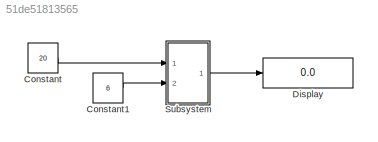
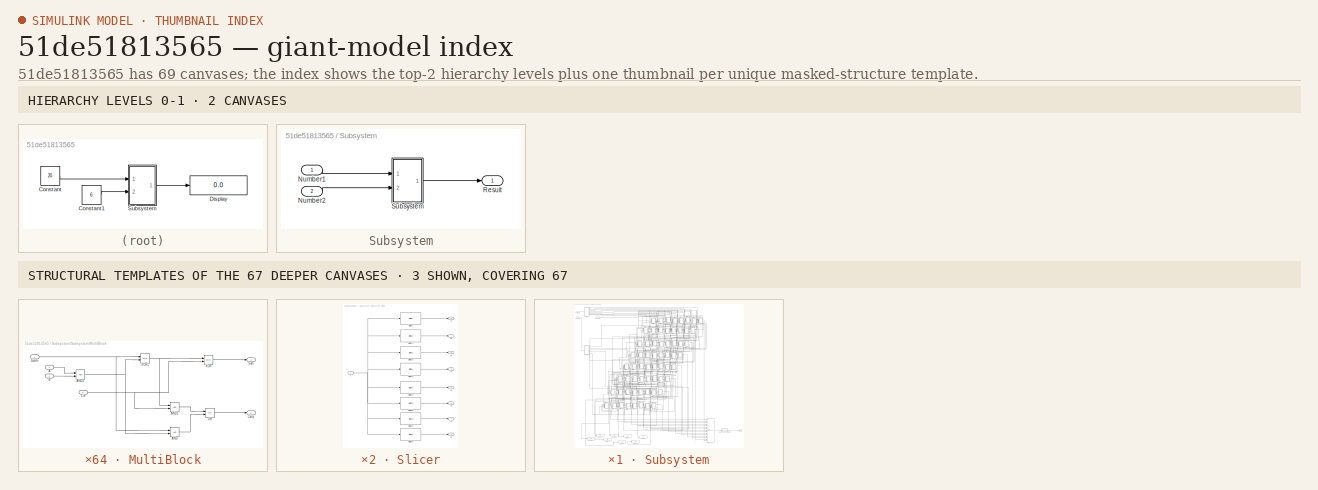
[diagram: thumbnail index - top-2 hierarchy levels (2 canvases) + 3 structural-template representatives of the remaining 67 canvases]
MODEL slx_51de51813565
KIND model
CONFIG AbsTol = auto
CONFIG FixedStep = auto
CONFIG MaxStep = auto
CONFIG MinStep = auto
CONFIG RelTol = 1e-3
CONFIG SampleTimeConstraint = Unconstrained
CONFIG Solver = VariableStepAuto
CONFIG SolverMode = Auto
CONFIG SolverName = VariableStepAuto
CONFIG StartTime = 0.0
CONFIG StopTime = 10.0
BLOCK [Constant] Constant
  OutDataTypeStr = int8
  Value = 20
BLOCK [Constant] Constant1
  OutDataTypeStr = int8
  Value = 6
BLOCK [Display] Display
  Decimation = 1
  Ports = [1]
BLOCK [SubSystem] Subsystem
  Ports = [2, 1]
  RequestExecContextInheritance = off
  Variant = off
BLOCK [Inport] Subsystem/Number1
  IconDisplay = Port number
  OutDataTypeStr = int8
BLOCK [Inport] Subsystem/Number2
  IconDisplay = Port number
  OutDataTypeStr = int8
  Port = 2
BLOCK [Outport] Subsystem/Result
  IconDisplay = Port number
  OutDataTypeStr = int16
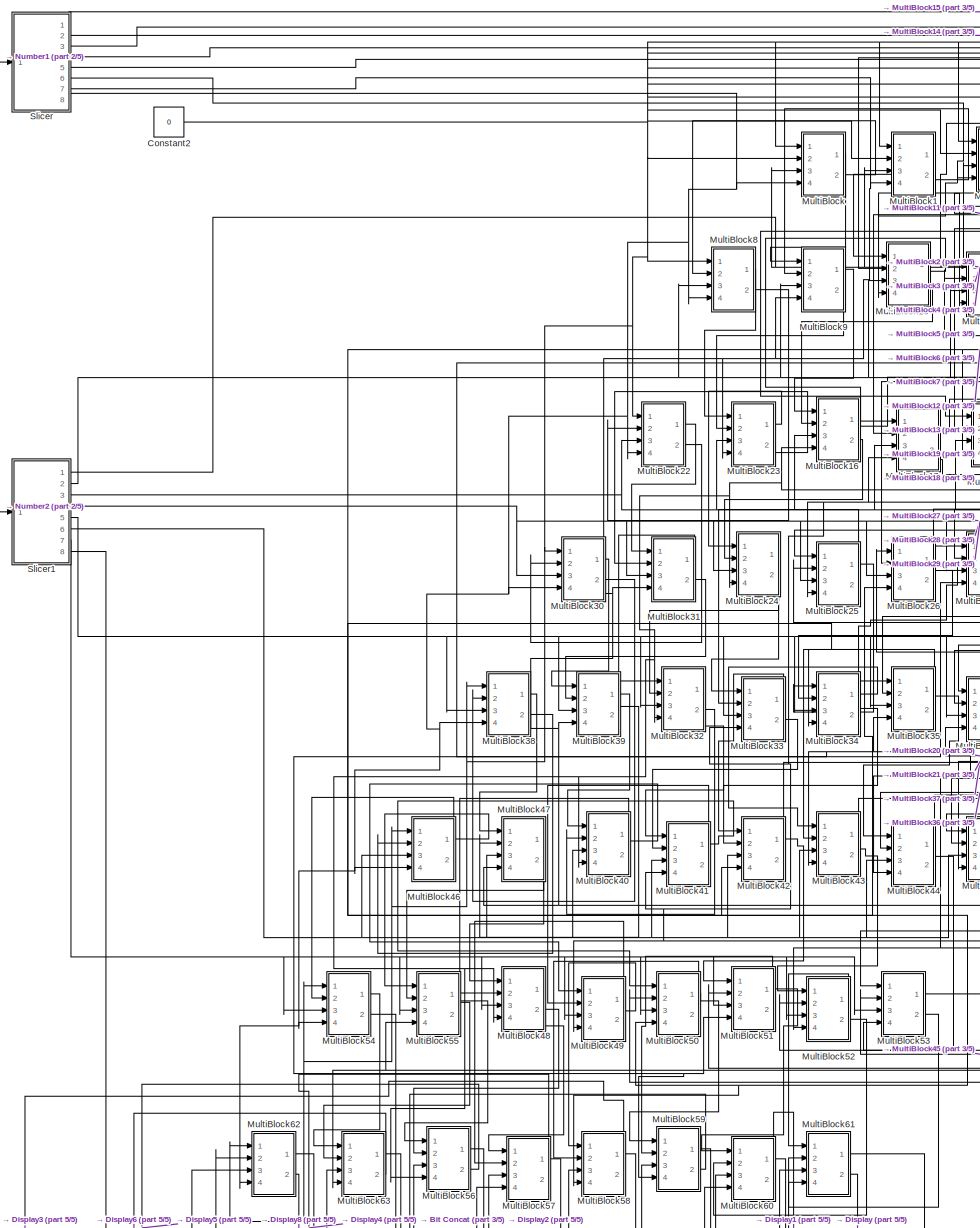
[diagram: Subsystem/Subsystem - part 1/5, left side, full height]
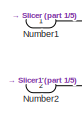
[diagram: Subsystem/Subsystem - part 2/5, top left region]
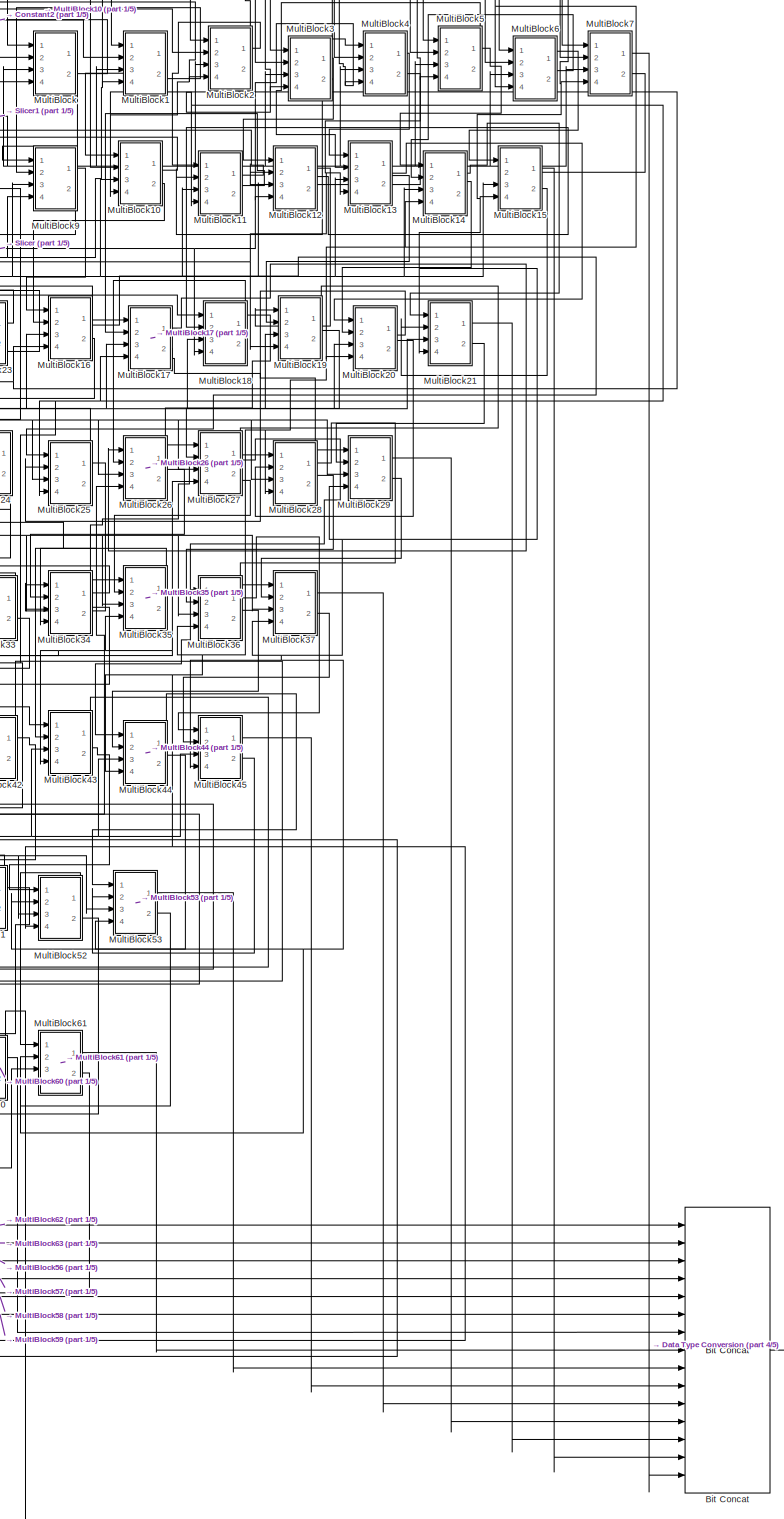
[diagram: Subsystem/Subsystem - part 3/5, center side, full height]
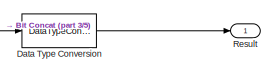
[diagram: Subsystem/Subsystem - part 4/5, bottom right region]
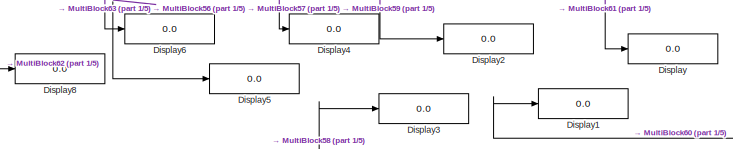
[diagram: Subsystem/Subsystem - part 5/5, bottom left region]
BLOCK [SubSystem] Subsystem/Subsystem
  Ports = [2, 1]
  RequestExecContextInheritance = off
  Variant = off
BLOCK [Reference] Subsystem/Subsystem/Bit Concat  REF=hdlsllib/HDL Operations/Bit Concat
  Ports = [15, 1]
  SourceBlock = hdlsllib/HDL Operations/Bit Concat
  SourceType = Bit Concat
BLOCK [Constant] Subsystem/Subsystem/Constant2
  OutDataTypeStr = boolean
  Value = 0
BLOCK [DataTypeConversion] Subsystem/Subsystem/Data Type Conversion
  ConvertRealWorld = Stored Integer (SI)
  OutDataTypeStr = int16
  RndMeth = Floor
  SaturateOnIntegerOverflow = off
BLOCK [Display] Subsystem/Subsystem/Display
  Decimation = 1
  Format = binary (Stored Integer)
  Ports = [1]
BLOCK [Display] Subsystem/Subsystem/Display1
  Decimation = 1
  Format = binary (Stored Integer)
  Ports = [1]
BLOCK [Display] Subsystem/Subsystem/Display2
  Decimation = 1
  Ports = [1]
BLOCK [Display] Subsystem/Subsystem/Display3
  Decimation = 1
  Ports = [1]
BLOCK [Display] Subsystem/Subsystem/Display4
  Decimation = 1
  Ports = [1]
BLOCK [Display] Subsystem/Subsystem/Display5
  Decimation = 1
  Ports = [1]
BLOCK [Display] Subsystem/Subsystem/Display6
  Decimation = 1
  Ports = [1]
BLOCK [Display] Subsystem/Subsystem/Display8
  Decimation = 1
  Ports = [1]
BLOCK [SubSystem] Subsystem/Subsystem/MultiBlock
  Ports = [4, 2]
  RequestExecContextInheritance = off
  Variant = off
BLOCK [Inport] Subsystem/Subsystem/MultiBlock/A
  IconDisplay = Port number
  Port = 4
BLOCK [Logic] Subsystem/Subsystem/MultiBlock/AND
  AllPortsSameDT = off
  IconShape = distinctive
  OutDataTypeStr = boolean
  Ports = [2, 1]
BLOCK [Logic] Subsystem/Subsystem/MultiBlock/AND1
  AllPortsSameDT = off
  IconShape = distinctive
  OutDataTypeStr = boolean
  Ports = [2, 1]
BLOCK [Logic] Subsystem/Subsystem/MultiBlock/AND2
  AllPortsSameDT = off
  IconShape = distinctive
  OutDataTypeStr = boolean
  Ports = [2, 1]
BLOCK [Inport] Subsystem/Subsystem/MultiBlock/B
  IconDisplay = Port number
  Port = 3
BLOCK [Outport] Subsystem/Subsystem/MultiBlock/Carry
  IconDisplay = Port number
  Port = 2
BLOCK [Inport] Subsystem/Subsystem/MultiBlock/Cin
  IconDisplay = Port number
  Port = 2
BLOCK [Logic] Subsystem/Subsystem/MultiBlock/OR 
  AllPortsSameDT = off
  IconShape = distinctive
  Operator = OR
  OutDataTypeStr = boolean
  Ports = [2, 1]
BLOCK [Outport] Subsystem/Subsystem/MultiBlock/Sum
  IconDisplay = Port number
BLOCK [Inport] Subsystem/Subsystem/MultiBlock/SumIn
  IconDisplay = Port number
BLOCK [Logic] Subsystem/Subsystem/MultiBlock/XOR
  AllPortsSameDT = off
  IconShape = distinctive
  Operator = XOR
  OutDataTypeStr = boolean
  Ports = [2, 1]
BLOCK [Logic] Subsystem/Subsystem/MultiBlock/XOR1
  AllPortsSameDT = off
  IconShape = distinctive
  Operator = XOR
  OutDataTypeStr = boolean
  Ports = [2, 1]
BLOCK [SubSystem] Subsystem/Subsystem/MultiBlock1
  Ports = [4, 2]
  RequestExecContextInheritance = off
  Variant = off
BLOCK [Inport] Subsystem/Subsystem/MultiBlock1/A
  IconDisplay = Port number
  Port = 4
BLOCK [Logic] Subsystem/Subsystem/MultiBlock1/AND
  AllPortsSameDT = off
  IconShape = distinctive
  OutDataTypeStr = boolean
  Ports = [2, 1]
BLOCK [Logic] Subsystem/Subsystem/MultiBlock1/AND1
  AllPortsSameDT = off
  IconShape = distinctive
  OutDataTypeStr = boolean
  Ports = [2, 1]
BLOCK [Logic] Subsystem/Subsystem/MultiBlock1/AND2
  AllPortsSameDT = off
  IconShape = distinctive
  OutDataTypeStr = boolean
  Ports = [2, 1]
BLOCK [Inport] Subsystem/Subsystem/MultiBlock1/B
  IconDisplay = Port number
  Port = 3
BLOCK [Outport] Subsystem/Subsystem/MultiBlock1/Carry
  IconDisplay = Port number
  Port = 2
BLOCK [Inport] Subsystem/Subsystem/MultiBlock1/Cin
  IconDisplay = Port number
  Port = 2
BLOCK [Logic] Subsystem/Subsystem/MultiBlock1/OR 
  AllPortsSameDT = off
  IconShape = distinctive
  Operator = OR
  OutDataTypeStr = boolean
  Ports = [2, 1]
BLOCK [Outport] Subsystem/Subsystem/MultiBlock1/Sum
  IconDisplay = Port number
BLOCK [Inport] Subsystem/Subsystem/MultiBlock1/SumIn
  IconDisplay = Port number
BLOCK [Logic] Subsystem/Subsystem/MultiBlock1/XOR
  AllPortsSameDT = off
  IconShape = distinctive
  Operator = XOR
  OutDataTypeStr = boolean
  Ports = [2, 1]
BLOCK [Logic] Subsystem/Subsystem/MultiBlock1/XOR1
  AllPortsSameDT = off
  IconShape = distinctive
  Operator = XOR
  OutDataTypeStr = boolean
  Ports = [2, 1]
BLOCK [SubSystem] Subsystem/Subsystem/MultiBlock10
  Ports = [4, 2]
  RequestExecContextInheritance = off
  Variant = off
BLOCK [Inport] Subsystem/Subsystem/MultiBlock10/A
  IconDisplay = Port number
  Port = 4
BLOCK [Logic] Subsystem/Subsystem/MultiBlock10/AND
  AllPortsSameDT = off
  IconShape = distinctive
  OutDataTypeStr = boolean
  Ports = [2, 1]
BLOCK [Logic] Subsystem/Subsystem/MultiBlock10/AND1
  AllPortsSameDT = off
  IconShape = distinctive
  OutDataTypeStr = boolean
  Ports = [2, 1]
BLOCK [Logic] Subsystem/Subsystem/MultiBlock10/AND2
  AllPortsSameDT = off
  IconShape = distinctive
  OutDataTypeStr = boolean
  Ports = [2, 1]
BLOCK [Inport] Subsystem/Subsystem/MultiBlock10/B
  IconDisplay = Port number
  Port = 3
BLOCK [Outport] Subsystem/Subsystem/MultiBlock10/Carry
  IconDisplay = Port number
  Port = 2
BLOCK [Inport] Subsystem/Subsystem/MultiBlock10/Cin
  IconDisplay = Port number
  Port = 2
BLOCK [Logic] Subsystem/Subsystem/MultiBlock10/OR 
  AllPortsSameDT = off
  IconShape = distinctive
  Operator = OR
  OutDataTypeStr = boolean
  Ports = [2, 1]
BLOCK [Outport] Subsystem/Subsystem/MultiBlock10/Sum
  IconDisplay = Port number
BLOCK [Inport] Subsystem/Subsystem/MultiBlock10/SumIn
  IconDisplay = Port number
BLOCK [Logic] Subsystem/Subsystem/MultiBlock10/XOR
  AllPortsSameDT = off
  IconShape = distinctive
  Operator = XOR
  OutDataTypeStr = boolean
  Ports = [2, 1]
BLOCK [Logic] Subsystem/Subsystem/MultiBlock10/XOR1
  AllPortsSameDT = off
  IconShape = distinctive
  Operator = XOR
  OutDataTypeStr = boolean
  Ports = [2, 1]
BLOCK [SubSystem] Subsystem/Subsystem/MultiBlock11
  Ports = [4, 2]
  RequestExecContextInheritance = off
  Variant = off
BLOCK [Inport] Subsystem/Subsystem/MultiBlock11/A
  IconDisplay = Port number
  Port = 4
BLOCK [Logic] Subsystem/Subsystem/MultiBlock11/AND
  AllPortsSameDT = off
  IconShape = distinctive
  OutDataTypeStr = boolean
  Ports = [2, 1]
BLOCK [Logic] Subsystem/Subsystem/MultiBlock11/AND1
  AllPortsSameDT = off
  IconShape = distinctive
  OutDataTypeStr = boolean
  Ports = [2, 1]
BLOCK [Logic] Subsystem/Subsystem/MultiBlock11/AND2
  AllPortsSameDT = off
  IconShape = distinctive
  OutDataTypeStr = boolean
  Ports = [2, 1]
BLOCK [Inport] Subsystem/Subsystem/MultiBlock11/B
  IconDisplay = Port number
  Port = 3
BLOCK [Outport] Subsystem/Subsystem/MultiBlock11/Carry
  IconDisplay = Port number
  Port = 2
BLOCK [Inport] Subsystem/Subsystem/MultiBlock11/Cin
  IconDisplay = Port number
  Port = 2
BLOCK [Logic] Subsystem/Subsystem/MultiBlock11/OR 
  AllPortsSameDT = off
  IconShape = distinctive
  Operator = OR
  OutDataTypeStr = boolean
  Ports = [2, 1]
BLOCK [Outport] Subsystem/Subsystem/MultiBlock11/Sum
  IconDisplay = Port number
BLOCK [Inport] Subsystem/Subsystem/MultiBlock11/SumIn
  IconDisplay = Port number
BLOCK [Logic] Subsystem/Subsystem/MultiBlock11/XOR
  AllPortsSameDT = off
  IconShape = distinctive
  Operator = XOR
  OutDataTypeStr = boolean
  Ports = [2, 1]
BLOCK [Logic] Subsystem/Subsystem/MultiBlock11/XOR1
  AllPortsSameDT = off
  IconShape = distinctive
  Operator = XOR
  OutDataTypeStr = boolean
  Ports = [2, 1]
BLOCK [SubSystem] Subsystem/Subsystem/MultiBlock12
  Ports = [4, 2]
  RequestExecContextInheritance = off
  Variant = off
BLOCK [Inport] Subsystem/Subsystem/MultiBlock12/A
  IconDisplay = Port number
  Port = 4
BLOCK [Logic] Subsystem/Subsystem/MultiBlock12/AND
  AllPortsSameDT = off
  IconShape = distinctive
  OutDataTypeStr = boolean
  Ports = [2, 1]
BLOCK [Logic] Subsystem/Subsystem/MultiBlock12/AND1
  AllPortsSameDT = off
  IconShape = distinctive
  OutDataTypeStr = boolean
  Ports = [2, 1]
BLOCK [Logic] Subsystem/Subsystem/MultiBlock12/AND2
  AllPortsSameDT = off
  IconShape = distinctive
  OutDataTypeStr = boolean
  Ports = [2, 1]
BLOCK [Inport] Subsystem/Subsystem/MultiBlock12/B
  IconDisplay = Port number
  Port = 3
BLOCK [Outport] Subsystem/Subsystem/MultiBlock12/Carry
  IconDisplay = Port number
  Port = 2
BLOCK [Inport] Subsystem/Subsystem/MultiBlock12/Cin
  IconDisplay = Port number
  Port = 2
BLOCK [Logic] Subsystem/Subsystem/MultiBlock12/OR 
  AllPortsSameDT = off
  IconShape = distinctive
  Operator = OR
  OutDataTypeStr = boolean
  Ports = [2, 1]
BLOCK [Outport] Subsystem/Subsystem/MultiBlock12/Sum
  IconDisplay = Port number
BLOCK [Inport] Subsystem/Subsystem/MultiBlock12/SumIn
  IconDisplay = Port number
BLOCK [Logic] Subsystem/Subsystem/MultiBlock12/XOR
  AllPortsSameDT = off
  IconShape = distinctive
  Operator = XOR
  OutDataTypeStr = boolean
  Ports = [2, 1]
BLOCK [Logic] Subsystem/Subsystem/MultiBlock12/XOR1
  AllPortsSameDT = off
  IconShape = distinctive
  Operator = XOR
  OutDataTypeStr = boolean
  Ports = [2, 1]
BLOCK [SubSystem] Subsystem/Subsystem/MultiBlock13
  Ports = [4, 2]
  RequestExecContextInheritance = off
  Variant = off
BLOCK [Inport] Subsystem/Subsystem/MultiBlock13/A
  IconDisplay = Port number
  Port = 4
BLOCK [Logic] Subsystem/Subsystem/MultiBlock13/AND
  AllPortsSameDT = off
  IconShape = distinctive
  OutDataTypeStr = boolean
  Ports = [2, 1]
BLOCK [Logic] Subsystem/Subsystem/MultiBlock13/AND1
  AllPortsSameDT = off
  IconShape = distinctive
  OutDataTypeStr = boolean
  Ports = [2, 1]
BLOCK [Logic] Subsystem/Subsystem/MultiBlock13/AND2
  AllPortsSameDT = off
  IconShape = distinctive
  OutDataTypeStr = boolean
  Ports = [2, 1]
BLOCK [Inport] Subsystem/Subsystem/MultiBlock13/B
  IconDisplay = Port number
  Port = 3
BLOCK [Outport] Subsystem/Subsystem/MultiBlock13/Carry
  IconDisplay = Port number
  Port = 2
BLOCK [Inport] Subsystem/Subsystem/MultiBlock13/Cin
  IconDisplay = Port number
  Port = 2
BLOCK [Logic] Subsystem/Subsystem/MultiBlock13/OR 
  AllPortsSameDT = off
  IconShape = distinctive
  Operator = OR
  OutDataTypeStr = boolean
  Ports = [2, 1]
BLOCK [Outport] Subsystem/Subsystem/MultiBlock13/Sum
  IconDisplay = Port number
BLOCK [Inport] Subsystem/Subsystem/MultiBlock13/SumIn
  IconDisplay = Port number
BLOCK [Logic] Subsystem/Subsystem/MultiBlock13/XOR
  AllPortsSameDT = off
  IconShape = distinctive
  Operator = XOR
  OutDataTypeStr = boolean
  Ports = [2, 1]
BLOCK [Logic] Subsystem/Subsystem/MultiBlock13/XOR1
  AllPortsSameDT = off
  IconShape = distinctive
  Operator = XOR
  OutDataTypeStr = boolean
  Ports = [2, 1]
BLOCK [SubSystem] Subsystem/Subsystem/MultiBlock14
  Ports = [4, 2]
  RequestExecContextInheritance = off
  Variant = off
BLOCK [Inport] Subsystem/Subsystem/MultiBlock14/A
  IconDisplay = Port number
  Port = 4
BLOCK [Logic] Subsystem/Subsystem/MultiBlock14/AND
  AllPortsSameDT = off
  IconShape = distinctive
  OutDataTypeStr = boolean
  Ports = [2, 1]
BLOCK [Logic] Subsystem/Subsystem/MultiBlock14/AND1
  AllPortsSameDT = off
  IconShape = distinctive
  OutDataTypeStr = boolean
  Ports = [2, 1]
BLOCK [Logic] Subsystem/Subsystem/MultiBlock14/AND2
  AllPortsSameDT = off
  IconShape = distinctive
  OutDataTypeStr = boolean
  Ports = [2, 1]
BLOCK [Inport] Subsystem/Subsystem/MultiBlock14/B
  IconDisplay = Port number
  Port = 3
BLOCK [Outport] Subsystem/Subsystem/MultiBlock14/Carry
  IconDisplay = Port number
  Port = 2
BLOCK [Inport] Subsystem/Subsystem/MultiBlock14/Cin
  IconDisplay = Port number
  Port = 2
BLOCK [Logic] Subsystem/Subsystem/MultiBlock14/OR 
  AllPortsSameDT = off
  IconShape = distinctive
  Operator = OR
  OutDataTypeStr = boolean
  Ports = [2, 1]
BLOCK [Outport] Subsystem/Subsystem/MultiBlock14/Sum
  IconDisplay = Port number
BLOCK [Inport] Subsystem/Subsystem/MultiBlock14/SumIn
  IconDisplay = Port number
BLOCK [Logic] Subsystem/Subsystem/MultiBlock14/XOR
  AllPortsSameDT = off
  IconShape = distinctive
  Operator = XOR
  OutDataTypeStr = boolean
  Ports = [2, 1]
BLOCK [Logic] Subsystem/Subsystem/MultiBlock14/XOR1
  AllPortsSameDT = off
  IconShape = distinctive
  Operator = XOR
  OutDataTypeStr = boolean
  Ports = [2, 1]
BLOCK [SubSystem] Subsystem/Subsystem/MultiBlock15
  Ports = [4, 2]
  RequestExecContextInheritance = off
  Variant = off
BLOCK [Inport] Subsystem/Subsystem/MultiBlock15/A
  IconDisplay = Port number
  Port = 4
BLOCK [Logic] Subsystem/Subsystem/MultiBlock15/AND
  AllPortsSameDT = off
  IconShape = distinctive
  OutDataTypeStr = boolean
  Ports = [2, 1]
BLOCK [Logic] Subsystem/Subsystem/MultiBlock15/AND1
  AllPortsSameDT = off
  IconShape = distinctive
  OutDataTypeStr = boolean
  Ports = [2, 1]
BLOCK [Logic] Subsystem/Subsystem/MultiBlock15/AND2
  AllPortsSameDT = off
  IconShape = distinctive
  OutDataTypeStr = boolean
  Ports = [2, 1]
BLOCK [Inport] Subsystem/Subsystem/MultiBlock15/B
  IconDisplay = Port number
  Port = 3
BLOCK [Outport] Subsystem/Subsystem/MultiBlock15/Carry
  IconDisplay = Port number
  Port = 2
BLOCK [Inport] Subsystem/Subsystem/MultiBlock15/Cin
  IconDisplay = Port number
  Port = 2
BLOCK [Logic] Subsystem/Subsystem/MultiBlock15/OR 
  AllPortsSameDT = off
  IconShape = distinctive
  Operator = OR
  OutDataTypeStr = boolean
  Ports = [2, 1]
BLOCK [Outport] Subsystem/Subsystem/MultiBlock15/Sum
  IconDisplay = Port number
BLOCK [Inport] Subsystem/Subsystem/MultiBlock15/SumIn
  IconDisplay = Port number
BLOCK [Logic] Subsystem/Subsystem/MultiBlock15/XOR
  AllPortsSameDT = off
  IconShape = distinctive
  Operator = XOR
  OutDataTypeStr = boolean
  Ports = [2, 1]
BLOCK [Logic] Subsystem/Subsystem/MultiBlock15/XOR1
  AllPortsSameDT = off
  IconShape = distinctive
  Operator = XOR
  OutDataTypeStr = boolean
  Ports = [2, 1]
BLOCK [SubSystem] Subsystem/Subsystem/MultiBlock16
  Ports = [4, 2]
  RequestExecContextInheritance = off
  Variant = off
BLOCK [Inport] Subsystem/Subsystem/MultiBlock16/A
  IconDisplay = Port number
  Port = 4
BLOCK [Logic] Subsystem/Subsystem/MultiBlock16/AND
  AllPortsSameDT = off
  IconShape = distinctive
  OutDataTypeStr = boolean
  Ports = [2, 1]
BLOCK [Logic] Subsystem/Subsystem/MultiBlock16/AND1
  AllPortsSameDT = off
  IconShape = distinctive
  OutDataTypeStr = boolean
  Ports = [2, 1]
BLOCK [Logic] Subsystem/Subsystem/MultiBlock16/AND2
  AllPortsSameDT = off
  IconShape = distinctive
  OutDataTypeStr = boolean
  Ports = [2, 1]
BLOCK [Inport] Subsystem/Subsystem/MultiBlock16/B
  IconDisplay = Port number
  Port = 3
BLOCK [Outport] Subsystem/Subsystem/MultiBlock16/Carry
  IconDisplay = Port number
  Port = 2
BLOCK [Inport] Subsystem/Subsystem/MultiBlock16/Cin
  IconDisplay = Port number
  Port = 2
BLOCK [Logic] Subsystem/Subsystem/MultiBlock16/OR 
  AllPortsSameDT = off
  IconShape = distinctive
  Operator = OR
  OutDataTypeStr = boolean
  Ports = [2, 1]
BLOCK [Outport] Subsystem/Subsystem/MultiBlock16/Sum
  IconDisplay = Port number
BLOCK [Inport] Subsystem/Subsystem/MultiBlock16/SumIn
  IconDisplay = Port number
BLOCK [Logic] Subsystem/Subsystem/MultiBlock16/XOR
  AllPortsSameDT = off
  IconShape = distinctive
  Operator = XOR
  OutDataTypeStr = boolean
  Ports = [2, 1]
BLOCK [Logic] Subsystem/Subsystem/MultiBlock16/XOR1
  AllPortsSameDT = off
  IconShape = distinctive
  Operator = XOR
  OutDataTypeStr = boolean
  Ports = [2, 1]
BLOCK [SubSystem] Subsystem/Subsystem/MultiBlock17
  Ports = [4, 2]
  RequestExecContextInheritance = off
  Variant = off
BLOCK [Inport] Subsystem/Subsystem/MultiBlock17/A
  IconDisplay = Port number
  Port = 4
BLOCK [Logic] Subsystem/Subsystem/MultiBlock17/AND
  AllPortsSameDT = off
  IconShape = distinctive
  OutDataTypeStr = boolean
  Ports = [2, 1]
BLOCK [Logic] Subsystem/Subsystem/MultiBlock17/AND1
  AllPortsSameDT = off
  IconShape = distinctive
  OutDataTypeStr = boolean
  Ports = [2, 1]
BLOCK [Logic] Subsystem/Subsystem/MultiBlock17/AND2
  AllPortsSameDT = off
  IconShape = distinctive
  OutDataTypeStr = boolean
  Ports = [2, 1]
BLOCK [Inport] Subsystem/Subsystem/MultiBlock17/B
  IconDisplay = Port number
  Port = 3
BLOCK [Outport] Subsystem/Subsystem/MultiBlock17/Carry
  IconDisplay = Port number
  Port = 2
BLOCK [Inport] Subsystem/Subsystem/MultiBlock17/Cin
  IconDisplay = Port number
  Port = 2
BLOCK [Logic] Subsystem/Subsystem/MultiBlock17/OR 
  AllPortsSameDT = off
  IconShape = distinctive
  Operator = OR
  OutDataTypeStr = boolean
  Ports = [2, 1]
BLOCK [Outport] Subsystem/Subsystem/MultiBlock17/Sum
  IconDisplay = Port number
BLOCK [Inport] Subsystem/Subsystem/MultiBlock17/SumIn
  IconDisplay = Port number
BLOCK [Logic] Subsystem/Subsystem/MultiBlock17/XOR
  AllPortsSameDT = off
  IconShape = distinctive
  Operator = XOR
  OutDataTypeStr = boolean
  Ports = [2, 1]
BLOCK [Logic] Subsystem/Subsystem/MultiBlock17/XOR1
  AllPortsSameDT = off
  IconShape = distinctive
  Operator = XOR
  OutDataTypeStr = boolean
  Ports = [2, 1]
BLOCK [SubSystem] Subsystem/Subsystem/MultiBlock18
  Ports = [4, 2]
  RequestExecContextInheritance = off
  Variant = off
BLOCK [Inport] Subsystem/Subsystem/MultiBlock18/A
  IconDisplay = Port number
  Port = 4
BLOCK [Logic] Subsystem/Subsystem/MultiBlock18/AND
  AllPortsSameDT = off
  IconShape = distinctive
  OutDataTypeStr = boolean
  Ports = [2, 1]
BLOCK [Logic] Subsystem/Subsystem/MultiBlock18/AND1
  AllPortsSameDT = off
  IconShape = distinctive
  OutDataTypeStr = boolean
  Ports = [2, 1]
BLOCK [Logic] Subsystem/Subsystem/MultiBlock18/AND2
  AllPortsSameDT = off
  IconShape = distinctive
  OutDataTypeStr = boolean
  Ports = [2, 1]
BLOCK [Inport] Subsystem/Subsystem/MultiBlock18/B
  IconDisplay = Port number
  Port = 3
BLOCK [Outport] Subsystem/Subsystem/MultiBlock18/Carry
  IconDisplay = Port number
  Port = 2
BLOCK [Inport] Subsystem/Subsystem/MultiBlock18/Cin
  IconDisplay = Port number
  Port = 2
BLOCK [Logic] Subsystem/Subsystem/MultiBlock18/OR 
  AllPortsSameDT = off
  IconShape = distinctive
  Operator = OR
  OutDataTypeStr = boolean
  Ports = [2, 1]
BLOCK [Outport] Subsystem/Subsystem/MultiBlock18/Sum
  IconDisplay = Port number
BLOCK [Inport] Subsystem/Subsystem/MultiBlock18/SumIn
  IconDisplay = Port number
BLOCK [Logic] Subsystem/Subsystem/MultiBlock18/XOR
  AllPortsSameDT = off
  IconShape = distinctive
  Operator = XOR
  OutDataTypeStr = boolean
  Ports = [2, 1]
BLOCK [Logic] Subsystem/Subsystem/MultiBlock18/XOR1
  AllPortsSameDT = off
  IconShape = distinctive
  Operator = XOR
  OutDataTypeStr = boolean
  Ports = [2, 1]
BLOCK [SubSystem] Subsystem/Subsystem/MultiBlock19
  Ports = [4, 2]
  RequestExecContextInheritance = off
  Variant = off
BLOCK [Inport] Subsystem/Subsystem/MultiBlock19/A
  IconDisplay = Port number
  Port = 4
BLOCK [Logic] Subsystem/Subsystem/MultiBlock19/AND
  AllPortsSameDT = off
  IconShape = distinctive
  OutDataTypeStr = boolean
  Ports = [2, 1]
BLOCK [Logic] Subsystem/Subsystem/MultiBlock19/AND1
  AllPortsSameDT = off
  IconShape = distinctive
  OutDataTypeStr = boolean
  Ports = [2, 1]
BLOCK [Logic] Subsystem/Subsystem/MultiBlock19/AND2
  AllPortsSameDT = off
  IconShape = distinctive
  OutDataTypeStr = boolean
  Ports = [2, 1]
BLOCK [Inport] Subsystem/Subsystem/MultiBlock19/B
  IconDisplay = Port number
  Port = 3
BLOCK [Outport] Subsystem/Subsystem/MultiBlock19/Carry
  IconDisplay = Port number
  Port = 2
BLOCK [Inport] Subsystem/Subsystem/MultiBlock19/Cin
  IconDisplay = Port number
  Port = 2
BLOCK [Logic] Subsystem/Subsystem/MultiBlock19/OR 
  AllPortsSameDT = off
  IconShape = distinctive
  Operator = OR
  OutDataTypeStr = boolean
  Ports = [2, 1]
BLOCK [Outport] Subsystem/Subsystem/MultiBlock19/Sum
  IconDisplay = Port number
BLOCK [Inport] Subsystem/Subsystem/MultiBlock19/SumIn
  IconDisplay = Port number
BLOCK [Logic] Subsystem/Subsystem/MultiBlock19/XOR
  AllPortsSameDT = off
  IconShape = distinctive
  Operator = XOR
  OutDataTypeStr = boolean
  Ports = [2, 1]
BLOCK [Logic] Subsystem/Subsystem/MultiBlock19/XOR1
  AllPortsSameDT = off
  IconShape = distinctive
  Operator = XOR
  OutDataTypeStr = boolean
  Ports = [2, 1]
BLOCK [SubSystem] Subsystem/Subsystem/MultiBlock2
  Ports = [4, 2]
  RequestExecContextInheritance = off
  Variant = off
BLOCK [Inport] Subsystem/Subsystem/MultiBlock2/A
  IconDisplay = Port number
  Port = 4
BLOCK [Logic] Subsystem/Subsystem/MultiBlock2/AND
  AllPortsSameDT = off
  IconShape = distinctive
  OutDataTypeStr = boolean
  Ports = [2, 1]
BLOCK [Logic] Subsystem/Subsystem/MultiBlock2/AND1
  AllPortsSameDT = off
  IconShape = distinctive
  OutDataTypeStr = boolean
  Ports = [2, 1]
BLOCK [Logic] Subsystem/Subsystem/MultiBlock2/AND2
  AllPortsSameDT = off
  IconShape = distinctive
  OutDataTypeStr = boolean
  Ports = [2, 1]
BLOCK [Inport] Subsystem/Subsystem/MultiBlock2/B
  IconDisplay = Port number
  Port = 3
BLOCK [Outport] Subsystem/Subsystem/MultiBlock2/Carry
  IconDisplay = Port number
  Port = 2
BLOCK [Inport] Subsystem/Subsystem/MultiBlock2/Cin
  IconDisplay = Port number
  Port = 2
BLOCK [Logic] Subsystem/Subsystem/MultiBlock2/OR 
  AllPortsSameDT = off
  IconShape = distinctive
  Operator = OR
  OutDataTypeStr = boolean
  Ports = [2, 1]
BLOCK [Outport] Subsystem/Subsystem/MultiBlock2/Sum
  IconDisplay = Port number
BLOCK [Inport] Subsystem/Subsystem/MultiBlock2/SumIn
  IconDisplay = Port number
BLOCK [Logic] Subsystem/Subsystem/MultiBlock2/XOR
  AllPortsSameDT = off
  IconShape = distinctive
  Operator = XOR
  OutDataTypeStr = boolean
  Ports = [2, 1]
BLOCK [Logic] Subsystem/Subsystem/MultiBlock2/XOR1
  AllPortsSameDT = off
  IconShape = distinctive
  Operator = XOR
  OutDataTypeStr = boolean
  Ports = [2, 1]
BLOCK [SubSystem] Subsystem/Subsystem/MultiBlock20
  Ports = [4, 2]
  RequestExecContextInheritance = off
  Variant = off
BLOCK [Inport] Subsystem/Subsystem/MultiBlock20/A
  IconDisplay = Port number
  Port = 4
BLOCK [Logic] Subsystem/Subsystem/MultiBlock20/AND
  AllPortsSameDT = off
  IconShape = distinctive
  OutDataTypeStr = boolean
  Ports = [2, 1]
BLOCK [Logic] Subsystem/Subsystem/MultiBlock20/AND1
  AllPortsSameDT = off
  IconShape = distinctive
  OutDataTypeStr = boolean
  Ports = [2, 1]
BLOCK [Logic] Subsystem/Subsystem/MultiBlock20/AND2
  AllPortsSameDT = off
  IconShape = distinctive
  OutDataTypeStr = boolean
  Ports = [2, 1]
BLOCK [Inport] Subsystem/Subsystem/MultiBlock20/B
  IconDisplay = Port number
  Port = 3
BLOCK [Outport] Subsystem/Subsystem/MultiBlock20/Carry
  IconDisplay = Port number
  Port = 2
BLOCK [Inport] Subsystem/Subsystem/MultiBlock20/Cin
  IconDisplay = Port number
  Port = 2
BLOCK [Logic] Subsystem/Subsystem/MultiBlock20/OR 
  AllPortsSameDT = off
  IconShape = distinctive
  Operator = OR
  OutDataTypeStr = boolean
  Ports = [2, 1]
BLOCK [Outport] Subsystem/Subsystem/MultiBlock20/Sum
  IconDisplay = Port number
BLOCK [Inport] Subsystem/Subsystem/MultiBlock20/SumIn
  IconDisplay = Port number
BLOCK [Logic] Subsystem/Subsystem/MultiBlock20/XOR
  AllPortsSameDT = off
  IconShape = distinctive
  Operator = XOR
  OutDataTypeStr = boolean
  Ports = [2, 1]
BLOCK [Logic] Subsystem/Subsystem/MultiBlock20/XOR1
  AllPortsSameDT = off
  IconShape = distinctive
  Operator = XOR
  OutDataTypeStr = boolean
  Ports = [2, 1]
BLOCK [SubSystem] Subsystem/Subsystem/MultiBlock21
  Ports = [4, 2]
  RequestExecContextInheritance = off
  Variant = off
BLOCK [Inport] Subsystem/Subsystem/MultiBlock21/A
  IconDisplay = Port number
  Port = 4
BLOCK [Logic] Subsystem/Subsystem/MultiBlock21/AND
  AllPortsSameDT = off
  IconShape = distinctive
  OutDataTypeStr = boolean
  Ports = [2, 1]
BLOCK [Logic] Subsystem/Subsystem/MultiBlock21/AND1
  AllPortsSameDT = off
  IconShape = distinctive
  OutDataTypeStr = boolean
  Ports = [2, 1]
BLOCK [Logic] Subsystem/Subsystem/MultiBlock21/AND2
  AllPortsSameDT = off
  IconShape = distinctive
  OutDataTypeStr = boolean
  Ports = [2, 1]
BLOCK [Inport] Subsystem/Subsystem/MultiBlock21/B
  IconDisplay = Port number
  Port = 3
BLOCK [Outport] Subsystem/Subsystem/MultiBlock21/Carry
  IconDisplay = Port number
  Port = 2
BLOCK [Inport] Subsystem/Subsystem/MultiBlock21/Cin
  IconDisplay = Port number
  Port = 2
BLOCK [Logic] Subsystem/Subsystem/MultiBlock21/OR 
  AllPortsSameDT = off
  IconShape = distinctive
  Operator = OR
  OutDataTypeStr = boolean
  Ports = [2, 1]
BLOCK [Outport] Subsystem/Subsystem/MultiBlock21/Sum
  IconDisplay = Port number
BLOCK [Inport] Subsystem/Subsystem/MultiBlock21/SumIn
  IconDisplay = Port number
BLOCK [Logic] Subsystem/Subsystem/MultiBlock21/XOR
  AllPortsSameDT = off
  IconShape = distinctive
  Operator = XOR
  OutDataTypeStr = boolean
  Ports = [2, 1]
BLOCK [Logic] Subsystem/Subsystem/MultiBlock21/XOR1
  AllPortsSameDT = off
  IconShape = distinctive
  Operator = XOR
  OutDataTypeStr = boolean
  Ports = [2, 1]
BLOCK [SubSystem] Subsystem/Subsystem/MultiBlock22
  Ports = [4, 2]
  RequestExecContextInheritance = off
  Variant = off
BLOCK [Inport] Subsystem/Subsystem/MultiBlock22/A
  IconDisplay = Port number
  Port = 4
BLOCK [Logic] Subsystem/Subsystem/MultiBlock22/AND
  AllPortsSameDT = off
  IconShape = distinctive
  OutDataTypeStr = boolean
  Ports = [2, 1]
BLOCK [Logic] Subsystem/Subsystem/MultiBlock22/AND1
  AllPortsSameDT = off
  IconShape = distinctive
  OutDataTypeStr = boolean
  Ports = [2, 1]
BLOCK [Logic] Subsystem/Subsystem/MultiBlock22/AND2
  AllPortsSameDT = off
  IconShape = distinctive
  OutDataTypeStr = boolean
  Ports = [2, 1]
BLOCK [Inport] Subsystem/Subsystem/MultiBlock22/B
  IconDisplay = Port number
  Port = 3
BLOCK [Outport] Subsystem/Subsystem/MultiBlock22/Carry
  IconDisplay = Port number
  Port = 2
BLOCK [Inport] Subsystem/Subsystem/MultiBlock22/Cin
  IconDisplay = Port number
  Port = 2
BLOCK [Logic] Subsystem/Subsystem/MultiBlock22/OR 
  AllPortsSameDT = off
  IconShape = distinctive
  Operator = OR
  OutDataTypeStr = boolean
  Ports = [2, 1]
BLOCK [Outport] Subsystem/Subsystem/MultiBlock22/Sum
  IconDisplay = Port number
BLOCK [Inport] Subsystem/Subsystem/MultiBlock22/SumIn
  IconDisplay = Port number
BLOCK [Logic] Subsystem/Subsystem/MultiBlock22/XOR
  AllPortsSameDT = off
  IconShape = distinctive
  Operator = XOR
  OutDataTypeStr = boolean
  Ports = [2, 1]
BLOCK [Logic] Subsystem/Subsystem/MultiBlock22/XOR1
  AllPortsSameDT = off
  IconShape = distinctive
  Operator = XOR
  OutDataTypeStr = boolean
  Ports = [2, 1]
BLOCK [SubSystem] Subsystem/Subsystem/MultiBlock23
  Ports = [4, 2]
  RequestExecContextInheritance = off
  Variant = off
BLOCK [Inport] Subsystem/Subsystem/MultiBlock23/A
  IconDisplay = Port number
  Port = 4
BLOCK [Logic] Subsystem/Subsystem/MultiBlock23/AND
  AllPortsSameDT = off
  IconShape = distinctive
  OutDataTypeStr = boolean
  Ports = [2, 1]
BLOCK [Logic] Subsystem/Subsystem/MultiBlock23/AND1
  AllPortsSameDT = off
  IconShape = distinctive
  OutDataTypeStr = boolean
  Ports = [2, 1]
BLOCK [Logic] Subsystem/Subsystem/MultiBlock23/AND2
  AllPortsSameDT = off
  IconShape = distinctive
  OutDataTypeStr = boolean
  Ports = [2, 1]
BLOCK [Inport] Subsystem/Subsystem/MultiBlock23/B
  IconDisplay = Port number
  Port = 3
BLOCK [Outport] Subsystem/Subsystem/MultiBlock23/Carry
  IconDisplay = Port number
  Port = 2
BLOCK [Inport] Subsystem/Subsystem/MultiBlock23/Cin
  IconDisplay = Port number
  Port = 2
BLOCK [Logic] Subsystem/Subsystem/MultiBlock23/OR 
  AllPortsSameDT = off
  IconShape = distinctive
  Operator = OR
  OutDataTypeStr = boolean
  Ports = [2, 1]
BLOCK [Outport] Subsystem/Subsystem/MultiBlock23/Sum
  IconDisplay = Port number
BLOCK [Inport] Subsystem/Subsystem/MultiBlock23/SumIn
  IconDisplay = Port number
BLOCK [Logic] Subsystem/Subsystem/MultiBlock23/XOR
  AllPortsSameDT = off
  IconShape = distinctive
  Operator = XOR
  OutDataTypeStr = boolean
  Ports = [2, 1]
BLOCK [Logic] Subsystem/Subsystem/MultiBlock23/XOR1
  AllPortsSameDT = off
  IconShape = distinctive
  Operator = XOR
  OutDataTypeStr = boolean
  Ports = [2, 1]
BLOCK [SubSystem] Subsystem/Subsystem/MultiBlock24
  Ports = [4, 2]
  RequestExecContextInheritance = off
  Variant = off
BLOCK [Inport] Subsystem/Subsystem/MultiBlock24/A
  IconDisplay = Port number
  Port = 4
BLOCK [Logic] Subsystem/Subsystem/MultiBlock24/AND
  AllPortsSameDT = off
  IconShape = distinctive
  OutDataTypeStr = boolean
  Ports = [2, 1]
BLOCK [Logic] Subsystem/Subsystem/MultiBlock24/AND1
  AllPortsSameDT = off
  IconShape = distinctive
  OutDataTypeStr = boolean
  Ports = [2, 1]
BLOCK [Logic] Subsystem/Subsystem/MultiBlock24/AND2
  AllPortsSameDT = off
  IconShape = distinctive
  OutDataTypeStr = boolean
  Ports = [2, 1]
BLOCK [Inport] Subsystem/Subsystem/MultiBlock24/B
  IconDisplay = Port number
  Port = 3
BLOCK [Outport] Subsystem/Subsystem/MultiBlock24/Carry
  IconDisplay = Port number
  Port = 2
BLOCK [Inport] Subsystem/Subsystem/MultiBlock24/Cin
  IconDisplay = Port number
  Port = 2
BLOCK [Logic] Subsystem/Subsystem/MultiBlock24/OR 
  AllPortsSameDT = off
  IconShape = distinctive
  Operator = OR
  OutDataTypeStr = boolean
  Ports = [2, 1]
BLOCK [Outport] Subsystem/Subsystem/MultiBlock24/Sum
  IconDisplay = Port number
BLOCK [Inport] Subsystem/Subsystem/MultiBlock24/SumIn
  IconDisplay = Port number
BLOCK [Logic] Subsystem/Subsystem/MultiBlock24/XOR
  AllPortsSameDT = off
  IconShape = distinctive
  Operator = XOR
  OutDataTypeStr = boolean
  Ports = [2, 1]
BLOCK [Logic] Subsystem/Subsystem/MultiBlock24/XOR1
  AllPortsSameDT = off
  IconShape = distinctive
  Operator = XOR
  OutDataTypeStr = boolean
  Ports = [2, 1]
BLOCK [SubSystem] Subsystem/Subsystem/MultiBlock25
  Ports = [4, 2]
  RequestExecContextInheritance = off
  Variant = off
BLOCK [Inport] Subsystem/Subsystem/MultiBlock25/A
  IconDisplay = Port number
  Port = 4
BLOCK [Logic] Subsystem/Subsystem/MultiBlock25/AND
  AllPortsSameDT = off
  IconShape = distinctive
  OutDataTypeStr = boolean
  Ports = [2, 1]
BLOCK [Logic] Subsystem/Subsystem/MultiBlock25/AND1
  AllPortsSameDT = off
  IconShape = distinctive
  OutDataTypeStr = boolean
  Ports = [2, 1]
BLOCK [Logic] Subsystem/Subsystem/MultiBlock25/AND2
  AllPortsSameDT = off
  IconShape = distinctive
  OutDataTypeStr = boolean
  Ports = [2, 1]
BLOCK [Inport] Subsystem/Subsystem/MultiBlock25/B
  IconDisplay = Port number
  Port = 3
BLOCK [Outport] Subsystem/Subsystem/MultiBlock25/Carry
  IconDisplay = Port number
  Port = 2
BLOCK [Inport] Subsystem/Subsystem/MultiBlock25/Cin
  IconDisplay = Port number
  Port = 2
BLOCK [Logic] Subsystem/Subsystem/MultiBlock25/OR 
  AllPortsSameDT = off
  IconShape = distinctive
  Operator = OR
  OutDataTypeStr = boolean
  Ports = [2, 1]
BLOCK [Outport] Subsystem/Subsystem/MultiBlock25/Sum
  IconDisplay = Port number
BLOCK [Inport] Subsystem/Subsystem/MultiBlock25/SumIn
  IconDisplay = Port number
BLOCK [Logic] Subsystem/Subsystem/MultiBlock25/XOR
  AllPortsSameDT = off
  IconShape = distinctive
  Operator = XOR
  OutDataTypeStr = boolean
  Ports = [2, 1]
BLOCK [Logic] Subsystem/Subsystem/MultiBlock25/XOR1
  AllPortsSameDT = off
  IconShape = distinctive
  Operator = XOR
  OutDataTypeStr = boolean
  Ports = [2, 1]
BLOCK [SubSystem] Subsystem/Subsystem/MultiBlock26
  Ports = [4, 2]
  RequestExecContextInheritance = off
  Variant = off
BLOCK [Inport] Subsystem/Subsystem/MultiBlock26/A
  IconDisplay = Port number
  Port = 4
BLOCK [Logic] Subsystem/Subsystem/MultiBlock26/AND
  AllPortsSameDT = off
  IconShape = distinctive
  OutDataTypeStr = boolean
  Ports = [2, 1]
BLOCK [Logic] Subsystem/Subsystem/MultiBlock26/AND1
  AllPortsSameDT = off
  IconShape = distinctive
  OutDataTypeStr = boolean
  Ports = [2, 1]
BLOCK [Logic] Subsystem/Subsystem/MultiBlock26/AND2
  AllPortsSameDT = off
  IconShape = distinctive
  OutDataTypeStr = boolean
  Ports = [2, 1]
BLOCK [Inport] Subsystem/Subsystem/MultiBlock26/B
  IconDisplay = Port number
  Port = 3
BLOCK [Outport] Subsystem/Subsystem/MultiBlock26/Carry
  IconDisplay = Port number
  Port = 2
BLOCK [Inport] Subsystem/Subsystem/MultiBlock26/Cin
  IconDisplay = Port number
  Port = 2
BLOCK [Logic] Subsystem/Subsystem/MultiBlock26/OR 
  AllPortsSameDT = off
  IconShape = distinctive
  Operator = OR
  OutDataTypeStr = boolean
  Ports = [2, 1]
BLOCK [Outport] Subsystem/Subsystem/MultiBlock26/Sum
  IconDisplay = Port number
BLOCK [Inport] Subsystem/Subsystem/MultiBlock26/SumIn
  IconDisplay = Port number
BLOCK [Logic] Subsystem/Subsystem/MultiBlock26/XOR
  AllPortsSameDT = off
  IconShape = distinctive
  Operator = XOR
  OutDataTypeStr = boolean
  Ports = [2, 1]
BLOCK [Logic] Subsystem/Subsystem/MultiBlock26/XOR1
  AllPortsSameDT = off
  IconShape = distinctive
  Operator = XOR
  OutDataTypeStr = boolean
  Ports = [2, 1]
BLOCK [SubSystem] Subsystem/Subsystem/MultiBlock27
  Ports = [4, 2]
  RequestExecContextInheritance = off
  Variant = off
BLOCK [Inport] Subsystem/Subsystem/MultiBlock27/A
  IconDisplay = Port number
  Port = 4
BLOCK [Logic] Subsystem/Subsystem/MultiBlock27/AND
  AllPortsSameDT = off
  IconShape = distinctive
  OutDataTypeStr = boolean
  Ports = [2, 1]
BLOCK [Logic] Subsystem/Subsystem/MultiBlock27/AND1
  AllPortsSameDT = off
  IconShape = distinctive
  OutDataTypeStr = boolean
  Ports = [2, 1]
BLOCK [Logic] Subsystem/Subsystem/MultiBlock27/AND2
  AllPortsSameDT = off
  IconShape = distinctive
  OutDataTypeStr = boolean
  Ports = [2, 1]
BLOCK [Inport] Subsystem/Subsystem/MultiBlock27/B
  IconDisplay = Port number
  Port = 3
BLOCK [Outport] Subsystem/Subsystem/MultiBlock27/Carry
  IconDisplay = Port number
  Port = 2
BLOCK [Inport] Subsystem/Subsystem/MultiBlock27/Cin
  IconDisplay = Port number
  Port = 2
BLOCK [Logic] Subsystem/Subsystem/MultiBlock27/OR 
  AllPortsSameDT = off
  IconShape = distinctive
  Operator = OR
  OutDataTypeStr = boolean
  Ports = [2, 1]
BLOCK [Outport] Subsystem/Subsystem/MultiBlock27/Sum
  IconDisplay = Port number
BLOCK [Inport] Subsystem/Subsystem/MultiBlock27/SumIn
  IconDisplay = Port number
BLOCK [Logic] Subsystem/Subsystem/MultiBlock27/XOR
  AllPortsSameDT = off
  IconShape = distinctive
  Operator = XOR
  OutDataTypeStr = boolean
  Ports = [2, 1]
BLOCK [Logic] Subsystem/Subsystem/MultiBlock27/XOR1
  AllPortsSameDT = off
  IconShape = distinctive
  Operator = XOR
  OutDataTypeStr = boolean
  Ports = [2, 1]
BLOCK [SubSystem] Subsystem/Subsystem/MultiBlock28
  Ports = [4, 2]
  RequestExecContextInheritance = off
  Variant = off
BLOCK [Inport] Subsystem/Subsystem/MultiBlock28/A
  IconDisplay = Port number
  Port = 4
BLOCK [Logic] Subsystem/Subsystem/MultiBlock28/AND
  AllPortsSameDT = off
  IconShape = distinctive
  OutDataTypeStr = boolean
  Ports = [2, 1]
BLOCK [Logic] Subsystem/Subsystem/MultiBlock28/AND1
  AllPortsSameDT = off
  IconShape = distinctive
  OutDataTypeStr = boolean
  Ports = [2, 1]
BLOCK [Logic] Subsystem/Subsystem/MultiBlock28/AND2
  AllPortsSameDT = off
  IconShape = distinctive
  OutDataTypeStr = boolean
  Ports = [2, 1]
BLOCK [Inport] Subsystem/Subsystem/MultiBlock28/B
  IconDisplay = Port number
  Port = 3
BLOCK [Outport] Subsystem/Subsystem/MultiBlock28/Carry
  IconDisplay = Port number
  Port = 2
BLOCK [Inport] Subsystem/Subsystem/MultiBlock28/Cin
  IconDisplay = Port number
  Port = 2
BLOCK [Logic] Subsystem/Subsystem/MultiBlock28/OR 
  AllPortsSameDT = off
  IconShape = distinctive
  Operator = OR
  OutDataTypeStr = boolean
  Ports = [2, 1]
BLOCK [Outport] Subsystem/Subsystem/MultiBlock28/Sum
  IconDisplay = Port number
BLOCK [Inport] Subsystem/Subsystem/MultiBlock28/SumIn
  IconDisplay = Port number
BLOCK [Logic] Subsystem/Subsystem/MultiBlock28/XOR
  AllPortsSameDT = off
  IconShape = distinctive
  Operator = XOR
  OutDataTypeStr = boolean
  Ports = [2, 1]
BLOCK [Logic] Subsystem/Subsystem/MultiBlock28/XOR1
  AllPortsSameDT = off
  IconShape = distinctive
  Operator = XOR
  OutDataTypeStr = boolean
  Ports = [2, 1]
BLOCK [SubSystem] Subsystem/Subsystem/MultiBlock29
  Ports = [4, 2]
  RequestExecContextInheritance = off
  Variant = off
BLOCK [Inport] Subsystem/Subsystem/MultiBlock29/A
  IconDisplay = Port number
  Port = 4
BLOCK [Logic] Subsystem/Subsystem/MultiBlock29/AND
  AllPortsSameDT = off
  IconShape = distinctive
  OutDataTypeStr = boolean
  Ports = [2, 1]
BLOCK [Logic] Subsystem/Subsystem/MultiBlock29/AND1
  AllPortsSameDT = off
  IconShape = distinctive
  OutDataTypeStr = boolean
  Ports = [2, 1]
BLOCK [Logic] Subsystem/Subsystem/MultiBlock29/AND2
  AllPortsSameDT = off
  IconShape = distinctive
  OutDataTypeStr = boolean
  Ports = [2, 1]
BLOCK [Inport] Subsystem/Subsystem/MultiBlock29/B
  IconDisplay = Port number
  Port = 3
BLOCK [Outport] Subsystem/Subsystem/MultiBlock29/Carry
  IconDisplay = Port number
  Port = 2
BLOCK [Inport] Subsystem/Subsystem/MultiBlock29/Cin
  IconDisplay = Port number
  Port = 2
BLOCK [Logic] Subsystem/Subsystem/MultiBlock29/OR 
  AllPortsSameDT = off
  IconShape = distinctive
  Operator = OR
  OutDataTypeStr = boolean
  Ports = [2, 1]
BLOCK [Outport] Subsystem/Subsystem/MultiBlock29/Sum
  IconDisplay = Port number
BLOCK [Inport] Subsystem/Subsystem/MultiBlock29/SumIn
  IconDisplay = Port number
BLOCK [Logic] Subsystem/Subsystem/MultiBlock29/XOR
  AllPortsSameDT = off
  IconShape = distinctive
  Operator = XOR
  OutDataTypeStr = boolean
  Ports = [2, 1]
BLOCK [Logic] Subsystem/Subsystem/MultiBlock29/XOR1
  AllPortsSameDT = off
  IconShape = distinctive
  Operator = XOR
  OutDataTypeStr = boolean
  Ports = [2, 1]
BLOCK [SubSystem] Subsystem/Subsystem/MultiBlock3
  Ports = [4, 2]
  RequestExecContextInheritance = off
  Variant = off
BLOCK [Inport] Subsystem/Subsystem/MultiBlock3/A
  IconDisplay = Port number
  Port = 4
BLOCK [Logic] Subsystem/Subsystem/MultiBlock3/AND
  AllPortsSameDT = off
  IconShape = distinctive
  OutDataTypeStr = boolean
  Ports = [2, 1]
BLOCK [Logic] Subsystem/Subsystem/MultiBlock3/AND1
  AllPortsSameDT = off
  IconShape = distinctive
  OutDataTypeStr = boolean
  Ports = [2, 1]
BLOCK [Logic] Subsystem/Subsystem/MultiBlock3/AND2
  AllPortsSameDT = off
  IconShape = distinctive
  OutDataTypeStr = boolean
  Ports = [2, 1]
BLOCK [Inport] Subsystem/Subsystem/MultiBlock3/B
  IconDisplay = Port number
  Port = 3
BLOCK [Outport] Subsystem/Subsystem/MultiBlock3/Carry
  IconDisplay = Port number
  Port = 2
BLOCK [Inport] Subsystem/Subsystem/MultiBlock3/Cin
  IconDisplay = Port number
  Port = 2
BLOCK [Logic] Subsystem/Subsystem/MultiBlock3/OR 
  AllPortsSameDT = off
  IconShape = distinctive
  Operator = OR
  OutDataTypeStr = boolean
  Ports = [2, 1]
BLOCK [Outport] Subsystem/Subsystem/MultiBlock3/Sum
  IconDisplay = Port number
BLOCK [Inport] Subsystem/Subsystem/MultiBlock3/SumIn
  IconDisplay = Port number
BLOCK [Logic] Subsystem/Subsystem/MultiBlock3/XOR
  AllPortsSameDT = off
  IconShape = distinctive
  Operator = XOR
  OutDataTypeStr = boolean
  Ports = [2, 1]
BLOCK [Logic] Subsystem/Subsystem/MultiBlock3/XOR1
  AllPortsSameDT = off
  IconShape = distinctive
  Operator = XOR
  OutDataTypeStr = boolean
  Ports = [2, 1]
BLOCK [SubSystem] Subsystem/Subsystem/MultiBlock30
  Ports = [4, 2]
  RequestExecContextInheritance = off
  Variant = off
BLOCK [Inport] Subsystem/Subsystem/MultiBlock30/A
  IconDisplay = Port number
  Port = 4
BLOCK [Logic] Subsystem/Subsystem/MultiBlock30/AND
  AllPortsSameDT = off
  IconShape = distinctive
  OutDataTypeStr = boolean
  Ports = [2, 1]
BLOCK [Logic] Subsystem/Subsystem/MultiBlock30/AND1
  AllPortsSameDT = off
  IconShape = distinctive
  OutDataTypeStr = boolean
  Ports = [2, 1]
BLOCK [Logic] Subsystem/Subsystem/MultiBlock30/AND2
  AllPortsSameDT = off
  IconShape = distinctive
  OutDataTypeStr = boolean
  Ports = [2, 1]
BLOCK [Inport] Subsystem/Subsystem/MultiBlock30/B
  IconDisplay = Port number
  Port = 3
BLOCK [Outport] Subsystem/Subsystem/MultiBlock30/Carry
  IconDisplay = Port number
  Port = 2
BLOCK [Inport] Subsystem/Subsystem/MultiBlock30/Cin
  IconDisplay = Port number
  Port = 2
BLOCK [Logic] Subsystem/Subsystem/MultiBlock30/OR 
  AllPortsSameDT = off
  IconShape = distinctive
  Operator = OR
  OutDataTypeStr = boolean
  Ports = [2, 1]
BLOCK [Outport] Subsystem/Subsystem/MultiBlock30/Sum
  IconDisplay = Port number
BLOCK [Inport] Subsystem/Subsystem/MultiBlock30/SumIn
  IconDisplay = Port number
BLOCK [Logic] Subsystem/Subsystem/MultiBlock30/XOR
  AllPortsSameDT = off
  IconShape = distinctive
  Operator = XOR
  OutDataTypeStr = boolean
  Ports = [2, 1]
BLOCK [Logic] Subsystem/Subsystem/MultiBlock30/XOR1
  AllPortsSameDT = off
  IconShape = distinctive
  Operator = XOR
  OutDataTypeStr = boolean
  Ports = [2, 1]
BLOCK [SubSystem] Subsystem/Subsystem/MultiBlock31
  Ports = [4, 2]
  RequestExecContextInheritance = off
  Variant = off
BLOCK [Inport] Subsystem/Subsystem/MultiBlock31/A
  IconDisplay = Port number
  Port = 4
BLOCK [Logic] Subsystem/Subsystem/MultiBlock31/AND
  AllPortsSameDT = off
  IconShape = distinctive
  OutDataTypeStr = boolean
  Ports = [2, 1]
BLOCK [Logic] Subsystem/Subsystem/MultiBlock31/AND1
  AllPortsSameDT = off
  IconShape = distinctive
  OutDataTypeStr = boolean
  Ports = [2, 1]
BLOCK [Logic] Subsystem/Subsystem/MultiBlock31/AND2
  AllPortsSameDT = off
  IconShape = distinctive
  OutDataTypeStr = boolean
  Ports = [2, 1]
BLOCK [Inport] Subsystem/Subsystem/MultiBlock31/B
  IconDisplay = Port number
  Port = 3
BLOCK [Outport] Subsystem/Subsystem/MultiBlock31/Carry
  IconDisplay = Port number
  Port = 2
BLOCK [Inport] Subsystem/Subsystem/MultiBlock31/Cin
  IconDisplay = Port number
  Port = 2
BLOCK [Logic] Subsystem/Subsystem/MultiBlock31/OR 
  AllPortsSameDT = off
  IconShape = distinctive
  Operator = OR
  OutDataTypeStr = boolean
  Ports = [2, 1]
BLOCK [Outport] Subsystem/Subsystem/MultiBlock31/Sum
  IconDisplay = Port number
BLOCK [Inport] Subsystem/Subsystem/MultiBlock31/SumIn
  IconDisplay = Port number
BLOCK [Logic] Subsystem/Subsystem/MultiBlock31/XOR
  AllPortsSameDT = off
  IconShape = distinctive
  Operator = XOR
  OutDataTypeStr = boolean
  Ports = [2, 1]
BLOCK [Logic] Subsystem/Subsystem/MultiBlock31/XOR1
  AllPortsSameDT = off
  IconShape = distinctive
  Operator = XOR
  OutDataTypeStr = boolean
  Ports = [2, 1]
BLOCK [SubSystem] Subsystem/Subsystem/MultiBlock32
  Ports = [4, 2]
  RequestExecContextInheritance = off
  Variant = off
BLOCK [Inport] Subsystem/Subsystem/MultiBlock32/A
  IconDisplay = Port number
  Port = 4
BLOCK [Logic] Subsystem/Subsystem/MultiBlock32/AND
  AllPortsSameDT = off
  IconShape = distinctive
  OutDataTypeStr = boolean
  Ports = [2, 1]
BLOCK [Logic] Subsystem/Subsystem/MultiBlock32/AND1
  AllPortsSameDT = off
  IconShape = distinctive
  OutDataTypeStr = boolean
  Ports = [2, 1]
BLOCK [Logic] Subsystem/Subsystem/MultiBlock32/AND2
  AllPortsSameDT = off
  IconShape = distinctive
  OutDataTypeStr = boolean
  Ports = [2, 1]
BLOCK [Inport] Subsystem/Subsystem/MultiBlock32/B
  IconDisplay = Port number
  Port = 3
BLOCK [Outport] Subsystem/Subsystem/MultiBlock32/Carry
  IconDisplay = Port number
  Port = 2
BLOCK [Inport] Subsystem/Subsystem/MultiBlock32/Cin
  IconDisplay = Port number
  Port = 2
BLOCK [Logic] Subsystem/Subsystem/MultiBlock32/OR 
  AllPortsSameDT = off
  IconShape = distinctive
  Operator = OR
  OutDataTypeStr = boolean
  Ports = [2, 1]
BLOCK [Outport] Subsystem/Subsystem/MultiBlock32/Sum
  IconDisplay = Port number
BLOCK [Inport] Subsystem/Subsystem/MultiBlock32/SumIn
  IconDisplay = Port number
BLOCK [Logic] Subsystem/Subsystem/MultiBlock32/XOR
  AllPortsSameDT = off
  IconShape = distinctive
  Operator = XOR
  OutDataTypeStr = boolean
  Ports = [2, 1]
BLOCK [Logic] Subsystem/Subsystem/MultiBlock32/XOR1
  AllPortsSameDT = off
  IconShape = distinctive
  Operator = XOR
  OutDataTypeStr = boolean
  Ports = [2, 1]
BLOCK [SubSystem] Subsystem/Subsystem/MultiBlock33
  Ports = [4, 2]
  RequestExecContextInheritance = off
  Variant = off
BLOCK [Inport] Subsystem/Subsystem/MultiBlock33/A
  IconDisplay = Port number
  Port = 4
BLOCK [Logic] Subsystem/Subsystem/MultiBlock33/AND
  AllPortsSameDT = off
  IconShape = distinctive
  OutDataTypeStr = boolean
  Ports = [2, 1]
BLOCK [Logic] Subsystem/Subsystem/MultiBlock33/AND1
  AllPortsSameDT = off
  IconShape = distinctive
  OutDataTypeStr = boolean
  Ports = [2, 1]
BLOCK [Logic] Subsystem/Subsystem/MultiBlock33/AND2
  AllPortsSameDT = off
  IconShape = distinctive
  OutDataTypeStr = boolean
  Ports = [2, 1]
BLOCK [Inport] Subsystem/Subsystem/MultiBlock33/B
  IconDisplay = Port number
  Port = 3
BLOCK [Outport] Subsystem/Subsystem/MultiBlock33/Carry
  IconDisplay = Port number
  Port = 2
BLOCK [Inport] Subsystem/Subsystem/MultiBlock33/Cin
  IconDisplay = Port number
  Port = 2
BLOCK [Logic] Subsystem/Subsystem/MultiBlock33/OR 
  AllPortsSameDT = off
  IconShape = distinctive
  Operator = OR
  OutDataTypeStr = boolean
  Ports = [2, 1]
BLOCK [Outport] Subsystem/Subsystem/MultiBlock33/Sum
  IconDisplay = Port number
BLOCK [Inport] Subsystem/Subsystem/MultiBlock33/SumIn
  IconDisplay = Port number
BLOCK [Logic] Subsystem/Subsystem/MultiBlock33/XOR
  AllPortsSameDT = off
  IconShape = distinctive
  Operator = XOR
  OutDataTypeStr = boolean
  Ports = [2, 1]
BLOCK [Logic] Subsystem/Subsystem/MultiBlock33/XOR1
  AllPortsSameDT = off
  IconShape = distinctive
  Operator = XOR
  OutDataTypeStr = boolean
  Ports = [2, 1]
BLOCK [SubSystem] Subsystem/Subsystem/MultiBlock34
  Ports = [4, 2]
  RequestExecContextInheritance = off
  Variant = off
BLOCK [Inport] Subsystem/Subsystem/MultiBlock34/A
  IconDisplay = Port number
  Port = 4
BLOCK [Logic] Subsystem/Subsystem/MultiBlock34/AND
  AllPortsSameDT = off
  IconShape = distinctive
  OutDataTypeStr = boolean
  Ports = [2, 1]
BLOCK [Logic] Subsystem/Subsystem/MultiBlock34/AND1
  AllPortsSameDT = off
  IconShape = distinctive
  OutDataTypeStr = boolean
  Ports = [2, 1]
BLOCK [Logic] Subsystem/Subsystem/MultiBlock34/AND2
  AllPortsSameDT = off
  IconShape = distinctive
  OutDataTypeStr = boolean
  Ports = [2, 1]
BLOCK [Inport] Subsystem/Subsystem/MultiBlock34/B
  IconDisplay = Port number
  Port = 3
BLOCK [Outport] Subsystem/Subsystem/MultiBlock34/Carry
  IconDisplay = Port number
  Port = 2
BLOCK [Inport] Subsystem/Subsystem/MultiBlock34/Cin
  IconDisplay = Port number
  Port = 2
BLOCK [Logic] Subsystem/Subsystem/MultiBlock34/OR 
  AllPortsSameDT = off
  IconShape = distinctive
  Operator = OR
  OutDataTypeStr = boolean
  Ports = [2, 1]
BLOCK [Outport] Subsystem/Subsystem/MultiBlock34/Sum
  IconDisplay = Port number
BLOCK [Inport] Subsystem/Subsystem/MultiBlock34/SumIn
  IconDisplay = Port number
BLOCK [Logic] Subsystem/Subsystem/MultiBlock34/XOR
  AllPortsSameDT = off
  IconShape = distinctive
  Operator = XOR
  OutDataTypeStr = boolean
  Ports = [2, 1]
BLOCK [Logic] Subsystem/Subsystem/MultiBlock34/XOR1
  AllPortsSameDT = off
  IconShape = distinctive
  Operator = XOR
  OutDataTypeStr = boolean
  Ports = [2, 1]
BLOCK [SubSystem] Subsystem/Subsystem/MultiBlock35
  Ports = [4, 2]
  RequestExecContextInheritance = off
  Variant = off
BLOCK [Inport] Subsystem/Subsystem/MultiBlock35/A
  IconDisplay = Port number
  Port = 4
BLOCK [Logic] Subsystem/Subsystem/MultiBlock35/AND
  AllPortsSameDT = off
  IconShape = distinctive
  OutDataTypeStr = boolean
  Ports = [2, 1]
BLOCK [Logic] Subsystem/Subsystem/MultiBlock35/AND1
  AllPortsSameDT = off
  IconShape = distinctive
  OutDataTypeStr = boolean
  Ports = [2, 1]
BLOCK [Logic] Subsystem/Subsystem/MultiBlock35/AND2
  AllPortsSameDT = off
  IconShape = distinctive
  OutDataTypeStr = boolean
  Ports = [2, 1]
BLOCK [Inport] Subsystem/Subsystem/MultiBlock35/B
  IconDisplay = Port number
  Port = 3
BLOCK [Outport] Subsystem/Subsystem/MultiBlock35/Carry
  IconDisplay = Port number
  Port = 2
BLOCK [Inport] Subsystem/Subsystem/MultiBlock35/Cin
  IconDisplay = Port number
  Port = 2
BLOCK [Logic] Subsystem/Subsystem/MultiBlock35/OR 
  AllPortsSameDT = off
  IconShape = distinctive
  Operator = OR
  OutDataTypeStr = boolean
  Ports = [2, 1]
BLOCK [Outport] Subsystem/Subsystem/MultiBlock35/Sum
  IconDisplay = Port number
BLOCK [Inport] Subsystem/Subsystem/MultiBlock35/SumIn
  IconDisplay = Port number
BLOCK [Logic] Subsystem/Subsystem/MultiBlock35/XOR
  AllPortsSameDT = off
  IconShape = distinctive
  Operator = XOR
  OutDataTypeStr = boolean
  Ports = [2, 1]
BLOCK [Logic] Subsystem/Subsystem/MultiBlock35/XOR1
  AllPortsSameDT = off
  IconShape = distinctive
  Operator = XOR
  OutDataTypeStr = boolean
  Ports = [2, 1]
BLOCK [SubSystem] Subsystem/Subsystem/MultiBlock36
  Ports = [4, 2]
  RequestExecContextInheritance = off
  Variant = off
BLOCK [Inport] Subsystem/Subsystem/MultiBlock36/A
  IconDisplay = Port number
  Port = 4
BLOCK [Logic] Subsystem/Subsystem/MultiBlock36/AND
  AllPortsSameDT = off
  IconShape = distinctive
  OutDataTypeStr = boolean
  Ports = [2, 1]
BLOCK [Logic] Subsystem/Subsystem/MultiBlock36/AND1
  AllPortsSameDT = off
  IconShape = distinctive
  OutDataTypeStr = boolean
  Ports = [2, 1]
BLOCK [Logic] Subsystem/Subsystem/MultiBlock36/AND2
  AllPortsSameDT = off
  IconShape = distinctive
  OutDataTypeStr = boolean
  Ports = [2, 1]
BLOCK [Inport] Subsystem/Subsystem/MultiBlock36/B
  IconDisplay = Port number
  Port = 3
BLOCK [Outport] Subsystem/Subsystem/MultiBlock36/Carry
  IconDisplay = Port number
  Port = 2
BLOCK [Inport] Subsystem/Subsystem/MultiBlock36/Cin
  IconDisplay = Port number
  Port = 2
BLOCK [Logic] Subsystem/Subsystem/MultiBlock36/OR 
  AllPortsSameDT = off
  IconShape = distinctive
  Operator = OR
  OutDataTypeStr = boolean
  Ports = [2, 1]
BLOCK [Outport] Subsystem/Subsystem/MultiBlock36/Sum
  IconDisplay = Port number
BLOCK [Inport] Subsystem/Subsystem/MultiBlock36/SumIn
  IconDisplay = Port number
BLOCK [Logic] Subsystem/Subsystem/MultiBlock36/XOR
  AllPortsSameDT = off
  IconShape = distinctive
  Operator = XOR
  OutDataTypeStr = boolean
  Ports = [2, 1]
BLOCK [Logic] Subsystem/Subsystem/MultiBlock36/XOR1
  AllPortsSameDT = off
  IconShape = distinctive
  Operator = XOR
  OutDataTypeStr = boolean
  Ports = [2, 1]
BLOCK [SubSystem] Subsystem/Subsystem/MultiBlock37
  Ports = [4, 2]
  RequestExecContextInheritance = off
  Variant = off
BLOCK [Inport] Subsystem/Subsystem/MultiBlock37/A
  IconDisplay = Port number
  Port = 4
BLOCK [Logic] Subsystem/Subsystem/MultiBlock37/AND
  AllPortsSameDT = off
  IconShape = distinctive
  OutDataTypeStr = boolean
  Ports = [2, 1]
BLOCK [Logic] Subsystem/Subsystem/MultiBlock37/AND1
  AllPortsSameDT = off
  IconShape = distinctive
  OutDataTypeStr = boolean
  Ports = [2, 1]
BLOCK [Logic] Subsystem/Subsystem/MultiBlock37/AND2
  AllPortsSameDT = off
  IconShape = distinctive
  OutDataTypeStr = boolean
  Ports = [2, 1]
BLOCK [Inport] Subsystem/Subsystem/MultiBlock37/B
  IconDisplay = Port number
  Port = 3
BLOCK [Outport] Subsystem/Subsystem/MultiBlock37/Carry
  IconDisplay = Port number
  Port = 2
BLOCK [Inport] Subsystem/Subsystem/MultiBlock37/Cin
  IconDisplay = Port number
  Port = 2
BLOCK [Logic] Subsystem/Subsystem/MultiBlock37/OR 
  AllPortsSameDT = off
  IconShape = distinctive
  Operator = OR
  OutDataTypeStr = boolean
  Ports = [2, 1]
BLOCK [Outport] Subsystem/Subsystem/MultiBlock37/Sum
  IconDisplay = Port number
BLOCK [Inport] Subsystem/Subsystem/MultiBlock37/SumIn
  IconDisplay = Port number
BLOCK [Logic] Subsystem/Subsystem/MultiBlock37/XOR
  AllPortsSameDT = off
  IconShape = distinctive
  Operator = XOR
  OutDataTypeStr = boolean
  Ports = [2, 1]
BLOCK [Logic] Subsystem/Subsystem/MultiBlock37/XOR1
  AllPortsSameDT = off
  IconShape = distinctive
  Operator = XOR
  OutDataTypeStr = boolean
  Ports = [2, 1]
BLOCK [SubSystem] Subsystem/Subsystem/MultiBlock38
  Ports = [4, 2]
  RequestExecContextInheritance = off
  Variant = off
BLOCK [Inport] Subsystem/Subsystem/MultiBlock38/A
  IconDisplay = Port number
  Port = 4
BLOCK [Logic] Subsystem/Subsystem/MultiBlock38/AND
  AllPortsSameDT = off
  IconShape = distinctive
  OutDataTypeStr = boolean
  Ports = [2, 1]
BLOCK [Logic] Subsystem/Subsystem/MultiBlock38/AND1
  AllPortsSameDT = off
  IconShape = distinctive
  OutDataTypeStr = boolean
  Ports = [2, 1]
BLOCK [Logic] Subsystem/Subsystem/MultiBlock38/AND2
  AllPortsSameDT = off
  IconShape = distinctive
  OutDataTypeStr = boolean
  Ports = [2, 1]
BLOCK [Inport] Subsystem/Subsystem/MultiBlock38/B
  IconDisplay = Port number
  Port = 3
BLOCK [Outport] Subsystem/Subsystem/MultiBlock38/Carry
  IconDisplay = Port number
  Port = 2
BLOCK [Inport] Subsystem/Subsystem/MultiBlock38/Cin
  IconDisplay = Port number
  Port = 2
BLOCK [Logic] Subsystem/Subsystem/MultiBlock38/OR 
  AllPortsSameDT = off
  IconShape = distinctive
  Operator = OR
  OutDataTypeStr = boolean
  Ports = [2, 1]
BLOCK [Outport] Subsystem/Subsystem/MultiBlock38/Sum
  IconDisplay = Port number
BLOCK [Inport] Subsystem/Subsystem/MultiBlock38/SumIn
  IconDisplay = Port number
BLOCK [Logic] Subsystem/Subsystem/MultiBlock38/XOR
  AllPortsSameDT = off
  IconShape = distinctive
  Operator = XOR
  OutDataTypeStr = boolean
  Ports = [2, 1]
BLOCK [Logic] Subsystem/Subsystem/MultiBlock38/XOR1
  AllPortsSameDT = off
  IconShape = distinctive
  Operator = XOR
  OutDataTypeStr = boolean
  Ports = [2, 1]
BLOCK [SubSystem] Subsystem/Subsystem/MultiBlock39
  Ports = [4, 2]
  RequestExecContextInheritance = off
  Variant = off
BLOCK [Inport] Subsystem/Subsystem/MultiBlock39/A
  IconDisplay = Port number
  Port = 4
BLOCK [Logic] Subsystem/Subsystem/MultiBlock39/AND
  AllPortsSameDT = off
  IconShape = distinctive
  OutDataTypeStr = boolean
  Ports = [2, 1]
BLOCK [Logic] Subsystem/Subsystem/MultiBlock39/AND1
  AllPortsSameDT = off
  IconShape = distinctive
  OutDataTypeStr = boolean
  Ports = [2, 1]
BLOCK [Logic] Subsystem/Subsystem/MultiBlock39/AND2
  AllPortsSameDT = off
  IconShape = distinctive
  OutDataTypeStr = boolean
  Ports = [2, 1]
BLOCK [Inport] Subsystem/Subsystem/MultiBlock39/B
  IconDisplay = Port number
  Port = 3
BLOCK [Outport] Subsystem/Subsystem/MultiBlock39/Carry
  IconDisplay = Port number
  Port = 2
BLOCK [Inport] Subsystem/Subsystem/MultiBlock39/Cin
  IconDisplay = Port number
  Port = 2
BLOCK [Logic] Subsystem/Subsystem/MultiBlock39/OR 
  AllPortsSameDT = off
  IconShape = distinctive
  Operator = OR
  OutDataTypeStr = boolean
  Ports = [2, 1]
BLOCK [Outport] Subsystem/Subsystem/MultiBlock39/Sum
  IconDisplay = Port number
BLOCK [Inport] Subsystem/Subsystem/MultiBlock39/SumIn
  IconDisplay = Port number
BLOCK [Logic] Subsystem/Subsystem/MultiBlock39/XOR
  AllPortsSameDT = off
  IconShape = distinctive
  Operator = XOR
  OutDataTypeStr = boolean
  Ports = [2, 1]
BLOCK [Logic] Subsystem/Subsystem/MultiBlock39/XOR1
  AllPortsSameDT = off
  IconShape = distinctive
  Operator = XOR
  OutDataTypeStr = boolean
  Ports = [2, 1]
BLOCK [SubSystem] Subsystem/Subsystem/MultiBlock4
  Ports = [4, 2]
  RequestExecContextInheritance = off
  Variant = off
BLOCK [Inport] Subsystem/Subsystem/MultiBlock4/A
  IconDisplay = Port number
  Port = 4
BLOCK [Logic] Subsystem/Subsystem/MultiBlock4/AND
  AllPortsSameDT = off
  IconShape = distinctive
  OutDataTypeStr = boolean
  Ports = [2, 1]
BLOCK [Logic] Subsystem/Subsystem/MultiBlock4/AND1
  AllPortsSameDT = off
  IconShape = distinctive
  OutDataTypeStr = boolean
  Ports = [2, 1]
BLOCK [Logic] Subsystem/Subsystem/MultiBlock4/AND2
  AllPortsSameDT = off
  IconShape = distinctive
  OutDataTypeStr = boolean
  Ports = [2, 1]
BLOCK [Inport] Subsystem/Subsystem/MultiBlock4/B
  IconDisplay = Port number
  Port = 3
BLOCK [Outport] Subsystem/Subsystem/MultiBlock4/Carry
  IconDisplay = Port number
  Port = 2
BLOCK [Inport] Subsystem/Subsystem/MultiBlock4/Cin
  IconDisplay = Port number
  Port = 2
BLOCK [Logic] Subsystem/Subsystem/MultiBlock4/OR 
  AllPortsSameDT = off
  IconShape = distinctive
  Operator = OR
  OutDataTypeStr = boolean
  Ports = [2, 1]
BLOCK [Outport] Subsystem/Subsystem/MultiBlock4/Sum
  IconDisplay = Port number
BLOCK [Inport] Subsystem/Subsystem/MultiBlock4/SumIn
  IconDisplay = Port number
BLOCK [Logic] Subsystem/Subsystem/MultiBlock4/XOR
  AllPortsSameDT = off
  IconShape = distinctive
  Operator = XOR
  OutDataTypeStr = boolean
  Ports = [2, 1]
BLOCK [Logic] Subsystem/Subsystem/MultiBlock4/XOR1
  AllPortsSameDT = off
  IconShape = distinctive
  Operator = XOR
  OutDataTypeStr = boolean
  Ports = [2, 1]
BLOCK [SubSystem] Subsystem/Subsystem/MultiBlock40
  Ports = [4, 2]
  RequestExecContextInheritance = off
  Variant = off
BLOCK [Inport] Subsystem/Subsystem/MultiBlock40/A
  IconDisplay = Port number
  Port = 4
BLOCK [Logic] Subsystem/Subsystem/MultiBlock40/AND
  AllPortsSameDT = off
  IconShape = distinctive
  OutDataTypeStr = boolean
  Ports = [2, 1]
BLOCK [Logic] Subsystem/Subsystem/MultiBlock40/AND1
  AllPortsSameDT = off
  IconShape = distinctive
  OutDataTypeStr = boolean
  Ports = [2, 1]
BLOCK [Logic] Subsystem/Subsystem/MultiBlock40/AND2
  AllPortsSameDT = off
  IconShape = distinctive
  OutDataTypeStr = boolean
  Ports = [2, 1]
BLOCK [Inport] Subsystem/Subsystem/MultiBlock40/B
  IconDisplay = Port number
  Port = 3
BLOCK [Outport] Subsystem/Subsystem/MultiBlock40/Carry
  IconDisplay = Port number
  Port = 2
BLOCK [Inport] Subsystem/Subsystem/MultiBlock40/Cin
  IconDisplay = Port number
  Port = 2
BLOCK [Logic] Subsystem/Subsystem/MultiBlock40/OR 
  AllPortsSameDT = off
  IconShape = distinctive
  Operator = OR
  OutDataTypeStr = boolean
  Ports = [2, 1]
BLOCK [Outport] Subsystem/Subsystem/MultiBlock40/Sum
  IconDisplay = Port number
BLOCK [Inport] Subsystem/Subsystem/MultiBlock40/SumIn
  IconDisplay = Port number
BLOCK [Logic] Subsystem/Subsystem/MultiBlock40/XOR
  AllPortsSameDT = off
  IconShape = distinctive
  Operator = XOR
  OutDataTypeStr = boolean
  Ports = [2, 1]
BLOCK [Logic] Subsystem/Subsystem/MultiBlock40/XOR1
  AllPortsSameDT = off
  IconShape = distinctive
  Operator = XOR
  OutDataTypeStr = boolean
  Ports = [2, 1]
BLOCK [SubSystem] Subsystem/Subsystem/MultiBlock41
  Ports = [4, 2]
  RequestExecContextInheritance = off
  Variant = off
BLOCK [Inport] Subsystem/Subsystem/MultiBlock41/A
  IconDisplay = Port number
  Port = 4
BLOCK [Logic] Subsystem/Subsystem/MultiBlock41/AND
  AllPortsSameDT = off
  IconShape = distinctive
  OutDataTypeStr = boolean
  Ports = [2, 1]
BLOCK [Logic] Subsystem/Subsystem/MultiBlock41/AND1
  AllPortsSameDT = off
  IconShape = distinctive
  OutDataTypeStr = boolean
  Ports = [2, 1]
BLOCK [Logic] Subsystem/Subsystem/MultiBlock41/AND2
  AllPortsSameDT = off
  IconShape = distinctive
  OutDataTypeStr = boolean
  Ports = [2, 1]
BLOCK [Inport] Subsystem/Subsystem/MultiBlock41/B
  IconDisplay = Port number
  Port = 3
BLOCK [Outport] Subsystem/Subsystem/MultiBlock41/Carry
  IconDisplay = Port number
  Port = 2
BLOCK [Inport] Subsystem/Subsystem/MultiBlock41/Cin
  IconDisplay = Port number
  Port = 2
BLOCK [Logic] Subsystem/Subsystem/MultiBlock41/OR 
  AllPortsSameDT = off
  IconShape = distinctive
  Operator = OR
  OutDataTypeStr = boolean
  Ports = [2, 1]
BLOCK [Outport] Subsystem/Subsystem/MultiBlock41/Sum
  IconDisplay = Port number
BLOCK [Inport] Subsystem/Subsystem/MultiBlock41/SumIn
  IconDisplay = Port number
BLOCK [Logic] Subsystem/Subsystem/MultiBlock41/XOR
  AllPortsSameDT = off
  IconShape = distinctive
  Operator = XOR
  OutDataTypeStr = boolean
  Ports = [2, 1]
BLOCK [Logic] Subsystem/Subsystem/MultiBlock41/XOR1
  AllPortsSameDT = off
  IconShape = distinctive
  Operator = XOR
  OutDataTypeStr = boolean
  Ports = [2, 1]
BLOCK [SubSystem] Subsystem/Subsystem/MultiBlock42
  Ports = [4, 2]
  RequestExecContextInheritance = off
  Variant = off
BLOCK [Inport] Subsystem/Subsystem/MultiBlock42/A
  IconDisplay = Port number
  Port = 4
BLOCK [Logic] Subsystem/Subsystem/MultiBlock42/AND
  AllPortsSameDT = off
  IconShape = distinctive
  OutDataTypeStr = boolean
  Ports = [2, 1]
BLOCK [Logic] Subsystem/Subsystem/MultiBlock42/AND1
  AllPortsSameDT = off
  IconShape = distinctive
  OutDataTypeStr = boolean
  Ports = [2, 1]
BLOCK [Logic] Subsystem/Subsystem/MultiBlock42/AND2
  AllPortsSameDT = off
  IconShape = distinctive
  OutDataTypeStr = boolean
  Ports = [2, 1]
BLOCK [Inport] Subsystem/Subsystem/MultiBlock42/B
  IconDisplay = Port number
  Port = 3
BLOCK [Outport] Subsystem/Subsystem/MultiBlock42/Carry
  IconDisplay = Port number
  Port = 2
BLOCK [Inport] Subsystem/Subsystem/MultiBlock42/Cin
  IconDisplay = Port number
  Port = 2
BLOCK [Logic] Subsystem/Subsystem/MultiBlock42/OR 
  AllPortsSameDT = off
  IconShape = distinctive
  Operator = OR
  OutDataTypeStr = boolean
  Ports = [2, 1]
BLOCK [Outport] Subsystem/Subsystem/MultiBlock42/Sum
  IconDisplay = Port number
BLOCK [Inport] Subsystem/Subsystem/MultiBlock42/SumIn
  IconDisplay = Port number
BLOCK [Logic] Subsystem/Subsystem/MultiBlock42/XOR
  AllPortsSameDT = off
  IconShape = distinctive
  Operator = XOR
  OutDataTypeStr = boolean
  Ports = [2, 1]
BLOCK [Logic] Subsystem/Subsystem/MultiBlock42/XOR1
  AllPortsSameDT = off
  IconShape = distinctive
  Operator = XOR
  OutDataTypeStr = boolean
  Ports = [2, 1]
BLOCK [SubSystem] Subsystem/Subsystem/MultiBlock43
  Ports = [4, 2]
  RequestExecContextInheritance = off
  Variant = off
BLOCK [Inport] Subsystem/Subsystem/MultiBlock43/A
  IconDisplay = Port number
  Port = 4
BLOCK [Logic] Subsystem/Subsystem/MultiBlock43/AND
  AllPortsSameDT = off
  IconShape = distinctive
  OutDataTypeStr = boolean
  Ports = [2, 1]
BLOCK [Logic] Subsystem/Subsystem/MultiBlock43/AND1
  AllPortsSameDT = off
  IconShape = distinctive
  OutDataTypeStr = boolean
  Ports = [2, 1]
BLOCK [Logic] Subsystem/Subsystem/MultiBlock43/AND2
  AllPortsSameDT = off
  IconShape = distinctive
  OutDataTypeStr = boolean
  Ports = [2, 1]
BLOCK [Inport] Subsystem/Subsystem/MultiBlock43/B
  IconDisplay = Port number
  Port = 3
BLOCK [Outport] Subsystem/Subsystem/MultiBlock43/Carry
  IconDisplay = Port number
  Port = 2
BLOCK [Inport] Subsystem/Subsystem/MultiBlock43/Cin
  IconDisplay = Port number
  Port = 2
BLOCK [Logic] Subsystem/Subsystem/MultiBlock43/OR 
  AllPortsSameDT = off
  IconShape = distinctive
  Operator = OR
  OutDataTypeStr = boolean
  Ports = [2, 1]
BLOCK [Outport] Subsystem/Subsystem/MultiBlock43/Sum
  IconDisplay = Port number
BLOCK [Inport] Subsystem/Subsystem/MultiBlock43/SumIn
  IconDisplay = Port number
BLOCK [Logic] Subsystem/Subsystem/MultiBlock43/XOR
  AllPortsSameDT = off
  IconShape = distinctive
  Operator = XOR
  OutDataTypeStr = boolean
  Ports = [2, 1]
BLOCK [Logic] Subsystem/Subsystem/MultiBlock43/XOR1
  AllPortsSameDT = off
  IconShape = distinctive
  Operator = XOR
  OutDataTypeStr = boolean
  Ports = [2, 1]
BLOCK [SubSystem] Subsystem/Subsystem/MultiBlock44
  Ports = [4, 2]
  RequestExecContextInheritance = off
  Variant = off
BLOCK [Inport] Subsystem/Subsystem/MultiBlock44/A
  IconDisplay = Port number
  Port = 4
BLOCK [Logic] Subsystem/Subsystem/MultiBlock44/AND
  AllPortsSameDT = off
  IconShape = distinctive
  OutDataTypeStr = boolean
  Ports = [2, 1]
BLOCK [Logic] Subsystem/Subsystem/MultiBlock44/AND1
  AllPortsSameDT = off
  IconShape = distinctive
  OutDataTypeStr = boolean
  Ports = [2, 1]
BLOCK [Logic] Subsystem/Subsystem/MultiBlock44/AND2
  AllPortsSameDT = off
  IconShape = distinctive
  OutDataTypeStr = boolean
  Ports = [2, 1]
BLOCK [Inport] Subsystem/Subsystem/MultiBlock44/B
  IconDisplay = Port number
  Port = 3
BLOCK [Outport] Subsystem/Subsystem/MultiBlock44/Carry
  IconDisplay = Port number
  Port = 2
BLOCK [Inport] Subsystem/Subsystem/MultiBlock44/Cin
  IconDisplay = Port number
  Port = 2
BLOCK [Logic] Subsystem/Subsystem/MultiBlock44/OR 
  AllPortsSameDT = off
  IconShape = distinctive
  Operator = OR
  OutDataTypeStr = boolean
  Ports = [2, 1]
BLOCK [Outport] Subsystem/Subsystem/MultiBlock44/Sum
  IconDisplay = Port number
BLOCK [Inport] Subsystem/Subsystem/MultiBlock44/SumIn
  IconDisplay = Port number
BLOCK [Logic] Subsystem/Subsystem/MultiBlock44/XOR
  AllPortsSameDT = off
  IconShape = distinctive
  Operator = XOR
  OutDataTypeStr = boolean
  Ports = [2, 1]
BLOCK [Logic] Subsystem/Subsystem/MultiBlock44/XOR1
  AllPortsSameDT = off
  IconShape = distinctive
  Operator = XOR
  OutDataTypeStr = boolean
  Ports = [2, 1]
BLOCK [SubSystem] Subsystem/Subsystem/MultiBlock45
  Ports = [4, 2]
  RequestExecContextInheritance = off
  Variant = off
BLOCK [Inport] Subsystem/Subsystem/MultiBlock45/A
  IconDisplay = Port number
  Port = 4
BLOCK [Logic] Subsystem/Subsystem/MultiBlock45/AND
  AllPortsSameDT = off
  IconShape = distinctive
  OutDataTypeStr = boolean
  Ports = [2, 1]
BLOCK [Logic] Subsystem/Subsystem/MultiBlock45/AND1
  AllPortsSameDT = off
  IconShape = distinctive
  OutDataTypeStr = boolean
  Ports = [2, 1]
BLOCK [Logic] Subsystem/Subsystem/MultiBlock45/AND2
  AllPortsSameDT = off
  IconShape = distinctive
  OutDataTypeStr = boolean
  Ports = [2, 1]
BLOCK [Inport] Subsystem/Subsystem/MultiBlock45/B
  IconDisplay = Port number
  Port = 3
BLOCK [Outport] Subsystem/Subsystem/MultiBlock45/Carry
  IconDisplay = Port number
  Port = 2
BLOCK [Inport] Subsystem/Subsystem/MultiBlock45/Cin
  IconDisplay = Port number
  Port = 2
BLOCK [Logic] Subsystem/Subsystem/MultiBlock45/OR 
  AllPortsSameDT = off
  IconShape = distinctive
  Operator = OR
  OutDataTypeStr = boolean
  Ports = [2, 1]
BLOCK [Outport] Subsystem/Subsystem/MultiBlock45/Sum
  IconDisplay = Port number
BLOCK [Inport] Subsystem/Subsystem/MultiBlock45/SumIn
  IconDisplay = Port number
BLOCK [Logic] Subsystem/Subsystem/MultiBlock45/XOR
  AllPortsSameDT = off
  IconShape = distinctive
  Operator = XOR
  OutDataTypeStr = boolean
  Ports = [2, 1]
BLOCK [Logic] Subsystem/Subsystem/MultiBlock45/XOR1
  AllPortsSameDT = off
  IconShape = distinctive
  Operator = XOR
  OutDataTypeStr = boolean
  Ports = [2, 1]
BLOCK [SubSystem] Subsystem/Subsystem/MultiBlock46
  Ports = [4, 2]
  RequestExecContextInheritance = off
  Variant = off
BLOCK [Inport] Subsystem/Subsystem/MultiBlock46/A
  IconDisplay = Port number
  Port = 4
BLOCK [Logic] Subsystem/Subsystem/MultiBlock46/AND
  AllPortsSameDT = off
  IconShape = distinctive
  OutDataTypeStr = boolean
  Ports = [2, 1]
BLOCK [Logic] Subsystem/Subsystem/MultiBlock46/AND1
  AllPortsSameDT = off
  IconShape = distinctive
  OutDataTypeStr = boolean
  Ports = [2, 1]
BLOCK [Logic] Subsystem/Subsystem/MultiBlock46/AND2
  AllPortsSameDT = off
  IconShape = distinctive
  OutDataTypeStr = boolean
  Ports = [2, 1]
BLOCK [Inport] Subsystem/Subsystem/MultiBlock46/B
  IconDisplay = Port number
  Port = 3
BLOCK [Outport] Subsystem/Subsystem/MultiBlock46/Carry
  IconDisplay = Port number
  Port = 2
BLOCK [Inport] Subsystem/Subsystem/MultiBlock46/Cin
  IconDisplay = Port number
  Port = 2
BLOCK [Logic] Subsystem/Subsystem/MultiBlock46/OR 
  AllPortsSameDT = off
  IconShape = distinctive
  Operator = OR
  OutDataTypeStr = boolean
  Ports = [2, 1]
BLOCK [Outport] Subsystem/Subsystem/MultiBlock46/Sum
  IconDisplay = Port number
BLOCK [Inport] Subsystem/Subsystem/MultiBlock46/SumIn
  IconDisplay = Port number
BLOCK [Logic] Subsystem/Subsystem/MultiBlock46/XOR
  AllPortsSameDT = off
  IconShape = distinctive
  Operator = XOR
  OutDataTypeStr = boolean
  Ports = [2, 1]
BLOCK [Logic] Subsystem/Subsystem/MultiBlock46/XOR1
  AllPortsSameDT = off
  IconShape = distinctive
  Operator = XOR
  OutDataTypeStr = boolean
  Ports = [2, 1]
BLOCK [SubSystem] Subsystem/Subsystem/MultiBlock47
  Ports = [4, 2]
  RequestExecContextInheritance = off
  Variant = off
BLOCK [Inport] Subsystem/Subsystem/MultiBlock47/A
  IconDisplay = Port number
  Port = 4
BLOCK [Logic] Subsystem/Subsystem/MultiBlock47/AND
  AllPortsSameDT = off
  IconShape = distinctive
  OutDataTypeStr = boolean
  Ports = [2, 1]
BLOCK [Logic] Subsystem/Subsystem/MultiBlock47/AND1
  AllPortsSameDT = off
  IconShape = distinctive
  OutDataTypeStr = boolean
  Ports = [2, 1]
BLOCK [Logic] Subsystem/Subsystem/MultiBlock47/AND2
  AllPortsSameDT = off
  IconShape = distinctive
  OutDataTypeStr = boolean
  Ports = [2, 1]
BLOCK [Inport] Subsystem/Subsystem/MultiBlock47/B
  IconDisplay = Port number
  Port = 3
BLOCK [Outport] Subsystem/Subsystem/MultiBlock47/Carry
  IconDisplay = Port number
  Port = 2
BLOCK [Inport] Subsystem/Subsystem/MultiBlock47/Cin
  IconDisplay = Port number
  Port = 2
BLOCK [Logic] Subsystem/Subsystem/MultiBlock47/OR 
  AllPortsSameDT = off
  IconShape = distinctive
  Operator = OR
  OutDataTypeStr = boolean
  Ports = [2, 1]
BLOCK [Outport] Subsystem/Subsystem/MultiBlock47/Sum
  IconDisplay = Port number
BLOCK [Inport] Subsystem/Subsystem/MultiBlock47/SumIn
  IconDisplay = Port number
BLOCK [Logic] Subsystem/Subsystem/MultiBlock47/XOR
  AllPortsSameDT = off
  IconShape = distinctive
  Operator = XOR
  OutDataTypeStr = boolean
  Ports = [2, 1]
BLOCK [Logic] Subsystem/Subsystem/MultiBlock47/XOR1
  AllPortsSameDT = off
  IconShape = distinctive
  Operator = XOR
  OutDataTypeStr = boolean
  Ports = [2, 1]
BLOCK [SubSystem] Subsystem/Subsystem/MultiBlock48
  Ports = [4, 2]
  RequestExecContextInheritance = off
  Variant = off
BLOCK [Inport] Subsystem/Subsystem/MultiBlock48/A
  IconDisplay = Port number
  Port = 4
BLOCK [Logic] Subsystem/Subsystem/MultiBlock48/AND
  AllPortsSameDT = off
  IconShape = distinctive
  OutDataTypeStr = boolean
  Ports = [2, 1]
BLOCK [Logic] Subsystem/Subsystem/MultiBlock48/AND1
  AllPortsSameDT = off
  IconShape = distinctive
  OutDataTypeStr = boolean
  Ports = [2, 1]
BLOCK [Logic] Subsystem/Subsystem/MultiBlock48/AND2
  AllPortsSameDT = off
  IconShape = distinctive
  OutDataTypeStr = boolean
  Ports = [2, 1]
BLOCK [Inport] Subsystem/Subsystem/MultiBlock48/B
  IconDisplay = Port number
  Port = 3
BLOCK [Outport] Subsystem/Subsystem/MultiBlock48/Carry
  IconDisplay = Port number
  Port = 2
BLOCK [Inport] Subsystem/Subsystem/MultiBlock48/Cin
  IconDisplay = Port number
  Port = 2
BLOCK [Logic] Subsystem/Subsystem/MultiBlock48/OR 
  AllPortsSameDT = off
  IconShape = distinctive
  Operator = OR
  OutDataTypeStr = boolean
  Ports = [2, 1]
BLOCK [Outport] Subsystem/Subsystem/MultiBlock48/Sum
  IconDisplay = Port number
BLOCK [Inport] Subsystem/Subsystem/MultiBlock48/SumIn
  IconDisplay = Port number
BLOCK [Logic] Subsystem/Subsystem/MultiBlock48/XOR
  AllPortsSameDT = off
  IconShape = distinctive
  Operator = XOR
  OutDataTypeStr = boolean
  Ports = [2, 1]
BLOCK [Logic] Subsystem/Subsystem/MultiBlock48/XOR1
  AllPortsSameDT = off
  IconShape = distinctive
  Operator = XOR
  OutDataTypeStr = boolean
  Ports = [2, 1]
BLOCK [SubSystem] Subsystem/Subsystem/MultiBlock49
  Ports = [4, 2]
  RequestExecContextInheritance = off
  Variant = off
BLOCK [Inport] Subsystem/Subsystem/MultiBlock49/A
  IconDisplay = Port number
  Port = 4
BLOCK [Logic] Subsystem/Subsystem/MultiBlock49/AND
  AllPortsSameDT = off
  IconShape = distinctive
  OutDataTypeStr = boolean
  Ports = [2, 1]
BLOCK [Logic] Subsystem/Subsystem/MultiBlock49/AND1
  AllPortsSameDT = off
  IconShape = distinctive
  OutDataTypeStr = boolean
  Ports = [2, 1]
BLOCK [Logic] Subsystem/Subsystem/MultiBlock49/AND2
  AllPortsSameDT = off
  IconShape = distinctive
  OutDataTypeStr = boolean
  Ports = [2, 1]
BLOCK [Inport] Subsystem/Subsystem/MultiBlock49/B
  IconDisplay = Port number
  Port = 3
BLOCK [Outport] Subsystem/Subsystem/MultiBlock49/Carry
  IconDisplay = Port number
  Port = 2
BLOCK [Inport] Subsystem/Subsystem/MultiBlock49/Cin
  IconDisplay = Port number
  Port = 2
BLOCK [Logic] Subsystem/Subsystem/MultiBlock49/OR 
  AllPortsSameDT = off
  IconShape = distinctive
  Operator = OR
  OutDataTypeStr = boolean
  Ports = [2, 1]
BLOCK [Outport] Subsystem/Subsystem/MultiBlock49/Sum
  IconDisplay = Port number
BLOCK [Inport] Subsystem/Subsystem/MultiBlock49/SumIn
  IconDisplay = Port number
BLOCK [Logic] Subsystem/Subsystem/MultiBlock49/XOR
  AllPortsSameDT = off
  IconShape = distinctive
  Operator = XOR
  OutDataTypeStr = boolean
  Ports = [2, 1]
BLOCK [Logic] Subsystem/Subsystem/MultiBlock49/XOR1
  AllPortsSameDT = off
  IconShape = distinctive
  Operator = XOR
  OutDataTypeStr = boolean
  Ports = [2, 1]
BLOCK [SubSystem] Subsystem/Subsystem/MultiBlock5
  Ports = [4, 2]
  RequestExecContextInheritance = off
  Variant = off
BLOCK [Inport] Subsystem/Subsystem/MultiBlock5/A
  IconDisplay = Port number
  Port = 4
BLOCK [Logic] Subsystem/Subsystem/MultiBlock5/AND
  AllPortsSameDT = off
  IconShape = distinctive
  OutDataTypeStr = boolean
  Ports = [2, 1]
BLOCK [Logic] Subsystem/Subsystem/MultiBlock5/AND1
  AllPortsSameDT = off
  IconShape = distinctive
  OutDataTypeStr = boolean
  Ports = [2, 1]
BLOCK [Logic] Subsystem/Subsystem/MultiBlock5/AND2
  AllPortsSameDT = off
  IconShape = distinctive
  OutDataTypeStr = boolean
  Ports = [2, 1]
BLOCK [Inport] Subsystem/Subsystem/MultiBlock5/B
  IconDisplay = Port number
  Port = 3
BLOCK [Outport] Subsystem/Subsystem/MultiBlock5/Carry
  IconDisplay = Port number
  Port = 2
BLOCK [Inport] Subsystem/Subsystem/MultiBlock5/Cin
  IconDisplay = Port number
  Port = 2
BLOCK [Logic] Subsystem/Subsystem/MultiBlock5/OR 
  AllPortsSameDT = off
  IconShape = distinctive
  Operator = OR
  OutDataTypeStr = boolean
  Ports = [2, 1]
BLOCK [Outport] Subsystem/Subsystem/MultiBlock5/Sum
  IconDisplay = Port number
BLOCK [Inport] Subsystem/Subsystem/MultiBlock5/SumIn
  IconDisplay = Port number
BLOCK [Logic] Subsystem/Subsystem/MultiBlock5/XOR
  AllPortsSameDT = off
  IconShape = distinctive
  Operator = XOR
  OutDataTypeStr = boolean
  Ports = [2, 1]
BLOCK [Logic] Subsystem/Subsystem/MultiBlock5/XOR1
  AllPortsSameDT = off
  IconShape = distinctive
  Operator = XOR
  OutDataTypeStr = boolean
  Ports = [2, 1]
BLOCK [SubSystem] Subsystem/Subsystem/MultiBlock50
  Ports = [4, 2]
  RequestExecContextInheritance = off
  Variant = off
BLOCK [Inport] Subsystem/Subsystem/MultiBlock50/A
  IconDisplay = Port number
  Port = 4
BLOCK [Logic] Subsystem/Subsystem/MultiBlock50/AND
  AllPortsSameDT = off
  IconShape = distinctive
  OutDataTypeStr = boolean
  Ports = [2, 1]
BLOCK [Logic] Subsystem/Subsystem/MultiBlock50/AND1
  AllPortsSameDT = off
  IconShape = distinctive
  OutDataTypeStr = boolean
  Ports = [2, 1]
BLOCK [Logic] Subsystem/Subsystem/MultiBlock50/AND2
  AllPortsSameDT = off
  IconShape = distinctive
  OutDataTypeStr = boolean
  Ports = [2, 1]
BLOCK [Inport] Subsystem/Subsystem/MultiBlock50/B
  IconDisplay = Port number
  Port = 3
BLOCK [Outport] Subsystem/Subsystem/MultiBlock50/Carry
  IconDisplay = Port number
  Port = 2
BLOCK [Inport] Subsystem/Subsystem/MultiBlock50/Cin
  IconDisplay = Port number
  Port = 2
BLOCK [Logic] Subsystem/Subsystem/MultiBlock50/OR 
  AllPortsSameDT = off
  IconShape = distinctive
  Operator = OR
  OutDataTypeStr = boolean
  Ports = [2, 1]
BLOCK [Outport] Subsystem/Subsystem/MultiBlock50/Sum
  IconDisplay = Port number
BLOCK [Inport] Subsystem/Subsystem/MultiBlock50/SumIn
  IconDisplay = Port number
BLOCK [Logic] Subsystem/Subsystem/MultiBlock50/XOR
  AllPortsSameDT = off
  IconShape = distinctive
  Operator = XOR
  OutDataTypeStr = boolean
  Ports = [2, 1]
BLOCK [Logic] Subsystem/Subsystem/MultiBlock50/XOR1
  AllPortsSameDT = off
  IconShape = distinctive
  Operator = XOR
  OutDataTypeStr = boolean
  Ports = [2, 1]
BLOCK [SubSystem] Subsystem/Subsystem/MultiBlock51
  Ports = [4, 2]
  RequestExecContextInheritance = off
  Variant = off
BLOCK [Inport] Subsystem/Subsystem/MultiBlock51/A
  IconDisplay = Port number
  Port = 4
BLOCK [Logic] Subsystem/Subsystem/MultiBlock51/AND
  AllPortsSameDT = off
  IconShape = distinctive
  OutDataTypeStr = boolean
  Ports = [2, 1]
BLOCK [Logic] Subsystem/Subsystem/MultiBlock51/AND1
  AllPortsSameDT = off
  IconShape = distinctive
  OutDataTypeStr = boolean
  Ports = [2, 1]
BLOCK [Logic] Subsystem/Subsystem/MultiBlock51/AND2
  AllPortsSameDT = off
  IconShape = distinctive
  OutDataTypeStr = boolean
  Ports = [2, 1]
BLOCK [Inport] Subsystem/Subsystem/MultiBlock51/B
  IconDisplay = Port number
  Port = 3
BLOCK [Outport] Subsystem/Subsystem/MultiBlock51/Carry
  IconDisplay = Port number
  Port = 2
BLOCK [Inport] Subsystem/Subsystem/MultiBlock51/Cin
  IconDisplay = Port number
  Port = 2
BLOCK [Logic] Subsystem/Subsystem/MultiBlock51/OR 
  AllPortsSameDT = off
  IconShape = distinctive
  Operator = OR
  OutDataTypeStr = boolean
  Ports = [2, 1]
BLOCK [Outport] Subsystem/Subsystem/MultiBlock51/Sum
  IconDisplay = Port number
BLOCK [Inport] Subsystem/Subsystem/MultiBlock51/SumIn
  IconDisplay = Port number
BLOCK [Logic] Subsystem/Subsystem/MultiBlock51/XOR
  AllPortsSameDT = off
  IconShape = distinctive
  Operator = XOR
  OutDataTypeStr = boolean
  Ports = [2, 1]
BLOCK [Logic] Subsystem/Subsystem/MultiBlock51/XOR1
  AllPortsSameDT = off
  IconShape = distinctive
  Operator = XOR
  OutDataTypeStr = boolean
  Ports = [2, 1]
BLOCK [SubSystem] Subsystem/Subsystem/MultiBlock52
  Ports = [4, 2]
  RequestExecContextInheritance = off
  Variant = off
BLOCK [Inport] Subsystem/Subsystem/MultiBlock52/A
  IconDisplay = Port number
  Port = 4
BLOCK [Logic] Subsystem/Subsystem/MultiBlock52/AND
  AllPortsSameDT = off
  IconShape = distinctive
  OutDataTypeStr = boolean
  Ports = [2, 1]
BLOCK [Logic] Subsystem/Subsystem/MultiBlock52/AND1
  AllPortsSameDT = off
  IconShape = distinctive
  OutDataTypeStr = boolean
  Ports = [2, 1]
BLOCK [Logic] Subsystem/Subsystem/MultiBlock52/AND2
  AllPortsSameDT = off
  IconShape = distinctive
  OutDataTypeStr = boolean
  Ports = [2, 1]
BLOCK [Inport] Subsystem/Subsystem/MultiBlock52/B
  IconDisplay = Port number
  Port = 3
BLOCK [Outport] Subsystem/Subsystem/MultiBlock52/Carry
  IconDisplay = Port number
  Port = 2
BLOCK [Inport] Subsystem/Subsystem/MultiBlock52/Cin
  IconDisplay = Port number
  Port = 2
BLOCK [Logic] Subsystem/Subsystem/MultiBlock52/OR 
  AllPortsSameDT = off
  IconShape = distinctive
  Operator = OR
  OutDataTypeStr = boolean
  Ports = [2, 1]
BLOCK [Outport] Subsystem/Subsystem/MultiBlock52/Sum
  IconDisplay = Port number
BLOCK [Inport] Subsystem/Subsystem/MultiBlock52/SumIn
  IconDisplay = Port number
BLOCK [Logic] Subsystem/Subsystem/MultiBlock52/XOR
  AllPortsSameDT = off
  IconShape = distinctive
  Operator = XOR
  OutDataTypeStr = boolean
  Ports = [2, 1]
BLOCK [Logic] Subsystem/Subsystem/MultiBlock52/XOR1
  AllPortsSameDT = off
  IconShape = distinctive
  Operator = XOR
  OutDataTypeStr = boolean
  Ports = [2, 1]
BLOCK [SubSystem] Subsystem/Subsystem/MultiBlock53
  Ports = [4, 2]
  RequestExecContextInheritance = off
  Variant = off
BLOCK [Inport] Subsystem/Subsystem/MultiBlock53/A
  IconDisplay = Port number
  Port = 4
BLOCK [Logic] Subsystem/Subsystem/MultiBlock53/AND
  AllPortsSameDT = off
  IconShape = distinctive
  OutDataTypeStr = boolean
  Ports = [2, 1]
BLOCK [Logic] Subsystem/Subsystem/MultiBlock53/AND1
  AllPortsSameDT = off
  IconShape = distinctive
  OutDataTypeStr = boolean
  Ports = [2, 1]
BLOCK [Logic] Subsystem/Subsystem/MultiBlock53/AND2
  AllPortsSameDT = off
  IconShape = distinctive
  OutDataTypeStr = boolean
  Ports = [2, 1]
BLOCK [Inport] Subsystem/Subsystem/MultiBlock53/B
  IconDisplay = Port number
  Port = 3
BLOCK [Outport] Subsystem/Subsystem/MultiBlock53/Carry
  IconDisplay = Port number
  Port = 2
BLOCK [Inport] Subsystem/Subsystem/MultiBlock53/Cin
  IconDisplay = Port number
  Port = 2
BLOCK [Logic] Subsystem/Subsystem/MultiBlock53/OR 
  AllPortsSameDT = off
  IconShape = distinctive
  Operator = OR
  OutDataTypeStr = boolean
  Ports = [2, 1]
BLOCK [Outport] Subsystem/Subsystem/MultiBlock53/Sum
  IconDisplay = Port number
BLOCK [Inport] Subsystem/Subsystem/MultiBlock53/SumIn
  IconDisplay = Port number
BLOCK [Logic] Subsystem/Subsystem/MultiBlock53/XOR
  AllPortsSameDT = off
  IconShape = distinctive
  Operator = XOR
  OutDataTypeStr = boolean
  Ports = [2, 1]
BLOCK [Logic] Subsystem/Subsystem/MultiBlock53/XOR1
  AllPortsSameDT = off
  IconShape = distinctive
  Operator = XOR
  OutDataTypeStr = boolean
  Ports = [2, 1]
BLOCK [SubSystem] Subsystem/Subsystem/MultiBlock54
  Ports = [4, 2]
  RequestExecContextInheritance = off
  Variant = off
BLOCK [Inport] Subsystem/Subsystem/MultiBlock54/A
  IconDisplay = Port number
  Port = 4
BLOCK [Logic] Subsystem/Subsystem/MultiBlock54/AND
  AllPortsSameDT = off
  IconShape = distinctive
  OutDataTypeStr = boolean
  Ports = [2, 1]
BLOCK [Logic] Subsystem/Subsystem/MultiBlock54/AND1
  AllPortsSameDT = off
  IconShape = distinctive
  OutDataTypeStr = boolean
  Ports = [2, 1]
BLOCK [Logic] Subsystem/Subsystem/MultiBlock54/AND2
  AllPortsSameDT = off
  IconShape = distinctive
  OutDataTypeStr = boolean
  Ports = [2, 1]
BLOCK [Inport] Subsystem/Subsystem/MultiBlock54/B
  IconDisplay = Port number
  Port = 3
BLOCK [Outport] Subsystem/Subsystem/MultiBlock54/Carry
  IconDisplay = Port number
  Port = 2
BLOCK [Inport] Subsystem/Subsystem/MultiBlock54/Cin
  IconDisplay = Port number
  Port = 2
BLOCK [Logic] Subsystem/Subsystem/MultiBlock54/OR 
  AllPortsSameDT = off
  IconShape = distinctive
  Operator = OR
  OutDataTypeStr = boolean
  Ports = [2, 1]
BLOCK [Outport] Subsystem/Subsystem/MultiBlock54/Sum
  IconDisplay = Port number
BLOCK [Inport] Subsystem/Subsystem/MultiBlock54/SumIn
  IconDisplay = Port number
BLOCK [Logic] Subsystem/Subsystem/MultiBlock54/XOR
  AllPortsSameDT = off
  IconShape = distinctive
  Operator = XOR
  OutDataTypeStr = boolean
  Ports = [2, 1]
BLOCK [Logic] Subsystem/Subsystem/MultiBlock54/XOR1
  AllPortsSameDT = off
  IconShape = distinctive
  Operator = XOR
  OutDataTypeStr = boolean
  Ports = [2, 1]
BLOCK [SubSystem] Subsystem/Subsystem/MultiBlock55
  Ports = [4, 2]
  RequestExecContextInheritance = off
  Variant = off
BLOCK [Inport] Subsystem/Subsystem/MultiBlock55/A
  IconDisplay = Port number
  Port = 4
BLOCK [Logic] Subsystem/Subsystem/MultiBlock55/AND
  AllPortsSameDT = off
  IconShape = distinctive
  OutDataTypeStr = boolean
  Ports = [2, 1]
BLOCK [Logic] Subsystem/Subsystem/MultiBlock55/AND1
  AllPortsSameDT = off
  IconShape = distinctive
  OutDataTypeStr = boolean
  Ports = [2, 1]
BLOCK [Logic] Subsystem/Subsystem/MultiBlock55/AND2
  AllPortsSameDT = off
  IconShape = distinctive
  OutDataTypeStr = boolean
  Ports = [2, 1]
BLOCK [Inport] Subsystem/Subsystem/MultiBlock55/B
  IconDisplay = Port number
  Port = 3
BLOCK [Outport] Subsystem/Subsystem/MultiBlock55/Carry
  IconDisplay = Port number
  Port = 2
BLOCK [Inport] Subsystem/Subsystem/MultiBlock55/Cin
  IconDisplay = Port number
  Port = 2
BLOCK [Logic] Subsystem/Subsystem/MultiBlock55/OR 
  AllPortsSameDT = off
  IconShape = distinctive
  Operator = OR
  OutDataTypeStr = boolean
  Ports = [2, 1]
BLOCK [Outport] Subsystem/Subsystem/MultiBlock55/Sum
  IconDisplay = Port number
BLOCK [Inport] Subsystem/Subsystem/MultiBlock55/SumIn
  IconDisplay = Port number
BLOCK [Logic] Subsystem/Subsystem/MultiBlock55/XOR
  AllPortsSameDT = off
  IconShape = distinctive
  Operator = XOR
  OutDataTypeStr = boolean
  Ports = [2, 1]
BLOCK [Logic] Subsystem/Subsystem/MultiBlock55/XOR1
  AllPortsSameDT = off
  IconShape = distinctive
  Operator = XOR
  OutDataTypeStr = boolean
  Ports = [2, 1]
BLOCK [SubSystem] Subsystem/Subsystem/MultiBlock56
  Ports = [4, 2]
  RequestExecContextInheritance = off
  Variant = off
BLOCK [Inport] Subsystem/Subsystem/MultiBlock56/A
  IconDisplay = Port number
  Port = 4
BLOCK [Logic] Subsystem/Subsystem/MultiBlock56/AND
  AllPortsSameDT = off
  IconShape = distinctive
  OutDataTypeStr = boolean
  Ports = [2, 1]
BLOCK [Logic] Subsystem/Subsystem/MultiBlock56/AND1
  AllPortsSameDT = off
  IconShape = distinctive
  OutDataTypeStr = boolean
  Ports = [2, 1]
BLOCK [Logic] Subsystem/Subsystem/MultiBlock56/AND2
  AllPortsSameDT = off
  IconShape = distinctive
  OutDataTypeStr = boolean
  Ports = [2, 1]
BLOCK [Inport] Subsystem/Subsystem/MultiBlock56/B
  IconDisplay = Port number
  Port = 3
BLOCK [Outport] Subsystem/Subsystem/MultiBlock56/Carry
  IconDisplay = Port number
  Port = 2
BLOCK [Inport] Subsystem/Subsystem/MultiBlock56/Cin
  IconDisplay = Port number
  Port = 2
BLOCK [Logic] Subsystem/Subsystem/MultiBlock56/OR 
  AllPortsSameDT = off
  IconShape = distinctive
  Operator = OR
  OutDataTypeStr = boolean
  Ports = [2, 1]
BLOCK [Outport] Subsystem/Subsystem/MultiBlock56/Sum
  IconDisplay = Port number
BLOCK [Inport] Subsystem/Subsystem/MultiBlock56/SumIn
  IconDisplay = Port number
BLOCK [Logic] Subsystem/Subsystem/MultiBlock56/XOR
  AllPortsSameDT = off
  IconShape = distinctive
  Operator = XOR
  OutDataTypeStr = boolean
  Ports = [2, 1]
BLOCK [Logic] Subsystem/Subsystem/MultiBlock56/XOR1
  AllPortsSameDT = off
  IconShape = distinctive
  Operator = XOR
  OutDataTypeStr = boolean
  Ports = [2, 1]
BLOCK [SubSystem] Subsystem/Subsystem/MultiBlock57
  Ports = [4, 2]
  RequestExecContextInheritance = off
  Variant = off
BLOCK [Inport] Subsystem/Subsystem/MultiBlock57/A
  IconDisplay = Port number
  Port = 4
BLOCK [Logic] Subsystem/Subsystem/MultiBlock57/AND
  AllPortsSameDT = off
  IconShape = distinctive
  OutDataTypeStr = boolean
  Ports = [2, 1]
BLOCK [Logic] Subsystem/Subsystem/MultiBlock57/AND1
  AllPortsSameDT = off
  IconShape = distinctive
  OutDataTypeStr = boolean
  Ports = [2, 1]
BLOCK [Logic] Subsystem/Subsystem/MultiBlock57/AND2
  AllPortsSameDT = off
  IconShape = distinctive
  OutDataTypeStr = boolean
  Ports = [2, 1]
BLOCK [Inport] Subsystem/Subsystem/MultiBlock57/B
  IconDisplay = Port number
  Port = 3
BLOCK [Outport] Subsystem/Subsystem/MultiBlock57/Carry
  IconDisplay = Port number
  Port = 2
BLOCK [Inport] Subsystem/Subsystem/MultiBlock57/Cin
  IconDisplay = Port number
  Port = 2
BLOCK [Logic] Subsystem/Subsystem/MultiBlock57/OR 
  AllPortsSameDT = off
  IconShape = distinctive
  Operator = OR
  OutDataTypeStr = boolean
  Ports = [2, 1]
BLOCK [Outport] Subsystem/Subsystem/MultiBlock57/Sum
  IconDisplay = Port number
BLOCK [Inport] Subsystem/Subsystem/MultiBlock57/SumIn
  IconDisplay = Port number
BLOCK [Logic] Subsystem/Subsystem/MultiBlock57/XOR
  AllPortsSameDT = off
  IconShape = distinctive
  Operator = XOR
  OutDataTypeStr = boolean
  Ports = [2, 1]
BLOCK [Logic] Subsystem/Subsystem/MultiBlock57/XOR1
  AllPortsSameDT = off
  IconShape = distinctive
  Operator = XOR
  OutDataTypeStr = boolean
  Ports = [2, 1]
BLOCK [SubSystem] Subsystem/Subsystem/MultiBlock58
  Ports = [4, 2]
  RequestExecContextInheritance = off
  Variant = off
BLOCK [Inport] Subsystem/Subsystem/MultiBlock58/A
  IconDisplay = Port number
  Port = 4
BLOCK [Logic] Subsystem/Subsystem/MultiBlock58/AND
  AllPortsSameDT = off
  IconShape = distinctive
  OutDataTypeStr = boolean
  Ports = [2, 1]
BLOCK [Logic] Subsystem/Subsystem/MultiBlock58/AND1
  AllPortsSameDT = off
  IconShape = distinctive
  OutDataTypeStr = boolean
  Ports = [2, 1]
BLOCK [Logic] Subsystem/Subsystem/MultiBlock58/AND2
  AllPortsSameDT = off
  IconShape = distinctive
  OutDataTypeStr = boolean
  Ports = [2, 1]
BLOCK [Inport] Subsystem/Subsystem/MultiBlock58/B
  IconDisplay = Port number
  Port = 3
BLOCK [Outport] Subsystem/Subsystem/MultiBlock58/Carry
  IconDisplay = Port number
  Port = 2
BLOCK [Inport] Subsystem/Subsystem/MultiBlock58/Cin
  IconDisplay = Port number
  Port = 2
BLOCK [Logic] Subsystem/Subsystem/MultiBlock58/OR 
  AllPortsSameDT = off
  IconShape = distinctive
  Operator = OR
  OutDataTypeStr = boolean
  Ports = [2, 1]
BLOCK [Outport] Subsystem/Subsystem/MultiBlock58/Sum
  IconDisplay = Port number
BLOCK [Inport] Subsystem/Subsystem/MultiBlock58/SumIn
  IconDisplay = Port number
BLOCK [Logic] Subsystem/Subsystem/MultiBlock58/XOR
  AllPortsSameDT = off
  IconShape = distinctive
  Operator = XOR
  OutDataTypeStr = boolean
  Ports = [2, 1]
BLOCK [Logic] Subsystem/Subsystem/MultiBlock58/XOR1
  AllPortsSameDT = off
  IconShape = distinctive
  Operator = XOR
  OutDataTypeStr = boolean
  Ports = [2, 1]
BLOCK [SubSystem] Subsystem/Subsystem/MultiBlock59
  Ports = [4, 2]
  RequestExecContextInheritance = off
  Variant = off
BLOCK [Inport] Subsystem/Subsystem/MultiBlock59/A
  IconDisplay = Port number
  Port = 4
BLOCK [Logic] Subsystem/Subsystem/MultiBlock59/AND
  AllPortsSameDT = off
  IconShape = distinctive
  OutDataTypeStr = boolean
  Ports = [2, 1]
BLOCK [Logic] Subsystem/Subsystem/MultiBlock59/AND1
  AllPortsSameDT = off
  IconShape = distinctive
  OutDataTypeStr = boolean
  Ports = [2, 1]
BLOCK [Logic] Subsystem/Subsystem/MultiBlock59/AND2
  AllPortsSameDT = off
  IconShape = distinctive
  OutDataTypeStr = boolean
  Ports = [2, 1]
BLOCK [Inport] Subsystem/Subsystem/MultiBlock59/B
  IconDisplay = Port number
  Port = 3
BLOCK [Outport] Subsystem/Subsystem/MultiBlock59/Carry
  IconDisplay = Port number
  Port = 2
BLOCK [Inport] Subsystem/Subsystem/MultiBlock59/Cin
  IconDisplay = Port number
  Port = 2
BLOCK [Logic] Subsystem/Subsystem/MultiBlock59/OR 
  AllPortsSameDT = off
  IconShape = distinctive
  Operator = OR
  OutDataTypeStr = boolean
  Ports = [2, 1]
BLOCK [Outport] Subsystem/Subsystem/MultiBlock59/Sum
  IconDisplay = Port number
BLOCK [Inport] Subsystem/Subsystem/MultiBlock59/SumIn
  IconDisplay = Port number
BLOCK [Logic] Subsystem/Subsystem/MultiBlock59/XOR
  AllPortsSameDT = off
  IconShape = distinctive
  Operator = XOR
  OutDataTypeStr = boolean
  Ports = [2, 1]
BLOCK [Logic] Subsystem/Subsystem/MultiBlock59/XOR1
  AllPortsSameDT = off
  IconShape = distinctive
  Operator = XOR
  OutDataTypeStr = boolean
  Ports = [2, 1]
BLOCK [SubSystem] Subsystem/Subsystem/MultiBlock6
  Ports = [4, 2]
  RequestExecContextInheritance = off
  Variant = off
BLOCK [Inport] Subsystem/Subsystem/MultiBlock6/A
  IconDisplay = Port number
  Port = 4
BLOCK [Logic] Subsystem/Subsystem/MultiBlock6/AND
  AllPortsSameDT = off
  IconShape = distinctive
  OutDataTypeStr = boolean
  Ports = [2, 1]
BLOCK [Logic] Subsystem/Subsystem/MultiBlock6/AND1
  AllPortsSameDT = off
  IconShape = distinctive
  OutDataTypeStr = boolean
  Ports = [2, 1]
BLOCK [Logic] Subsystem/Subsystem/MultiBlock6/AND2
  AllPortsSameDT = off
  IconShape = distinctive
  OutDataTypeStr = boolean
  Ports = [2, 1]
BLOCK [Inport] Subsystem/Subsystem/MultiBlock6/B
  IconDisplay = Port number
  Port = 3
BLOCK [Outport] Subsystem/Subsystem/MultiBlock6/Carry
  IconDisplay = Port number
  Port = 2
BLOCK [Inport] Subsystem/Subsystem/MultiBlock6/Cin
  IconDisplay = Port number
  Port = 2
BLOCK [Logic] Subsystem/Subsystem/MultiBlock6/OR 
  AllPortsSameDT = off
  IconShape = distinctive
  Operator = OR
  OutDataTypeStr = boolean
  Ports = [2, 1]
BLOCK [Outport] Subsystem/Subsystem/MultiBlock6/Sum
  IconDisplay = Port number
BLOCK [Inport] Subsystem/Subsystem/MultiBlock6/SumIn
  IconDisplay = Port number
BLOCK [Logic] Subsystem/Subsystem/MultiBlock6/XOR
  AllPortsSameDT = off
  IconShape = distinctive
  Operator = XOR
  OutDataTypeStr = boolean
  Ports = [2, 1]
BLOCK [Logic] Subsystem/Subsystem/MultiBlock6/XOR1
  AllPortsSameDT = off
  IconShape = distinctive
  Operator = XOR
  OutDataTypeStr = boolean
  Ports = [2, 1]
BLOCK [SubSystem] Subsystem/Subsystem/MultiBlock60
  Ports = [4, 2]
  RequestExecContextInheritance = off
  Variant = off
BLOCK [Inport] Subsystem/Subsystem/MultiBlock60/A
  IconDisplay = Port number
  Port = 4
BLOCK [Logic] Subsystem/Subsystem/MultiBlock60/AND
  AllPortsSameDT = off
  IconShape = distinctive
  OutDataTypeStr = boolean
  Ports = [2, 1]
BLOCK [Logic] Subsystem/Subsystem/MultiBlock60/AND1
  AllPortsSameDT = off
  IconShape = distinctive
  OutDataTypeStr = boolean
  Ports = [2, 1]
BLOCK [Logic] Subsystem/Subsystem/MultiBlock60/AND2
  AllPortsSameDT = off
  IconShape = distinctive
  OutDataTypeStr = boolean
  Ports = [2, 1]
BLOCK [Inport] Subsystem/Subsystem/MultiBlock60/B
  IconDisplay = Port number
  Port = 3
BLOCK [Outport] Subsystem/Subsystem/MultiBlock60/Carry
  IconDisplay = Port number
  Port = 2
BLOCK [Inport] Subsystem/Subsystem/MultiBlock60/Cin
  IconDisplay = Port number
  Port = 2
BLOCK [Logic] Subsystem/Subsystem/MultiBlock60/OR 
  AllPortsSameDT = off
  IconShape = distinctive
  Operator = OR
  OutDataTypeStr = boolean
  Ports = [2, 1]
BLOCK [Outport] Subsystem/Subsystem/MultiBlock60/Sum
  IconDisplay = Port number
BLOCK [Inport] Subsystem/Subsystem/MultiBlock60/SumIn
  IconDisplay = Port number
BLOCK [Logic] Subsystem/Subsystem/MultiBlock60/XOR
  AllPortsSameDT = off
  IconShape = distinctive
  Operator = XOR
  OutDataTypeStr = boolean
  Ports = [2, 1]
BLOCK [Logic] Subsystem/Subsystem/MultiBlock60/XOR1
  AllPortsSameDT = off
  IconShape = distinctive
  Operator = XOR
  OutDataTypeStr = boolean
  Ports = [2, 1]
BLOCK [SubSystem] Subsystem/Subsystem/MultiBlock61
  Ports = [4, 2]
  RequestExecContextInheritance = off
  Variant = off
BLOCK [Inport] Subsystem/Subsystem/MultiBlock61/A
  IconDisplay = Port number
  Port = 4
BLOCK [Logic] Subsystem/Subsystem/MultiBlock61/AND
  AllPortsSameDT = off
  IconShape = distinctive
  OutDataTypeStr = boolean
  Ports = [2, 1]
BLOCK [Logic] Subsystem/Subsystem/MultiBlock61/AND1
  AllPortsSameDT = off
  IconShape = distinctive
  OutDataTypeStr = boolean
  Ports = [2, 1]
BLOCK [Logic] Subsystem/Subsystem/MultiBlock61/AND2
  AllPortsSameDT = off
  IconShape = distinctive
  OutDataTypeStr = boolean
  Ports = [2, 1]
BLOCK [Inport] Subsystem/Subsystem/MultiBlock61/B
  IconDisplay = Port number
  Port = 3
BLOCK [Outport] Subsystem/Subsystem/MultiBlock61/Carry
  IconDisplay = Port number
  Port = 2
BLOCK [Inport] Subsystem/Subsystem/MultiBlock61/Cin
  IconDisplay = Port number
  Port = 2
BLOCK [Logic] Subsystem/Subsystem/MultiBlock61/OR 
  AllPortsSameDT = off
  IconShape = distinctive
  Operator = OR
  OutDataTypeStr = boolean
  Ports = [2, 1]
BLOCK [Outport] Subsystem/Subsystem/MultiBlock61/Sum
  IconDisplay = Port number
BLOCK [Inport] Subsystem/Subsystem/MultiBlock61/SumIn
  IconDisplay = Port number
BLOCK [Logic] Subsystem/Subsystem/MultiBlock61/XOR
  AllPortsSameDT = off
  IconShape = distinctive
  Operator = XOR
  OutDataTypeStr = boolean
  Ports = [2, 1]
BLOCK [Logic] Subsystem/Subsystem/MultiBlock61/XOR1
  AllPortsSameDT = off
  IconShape = distinctive
  Operator = XOR
  OutDataTypeStr = boolean
  Ports = [2, 1]
BLOCK [SubSystem] Subsystem/Subsystem/MultiBlock62
  Ports = [4, 2]
  RequestExecContextInheritance = off
  Variant = off
BLOCK [Inport] Subsystem/Subsystem/MultiBlock62/A
  IconDisplay = Port number
  Port = 4
BLOCK [Logic] Subsystem/Subsystem/MultiBlock62/AND
  AllPortsSameDT = off
  IconShape = distinctive
  OutDataTypeStr = boolean
  Ports = [2, 1]
BLOCK [Logic] Subsystem/Subsystem/MultiBlock62/AND1
  AllPortsSameDT = off
  IconShape = distinctive
  OutDataTypeStr = boolean
  Ports = [2, 1]
BLOCK [Logic] Subsystem/Subsystem/MultiBlock62/AND2
  AllPortsSameDT = off
  IconShape = distinctive
  OutDataTypeStr = boolean
  Ports = [2, 1]
BLOCK [Inport] Subsystem/Subsystem/MultiBlock62/B
  IconDisplay = Port number
  Port = 3
BLOCK [Outport] Subsystem/Subsystem/MultiBlock62/Carry
  IconDisplay = Port number
  Port = 2
BLOCK [Inport] Subsystem/Subsystem/MultiBlock62/Cin
  IconDisplay = Port number
  Port = 2
BLOCK [Logic] Subsystem/Subsystem/MultiBlock62/OR 
  AllPortsSameDT = off
  IconShape = distinctive
  Operator = OR
  OutDataTypeStr = boolean
  Ports = [2, 1]
BLOCK [Outport] Subsystem/Subsystem/MultiBlock62/Sum
  IconDisplay = Port number
BLOCK [Inport] Subsystem/Subsystem/MultiBlock62/SumIn
  IconDisplay = Port number
BLOCK [Logic] Subsystem/Subsystem/MultiBlock62/XOR
  AllPortsSameDT = off
  IconShape = distinctive
  Operator = XOR
  OutDataTypeStr = boolean
  Ports = [2, 1]
BLOCK [Logic] Subsystem/Subsystem/MultiBlock62/XOR1
  AllPortsSameDT = off
  IconShape = distinctive
  Operator = XOR
  OutDataTypeStr = boolean
  Ports = [2, 1]
BLOCK [SubSystem] Subsystem/Subsystem/MultiBlock63
  Ports = [4, 2]
  RequestExecContextInheritance = off
  Variant = off
BLOCK [Inport] Subsystem/Subsystem/MultiBlock63/A
  IconDisplay = Port number
  Port = 4
BLOCK [Logic] Subsystem/Subsystem/MultiBlock63/AND
  AllPortsSameDT = off
  IconShape = distinctive
  OutDataTypeStr = boolean
  Ports = [2, 1]
BLOCK [Logic] Subsystem/Subsystem/MultiBlock63/AND1
  AllPortsSameDT = off
  IconShape = distinctive
  OutDataTypeStr = boolean
  Ports = [2, 1]
BLOCK [Logic] Subsystem/Subsystem/MultiBlock63/AND2
  AllPortsSameDT = off
  IconShape = distinctive
  OutDataTypeStr = boolean
  Ports = [2, 1]
BLOCK [Inport] Subsystem/Subsystem/MultiBlock63/B
  IconDisplay = Port number
  Port = 3
BLOCK [Outport] Subsystem/Subsystem/MultiBlock63/Carry
  IconDisplay = Port number
  Port = 2
BLOCK [Inport] Subsystem/Subsystem/MultiBlock63/Cin
  IconDisplay = Port number
  Port = 2
BLOCK [Logic] Subsystem/Subsystem/MultiBlock63/OR 
  AllPortsSameDT = off
  IconShape = distinctive
  Operator = OR
  OutDataTypeStr = boolean
  Ports = [2, 1]
BLOCK [Outport] Subsystem/Subsystem/MultiBlock63/Sum
  IconDisplay = Port number
BLOCK [Inport] Subsystem/Subsystem/MultiBlock63/SumIn
  IconDisplay = Port number
BLOCK [Logic] Subsystem/Subsystem/MultiBlock63/XOR
  AllPortsSameDT = off
  IconShape = distinctive
  Operator = XOR
  OutDataTypeStr = boolean
  Ports = [2, 1]
BLOCK [Logic] Subsystem/Subsystem/MultiBlock63/XOR1
  AllPortsSameDT = off
  IconShape = distinctive
  Operator = XOR
  OutDataTypeStr = boolean
  Ports = [2, 1]
BLOCK [SubSystem] Subsystem/Subsystem/MultiBlock7
  Ports = [4, 2]
  RequestExecContextInheritance = off
  Variant = off
BLOCK [Inport] Subsystem/Subsystem/MultiBlock7/A
  IconDisplay = Port number
  Port = 4
BLOCK [Logic] Subsystem/Subsystem/MultiBlock7/AND
  AllPortsSameDT = off
  IconShape = distinctive
  OutDataTypeStr = boolean
  Ports = [2, 1]
BLOCK [Logic] Subsystem/Subsystem/MultiBlock7/AND1
  AllPortsSameDT = off
  IconShape = distinctive
  OutDataTypeStr = boolean
  Ports = [2, 1]
BLOCK [Logic] Subsystem/Subsystem/MultiBlock7/AND2
  AllPortsSameDT = off
  IconShape = distinctive
  OutDataTypeStr = boolean
  Ports = [2, 1]
BLOCK [Inport] Subsystem/Subsystem/MultiBlock7/B
  IconDisplay = Port number
  Port = 3
BLOCK [Outport] Subsystem/Subsystem/MultiBlock7/Carry
  IconDisplay = Port number
  Port = 2
BLOCK [Inport] Subsystem/Subsystem/MultiBlock7/Cin
  IconDisplay = Port number
  Port = 2
BLOCK [Logic] Subsystem/Subsystem/MultiBlock7/OR 
  AllPortsSameDT = off
  IconShape = distinctive
  Operator = OR
  OutDataTypeStr = boolean
  Ports = [2, 1]
BLOCK [Outport] Subsystem/Subsystem/MultiBlock7/Sum
  IconDisplay = Port number
BLOCK [Inport] Subsystem/Subsystem/MultiBlock7/SumIn
  IconDisplay = Port number
BLOCK [Logic] Subsystem/Subsystem/MultiBlock7/XOR
  AllPortsSameDT = off
  IconShape = distinctive
  Operator = XOR
  OutDataTypeStr = boolean
  Ports = [2, 1]
BLOCK [Logic] Subsystem/Subsystem/MultiBlock7/XOR1
  AllPortsSameDT = off
  IconShape = distinctive
  Operator = XOR
  OutDataTypeStr = boolean
  Ports = [2, 1]
BLOCK [SubSystem] Subsystem/Subsystem/MultiBlock8
  Ports = [4, 2]
  RequestExecContextInheritance = off
  Variant = off
BLOCK [Inport] Subsystem/Subsystem/MultiBlock8/A
  IconDisplay = Port number
  Port = 4
BLOCK [Logic] Subsystem/Subsystem/MultiBlock8/AND
  AllPortsSameDT = off
  IconShape = distinctive
  OutDataTypeStr = boolean
  Ports = [2, 1]
BLOCK [Logic] Subsystem/Subsystem/MultiBlock8/AND1
  AllPortsSameDT = off
  IconShape = distinctive
  OutDataTypeStr = boolean
  Ports = [2, 1]
BLOCK [Logic] Subsystem/Subsystem/MultiBlock8/AND2
  AllPortsSameDT = off
  IconShape = distinctive
  OutDataTypeStr = boolean
  Ports = [2, 1]
BLOCK [Inport] Subsystem/Subsystem/MultiBlock8/B
  IconDisplay = Port number
  Port = 3
BLOCK [Outport] Subsystem/Subsystem/MultiBlock8/Carry
  IconDisplay = Port number
  Port = 2
BLOCK [Inport] Subsystem/Subsystem/MultiBlock8/Cin
  IconDisplay = Port number
  Port = 2
BLOCK [Logic] Subsystem/Subsystem/MultiBlock8/OR 
  AllPortsSameDT = off
  IconShape = distinctive
  Operator = OR
  OutDataTypeStr = boolean
  Ports = [2, 1]
BLOCK [Outport] Subsystem/Subsystem/MultiBlock8/Sum
  IconDisplay = Port number
BLOCK [Inport] Subsystem/Subsystem/MultiBlock8/SumIn
  IconDisplay = Port number
BLOCK [Logic] Subsystem/Subsystem/MultiBlock8/XOR
  AllPortsSameDT = off
  IconShape = distinctive
  Operator = XOR
  OutDataTypeStr = boolean
  Ports = [2, 1]
BLOCK [Logic] Subsystem/Subsystem/MultiBlock8/XOR1
  AllPortsSameDT = off
  IconShape = distinctive
  Operator = XOR
  OutDataTypeStr = boolean
  Ports = [2, 1]
BLOCK [SubSystem] Subsystem/Subsystem/MultiBlock9
  Ports = [4, 2]
  RequestExecContextInheritance = off
  Variant = off
BLOCK [Inport] Subsystem/Subsystem/MultiBlock9/A
  IconDisplay = Port number
  Port = 4
BLOCK [Logic] Subsystem/Subsystem/MultiBlock9/AND
  AllPortsSameDT = off
  IconShape = distinctive
  OutDataTypeStr = boolean
  Ports = [2, 1]
BLOCK [Logic] Subsystem/Subsystem/MultiBlock9/AND1
  AllPortsSameDT = off
  IconShape = distinctive
  OutDataTypeStr = boolean
  Ports = [2, 1]
BLOCK [Logic] Subsystem/Subsystem/MultiBlock9/AND2
  AllPortsSameDT = off
  IconShape = distinctive
  OutDataTypeStr = boolean
  Ports = [2, 1]
BLOCK [Inport] Subsystem/Subsystem/MultiBlock9/B
  IconDisplay = Port number
  Port = 3
BLOCK [Outport] Subsystem/Subsystem/MultiBlock9/Carry
  IconDisplay = Port number
  Port = 2
BLOCK [Inport] Subsystem/Subsystem/MultiBlock9/Cin
  IconDisplay = Port number
  Port = 2
BLOCK [Logic] Subsystem/Subsystem/MultiBlock9/OR 
  AllPortsSameDT = off
  IconShape = distinctive
  Operator = OR
  OutDataTypeStr = boolean
  Ports = [2, 1]
BLOCK [Outport] Subsystem/Subsystem/MultiBlock9/Sum
  IconDisplay = Port number
BLOCK [Inport] Subsystem/Subsystem/MultiBlock9/SumIn
  IconDisplay = Port number
BLOCK [Logic] Subsystem/Subsystem/MultiBlock9/XOR
  AllPortsSameDT = off
  IconShape = distinctive
  Operator = XOR
  OutDataTypeStr = boolean
  Ports = [2, 1]
BLOCK [Logic] Subsystem/Subsystem/MultiBlock9/XOR1
  AllPortsSameDT = off
  IconShape = distinctive
  Operator = XOR
  OutDataTypeStr = boolean
  Ports = [2, 1]
BLOCK [Inport] Subsystem/Subsystem/Number1
  IconDisplay = Port number
  OutDataTypeStr = int8
BLOCK [Inport] Subsystem/Subsystem/Number2
  IconDisplay = Port number
  OutDataTypeStr = int8
  Port = 2
BLOCK [Outport] Subsystem/Subsystem/Result
  IconDisplay = Port number
  OutDataTypeStr = int16
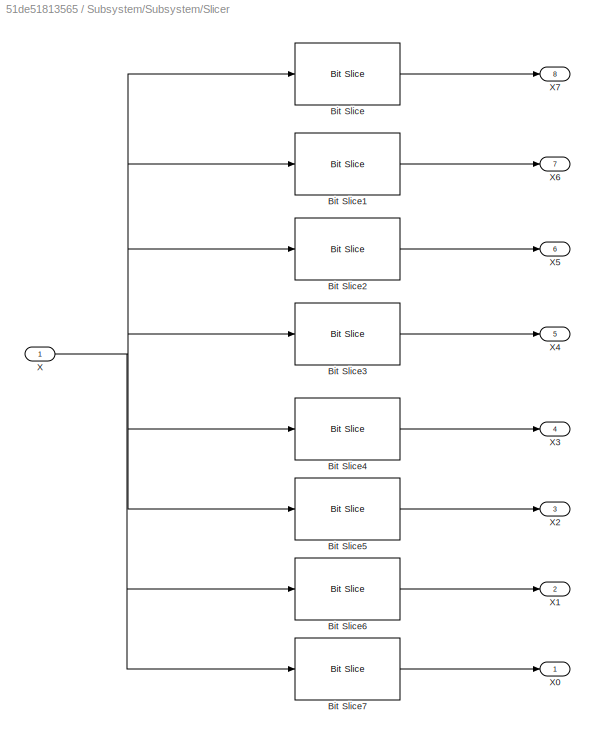
BLOCK [SubSystem] Subsystem/Subsystem/Slicer
  Ports = [1, 8]
  RequestExecContextInheritance = off
  Variant = off
BLOCK [Reference] Subsystem/Subsystem/Slicer/Bit Slice  REF=hdlsllib/HDL Operations/Bit Slice
  Ports = [1, 1]
  SourceBlock = hdlsllib/HDL Operations/Bit Slice
  SourceType = Bit Slice
BLOCK [Reference] Subsystem/Subsystem/Slicer/Bit Slice1  REF=hdlsllib/HDL Operations/Bit Slice
  Ports = [1, 1]
  SourceBlock = hdlsllib/HDL Operations/Bit Slice
  SourceType = Bit Slice
BLOCK [Reference] Subsystem/Subsystem/Slicer/Bit Slice2  REF=hdlsllib/HDL Operations/Bit Slice
  Ports = [1, 1]
  SourceBlock = hdlsllib/HDL Operations/Bit Slice
  SourceType = Bit Slice
BLOCK [Reference] Subsystem/Subsystem/Slicer/Bit Slice3  REF=hdlsllib/HDL Operations/Bit Slice
  Ports = [1, 1]
  SourceBlock = hdlsllib/HDL Operations/Bit Slice
  SourceType = Bit Slice
BLOCK [Reference] Subsystem/Subsystem/Slicer/Bit Slice4  REF=hdlsllib/HDL Operations/Bit Slice
  Ports = [1, 1]
  SourceBlock = hdlsllib/HDL Operations/Bit Slice
  SourceType = Bit Slice
BLOCK [Reference] Subsystem/Subsystem/Slicer/Bit Slice5  REF=hdlsllib/HDL Operations/Bit Slice
  Ports = [1, 1]
  SourceBlock = hdlsllib/HDL Operations/Bit Slice
  SourceType = Bit Slice
BLOCK [Reference] Subsystem/Subsystem/Slicer/Bit Slice6  REF=hdlsllib/HDL Operations/Bit Slice
  Ports = [1, 1]
  SourceBlock = hdlsllib/HDL Operations/Bit Slice
  SourceType = Bit Slice
BLOCK [Reference] Subsystem/Subsystem/Slicer/Bit Slice7  REF=hdlsllib/HDL Operations/Bit Slice
  Ports = [1, 1]
  SourceBlock = hdlsllib/HDL Operations/Bit Slice
  SourceType = Bit Slice
BLOCK [Inport] Subsystem/Subsystem/Slicer/X
  IconDisplay = Port number
  OutDataTypeStr = int8
  SampleTime = 1
BLOCK [Outport] Subsystem/Subsystem/Slicer/X0
  IconDisplay = Port number
BLOCK [Outport] Subsystem/Subsystem/Slicer/X1
  IconDisplay = Port number
  Port = 2
BLOCK [Outport] Subsystem/Subsystem/Slicer/X2
  IconDisplay = Port number
  Port = 3
BLOCK [Outport] Subsystem/Subsystem/Slicer/X3
  IconDisplay = Port number
  Port = 4
BLOCK [Outport] Subsystem/Subsystem/Slicer/X4
  IconDisplay = Port number
  Port = 5
BLOCK [Outport] Subsystem/Subsystem/Slicer/X5
  IconDisplay = Port number
  Port = 6
BLOCK [Outport] Subsystem/Subsystem/Slicer/X6
  IconDisplay = Port number
  Port = 7
BLOCK [Outport] Subsystem/Subsystem/Slicer/X7
  IconDisplay = Port number
  Port = 8
BLOCK [SubSystem] Subsystem/Subsystem/Slicer1
  Ports = [1, 8]
  RequestExecContextInheritance = off
  Variant = off
BLOCK [Reference] Subsystem/Subsystem/Slicer1/Bit Slice  REF=hdlsllib/HDL Operations/Bit Slice
  Ports = [1, 1]
  SourceBlock = hdlsllib/HDL Operations/Bit Slice
  SourceType = Bit Slice
BLOCK [Reference] Subsystem/Subsystem/Slicer1/Bit Slice1  REF=hdlsllib/HDL Operations/Bit Slice
  Ports = [1, 1]
  SourceBlock = hdlsllib/HDL Operations/Bit Slice
  SourceType = Bit Slice
BLOCK [Reference] Subsystem/Subsystem/Slicer1/Bit Slice2  REF=hdlsllib/HDL Operations/Bit Slice
  Ports = [1, 1]
  SourceBlock = hdlsllib/HDL Operations/Bit Slice
  SourceType = Bit Slice
BLOCK [Reference] Subsystem/Subsystem/Slicer1/Bit Slice3  REF=hdlsllib/HDL Operations/Bit Slice
  Ports = [1, 1]
  SourceBlock = hdlsllib/HDL Operations/Bit Slice
  SourceType = Bit Slice
BLOCK [Reference] Subsystem/Subsystem/Slicer1/Bit Slice4  REF=hdlsllib/HDL Operations/Bit Slice
  Ports = [1, 1]
  SourceBlock = hdlsllib/HDL Operations/Bit Slice
  SourceType = Bit Slice
BLOCK [Reference] Subsystem/Subsystem/Slicer1/Bit Slice5  REF=hdlsllib/HDL Operations/Bit Slice
  Ports = [1, 1]
  SourceBlock = hdlsllib/HDL Operations/Bit Slice
  SourceType = Bit Slice
BLOCK [Reference] Subsystem/Subsystem/Slicer1/Bit Slice6  REF=hdlsllib/HDL Operations/Bit Slice
  Ports = [1, 1]
  SourceBlock = hdlsllib/HDL Operations/Bit Slice
  SourceType = Bit Slice
BLOCK [Reference] Subsystem/Subsystem/Slicer1/Bit Slice7  REF=hdlsllib/HDL Operations/Bit Slice
  Ports = [1, 1]
  SourceBlock = hdlsllib/HDL Operations/Bit Slice
  SourceType = Bit Slice
BLOCK [Inport] Subsystem/Subsystem/Slicer1/Y
  IconDisplay = Port number
  OutDataTypeStr = int8
  SampleTime = 1
BLOCK [Outport] Subsystem/Subsystem/Slicer1/Y0
  IconDisplay = Port number
BLOCK [Outport] Subsystem/Subsystem/Slicer1/Y1
  IconDisplay = Port number
  Port = 2
BLOCK [Outport] Subsystem/Subsystem/Slicer1/Y2
  IconDisplay = Port number
  Port = 3
BLOCK [Outport] Subsystem/Subsystem/Slicer1/Y3
  IconDisplay = Port number
  Port = 4
BLOCK [Outport] Subsystem/Subsystem/Slicer1/Y4
  IconDisplay = Port number
  Port = 5
BLOCK [Outport] Subsystem/Subsystem/Slicer1/Y5
  IconDisplay = Port number
  Port = 6
BLOCK [Outport] Subsystem/Subsystem/Slicer1/Y6
  IconDisplay = Port number
  Port = 7
BLOCK [Outport] Subsystem/Subsystem/Slicer1/Y7
  IconDisplay = Port number
  Port = 8
LINE Constant1:1 -> Subsystem:2
LINE Constant:1 -> Subsystem:1
LINE Subsystem/Number1:1 -> Subsystem/Subsystem:1
LINE Subsystem/Number2:1 -> Subsystem/Subsystem:2
LINE Subsystem/Subsystem/Bit Concat:1 -> Subsystem/Subsystem/Data Type Conversion:1
NET Subsystem/Subsystem/Constant2:1 -> Subsystem/Subsystem/MultiBlock1:1, Subsystem/Subsystem/MultiBlock1:2, Subsystem/Subsystem/MultiBlock22:1, Subsystem/Subsystem/MultiBlock2:1, Subsystem/Subsystem/MultiBlock2:2, Subsystem/Subsystem/MultiBlock30:1, Subsystem/Subsystem/MultiBlock38:1, Subsystem/Subsystem/MultiBlock3:1, Subsystem/Subsystem/MultiBlock3:2, Subsystem/Subsystem/MultiBlock46:1, Subsystem/Subsystem/MultiBlock4:1, Subsystem/Subsystem/MultiBlock4:2, Subsystem/Subsystem/MultiBlock54:1, Subsystem/Subsystem/MultiBlock5:1, Subsystem/Subsystem/MultiBlock5:2, Subsystem/Subsystem/MultiBlock62:1, Subsystem/Subsystem/MultiBlock6:1, Subsystem/Subsystem/MultiBlock6:2, Subsystem/Subsystem/MultiBlock7:1, Subsystem/Subsystem/MultiBlock7:2, Subsystem/Subsystem/MultiBlock8:1, Subsystem/Subsystem/MultiBlock:1, Subsystem/Subsystem/MultiBlock:2
LINE Subsystem/Subsystem/Data Type Conversion:1 -> Subsystem/Subsystem/Result:1
LINE Subsystem/Subsystem/MultiBlock/A:1 -> Subsystem/Subsystem/MultiBlock/AND2:1
LINE Subsystem/Subsystem/MultiBlock/AND1:1 -> Subsystem/Subsystem/MultiBlock/OR :1
NET Subsystem/Subsystem/MultiBlock/AND2:1 -> Subsystem/Subsystem/MultiBlock/AND:2, Subsystem/Subsystem/MultiBlock/XOR1:2
LINE Subsystem/Subsystem/MultiBlock/AND:1 -> Subsystem/Subsystem/MultiBlock/OR :2
LINE Subsystem/Subsystem/MultiBlock/B:1 -> Subsystem/Subsystem/MultiBlock/AND2:2
NET Subsystem/Subsystem/MultiBlock/Cin:1 -> Subsystem/Subsystem/MultiBlock/AND1:2, Subsystem/Subsystem/MultiBlock/XOR:2
LINE Subsystem/Subsystem/MultiBlock/OR :1 -> Subsystem/Subsystem/MultiBlock/Carry:1
NET Subsystem/Subsystem/MultiBlock/SumIn:1 -> Subsystem/Subsystem/MultiBlock/AND:1, Subsystem/Subsystem/MultiBlock/XOR1:1
NET Subsystem/Subsystem/MultiBlock/XOR1:1 -> Subsystem/Subsystem/MultiBlock/AND1:1, Subsystem/Subsystem/MultiBlock/XOR:1
LINE Subsystem/Subsystem/MultiBlock/XOR:1 -> Subsystem/Subsystem/MultiBlock/Sum:1
LINE Subsystem/Subsystem/MultiBlock1/A:1 -> Subsystem/Subsystem/MultiBlock1/AND2:1
LINE Subsystem/Subsystem/MultiBlock1/AND1:1 -> Subsystem/Subsystem/MultiBlock1/OR :1
NET Subsystem/Subsystem/MultiBlock1/AND2:1 -> Subsystem/Subsystem/MultiBlock1/AND:2, Subsystem/Subsystem/MultiBlock1/XOR1:2
LINE Subsystem/Subsystem/MultiBlock1/AND:1 -> Subsystem/Subsystem/MultiBlock1/OR :2
LINE Subsystem/Subsystem/MultiBlock1/B:1 -> Subsystem/Subsystem/MultiBlock1/AND2:2
NET Subsystem/Subsystem/MultiBlock1/Cin:1 -> Subsystem/Subsystem/MultiBlock1/AND1:2, Subsystem/Subsystem/MultiBlock1/XOR:2
LINE Subsystem/Subsystem/MultiBlock1/OR :1 -> Subsystem/Subsystem/MultiBlock1/Carry:1
NET Subsystem/Subsystem/MultiBlock1/SumIn:1 -> Subsystem/Subsystem/MultiBlock1/AND:1, Subsystem/Subsystem/MultiBlock1/XOR1:1
NET Subsystem/Subsystem/MultiBlock1/XOR1:1 -> Subsystem/Subsystem/MultiBlock1/AND1:1, Subsystem/Subsystem/MultiBlock1/XOR:1
LINE Subsystem/Subsystem/MultiBlock1/XOR:1 -> Subsystem/Subsystem/MultiBlock1/Sum:1
LINE Subsystem/Subsystem/MultiBlock10/A:1 -> Subsystem/Subsystem/MultiBlock10/AND2:1
LINE Subsystem/Subsystem/MultiBlock10/AND1:1 -> Subsystem/Subsystem/MultiBlock10/OR :1
NET Subsystem/Subsystem/MultiBlock10/AND2:1 -> Subsystem/Subsystem/MultiBlock10/AND:2, Subsystem/Subsystem/MultiBlock10/XOR1:2
LINE Subsystem/Subsystem/MultiBlock10/AND:1 -> Subsystem/Subsystem/MultiBlock10/OR :2
LINE Subsystem/Subsystem/MultiBlock10/B:1 -> Subsystem/Subsystem/MultiBlock10/AND2:2
NET Subsystem/Subsystem/MultiBlock10/Cin:1 -> Subsystem/Subsystem/MultiBlock10/AND1:2, Subsystem/Subsystem/MultiBlock10/XOR:2
LINE Subsystem/Subsystem/MultiBlock10/OR :1 -> Subsystem/Subsystem/MultiBlock10/Carry:1
NET Subsystem/Subsystem/MultiBlock10/SumIn:1 -> Subsystem/Subsystem/MultiBlock10/AND:1, Subsystem/Subsystem/MultiBlock10/XOR1:1
NET Subsystem/Subsystem/MultiBlock10/XOR1:1 -> Subsystem/Subsystem/MultiBlock10/AND1:1, Subsystem/Subsystem/MultiBlock10/XOR:1
LINE Subsystem/Subsystem/MultiBlock10/XOR:1 -> Subsystem/Subsystem/MultiBlock10/Sum:1
LINE Subsystem/Subsystem/MultiBlock10:1 -> Subsystem/Subsystem/MultiBlock17:1
LINE Subsystem/Subsystem/MultiBlock10:2 -> Subsystem/Subsystem/MultiBlock16:2
LINE Subsystem/Subsystem/MultiBlock11/A:1 -> Subsystem/Subsystem/MultiBlock11/AND2:1
LINE Subsystem/Subsystem/MultiBlock11/AND1:1 -> Subsystem/Subsystem/MultiBlock11/OR :1
NET Subsystem/Subsystem/MultiBlock11/AND2:1 -> Subsystem/Subsystem/MultiBlock11/AND:2, Subsystem/Subsystem/MultiBlock11/XOR1:2
LINE Subsystem/Subsystem/MultiBlock11/AND:1 -> Subsystem/Subsystem/MultiBlock11/OR :2
LINE Subsystem/Subsystem/MultiBlock11/B:1 -> Subsystem/Subsystem/MultiBlock11/AND2:2
NET Subsystem/Subsystem/MultiBlock11/Cin:1 -> Subsystem/Subsystem/MultiBlock11/AND1:2, Subsystem/Subsystem/MultiBlock11/XOR:2
LINE Subsystem/Subsystem/MultiBlock11/OR :1 -> Subsystem/Subsystem/MultiBlock11/Carry:1
NET Subsystem/Subsystem/MultiBlock11/SumIn:1 -> Subsystem/Subsystem/MultiBlock11/AND:1, Subsystem/Subsystem/MultiBlock11/XOR1:1
NET Subsystem/Subsystem/MultiBlock11/XOR1:1 -> Subsystem/Subsystem/MultiBlock11/AND1:1, Subsystem/Subsystem/MultiBlock11/XOR:1
LINE Subsystem/Subsystem/MultiBlock11/XOR:1 -> Subsystem/Subsystem/MultiBlock11/Sum:1
LINE Subsystem/Subsystem/MultiBlock11:1 -> Subsystem/Subsystem/MultiBlock18:1
LINE Subsystem/Subsystem/MultiBlock11:2 -> Subsystem/Subsystem/MultiBlock17:2
LINE Subsystem/Subsystem/MultiBlock12/A:1 -> Subsystem/Subsystem/MultiBlock12/AND2:1
LINE Subsystem/Subsystem/MultiBlock12/AND1:1 -> Subsystem/Subsystem/MultiBlock12/OR :1
NET Subsystem/Subsystem/MultiBlock12/AND2:1 -> Subsystem/Subsystem/MultiBlock12/AND:2, Subsystem/Subsystem/MultiBlock12/XOR1:2
LINE Subsystem/Subsystem/MultiBlock12/AND:1 -> Subsystem/Subsystem/MultiBlock12/OR :2
LINE Subsystem/Subsystem/MultiBlock12/B:1 -> Subsystem/Subsystem/MultiBlock12/AND2:2
NET Subsystem/Subsystem/MultiBlock12/Cin:1 -> Subsystem/Subsystem/MultiBlock12/AND1:2, Subsystem/Subsystem/MultiBlock12/XOR:2
LINE Subsystem/Subsystem/MultiBlock12/OR :1 -> Subsystem/Subsystem/MultiBlock12/Carry:1
NET Subsystem/Subsystem/MultiBlock12/SumIn:1 -> Subsystem/Subsystem/MultiBlock12/AND:1, Subsystem/Subsystem/MultiBlock12/XOR1:1
NET Subsystem/Subsystem/MultiBlock12/XOR1:1 -> Subsystem/Subsystem/MultiBlock12/AND1:1, Subsystem/Subsystem/MultiBlock12/XOR:1
LINE Subsystem/Subsystem/MultiBlock12/XOR:1 -> Subsystem/Subsystem/MultiBlock12/Sum:1
LINE Subsystem/Subsystem/MultiBlock12:1 -> Subsystem/Subsystem/MultiBlock19:1
LINE Subsystem/Subsystem/MultiBlock12:2 -> Subsystem/Subsystem/MultiBlock18:2
LINE Subsystem/Subsystem/MultiBlock13/A:1 -> Subsystem/Subsystem/MultiBlock13/AND2:1
LINE Subsystem/Subsystem/MultiBlock13/AND1:1 -> Subsystem/Subsystem/MultiBlock13/OR :1
NET Subsystem/Subsystem/MultiBlock13/AND2:1 -> Subsystem/Subsystem/MultiBlock13/AND:2, Subsystem/Subsystem/MultiBlock13/XOR1:2
LINE Subsystem/Subsystem/MultiBlock13/AND:1 -> Subsystem/Subsystem/MultiBlock13/OR :2
LINE Subsystem/Subsystem/MultiBlock13/B:1 -> Subsystem/Subsystem/MultiBlock13/AND2:2
NET Subsystem/Subsystem/MultiBlock13/Cin:1 -> Subsystem/Subsystem/MultiBlock13/AND1:2, Subsystem/Subsystem/MultiBlock13/XOR:2
LINE Subsystem/Subsystem/MultiBlock13/OR :1 -> Subsystem/Subsystem/MultiBlock13/Carry:1
NET Subsystem/Subsystem/MultiBlock13/SumIn:1 -> Subsystem/Subsystem/MultiBlock13/AND:1, Subsystem/Subsystem/MultiBlock13/XOR1:1
NET Subsystem/Subsystem/MultiBlock13/XOR1:1 -> Subsystem/Subsystem/MultiBlock13/AND1:1, Subsystem/Subsystem/MultiBlock13/XOR:1
LINE Subsystem/Subsystem/MultiBlock13/XOR:1 -> Subsystem/Subsystem/MultiBlock13/Sum:1
LINE Subsystem/Subsystem/MultiBlock13:1 -> Subsystem/Subsystem/MultiBlock20:1
LINE Subsystem/Subsystem/MultiBlock13:2 -> Subsystem/Subsystem/MultiBlock19:2
LINE Subsystem/Subsystem/MultiBlock14/A:1 -> Subsystem/Subsystem/MultiBlock14/AND2:1
LINE Subsystem/Subsystem/MultiBlock14/AND1:1 -> Subsystem/Subsystem/MultiBlock14/OR :1
NET Subsystem/Subsystem/MultiBlock14/AND2:1 -> Subsystem/Subsystem/MultiBlock14/AND:2, Subsystem/Subsystem/MultiBlock14/XOR1:2
LINE Subsystem/Subsystem/MultiBlock14/AND:1 -> Subsystem/Subsystem/MultiBlock14/OR :2
LINE Subsystem/Subsystem/MultiBlock14/B:1 -> Subsystem/Subsystem/MultiBlock14/AND2:2
NET Subsystem/Subsystem/MultiBlock14/Cin:1 -> Subsystem/Subsystem/MultiBlock14/AND1:2, Subsystem/Subsystem/MultiBlock14/XOR:2
LINE Subsystem/Subsystem/MultiBlock14/OR :1 -> Subsystem/Subsystem/MultiBlock14/Carry:1
NET Subsystem/Subsystem/MultiBlock14/SumIn:1 -> Subsystem/Subsystem/MultiBlock14/AND:1, Subsystem/Subsystem/MultiBlock14/XOR1:1
NET Subsystem/Subsystem/MultiBlock14/XOR1:1 -> Subsystem/Subsystem/MultiBlock14/AND1:1, Subsystem/Subsystem/MultiBlock14/XOR:1
LINE Subsystem/Subsystem/MultiBlock14/XOR:1 -> Subsystem/Subsystem/MultiBlock14/Sum:1
LINE Subsystem/Subsystem/MultiBlock14:1 -> Subsystem/Subsystem/MultiBlock21:1
LINE Subsystem/Subsystem/MultiBlock14:2 -> Subsystem/Subsystem/MultiBlock20:2
LINE Subsystem/Subsystem/MultiBlock15/A:1 -> Subsystem/Subsystem/MultiBlock15/AND2:1
LINE Subsystem/Subsystem/MultiBlock15/AND1:1 -> Subsystem/Subsystem/MultiBlock15/OR :1
NET Subsystem/Subsystem/MultiBlock15/AND2:1 -> Subsystem/Subsystem/MultiBlock15/AND:2, Subsystem/Subsystem/MultiBlock15/XOR1:2
LINE Subsystem/Subsystem/MultiBlock15/AND:1 -> Subsystem/Subsystem/MultiBlock15/OR :2
LINE Subsystem/Subsystem/MultiBlock15/B:1 -> Subsystem/Subsystem/MultiBlock15/AND2:2
NET Subsystem/Subsystem/MultiBlock15/Cin:1 -> Subsystem/Subsystem/MultiBlock15/AND1:2, Subsystem/Subsystem/MultiBlock15/XOR:2
LINE Subsystem/Subsystem/MultiBlock15/OR :1 -> Subsystem/Subsystem/MultiBlock15/Carry:1
NET Subsystem/Subsystem/MultiBlock15/SumIn:1 -> Subsystem/Subsystem/MultiBlock15/AND:1, Subsystem/Subsystem/MultiBlock15/XOR1:1
NET Subsystem/Subsystem/MultiBlock15/XOR1:1 -> Subsystem/Subsystem/MultiBlock15/AND1:1, Subsystem/Subsystem/MultiBlock15/XOR:1
LINE Subsystem/Subsystem/MultiBlock15/XOR:1 -> Subsystem/Subsystem/MultiBlock15/Sum:1
LINE Subsystem/Subsystem/MultiBlock15:1 -> Subsystem/Subsystem/Bit Concat:14
LINE Subsystem/Subsystem/MultiBlock15:2 -> Subsystem/Subsystem/MultiBlock21:2
LINE Subsystem/Subsystem/MultiBlock16/A:1 -> Subsystem/Subsystem/MultiBlock16/AND2:1
LINE Subsystem/Subsystem/MultiBlock16/AND1:1 -> Subsystem/Subsystem/MultiBlock16/OR :1
NET Subsystem/Subsystem/MultiBlock16/AND2:1 -> Subsystem/Subsystem/MultiBlock16/AND:2, Subsystem/Subsystem/MultiBlock16/XOR1:2
LINE Subsystem/Subsystem/MultiBlock16/AND:1 -> Subsystem/Subsystem/MultiBlock16/OR :2
LINE Subsystem/Subsystem/MultiBlock16/B:1 -> Subsystem/Subsystem/MultiBlock16/AND2:2
NET Subsystem/Subsystem/MultiBlock16/Cin:1 -> Subsystem/Subsystem/MultiBlock16/AND1:2, Subsystem/Subsystem/MultiBlock16/XOR:2
LINE Subsystem/Subsystem/MultiBlock16/OR :1 -> Subsystem/Subsystem/MultiBlock16/Carry:1
NET Subsystem/Subsystem/MultiBlock16/SumIn:1 -> Subsystem/Subsystem/MultiBlock16/AND:1, Subsystem/Subsystem/MultiBlock16/XOR1:1
NET Subsystem/Subsystem/MultiBlock16/XOR1:1 -> Subsystem/Subsystem/MultiBlock16/AND1:1, Subsystem/Subsystem/MultiBlock16/XOR:1
LINE Subsystem/Subsystem/MultiBlock16/XOR:1 -> Subsystem/Subsystem/MultiBlock16/Sum:1
LINE Subsystem/Subsystem/MultiBlock16:1 -> Subsystem/Subsystem/MultiBlock25:1
LINE Subsystem/Subsystem/MultiBlock16:2 -> Subsystem/Subsystem/MultiBlock24:2
LINE Subsystem/Subsystem/MultiBlock17/A:1 -> Subsystem/Subsystem/MultiBlock17/AND2:1
LINE Subsystem/Subsystem/MultiBlock17/AND1:1 -> Subsystem/Subsystem/MultiBlock17/OR :1
NET Subsystem/Subsystem/MultiBlock17/AND2:1 -> Subsystem/Subsystem/MultiBlock17/AND:2, Subsystem/Subsystem/MultiBlock17/XOR1:2
LINE Subsystem/Subsystem/MultiBlock17/AND:1 -> Subsystem/Subsystem/MultiBlock17/OR :2
LINE Subsystem/Subsystem/MultiBlock17/B:1 -> Subsystem/Subsystem/MultiBlock17/AND2:2
NET Subsystem/Subsystem/MultiBlock17/Cin:1 -> Subsystem/Subsystem/MultiBlock17/AND1:2, Subsystem/Subsystem/MultiBlock17/XOR:2
LINE Subsystem/Subsystem/MultiBlock17/OR :1 -> Subsystem/Subsystem/MultiBlock17/Carry:1
NET Subsystem/Subsystem/MultiBlock17/SumIn:1 -> Subsystem/Subsystem/MultiBlock17/AND:1, Subsystem/Subsystem/MultiBlock17/XOR1:1
NET Subsystem/Subsystem/MultiBlock17/XOR1:1 -> Subsystem/Subsystem/MultiBlock17/AND1:1, Subsystem/Subsystem/MultiBlock17/XOR:1
LINE Subsystem/Subsystem/MultiBlock17/XOR:1 -> Subsystem/Subsystem/MultiBlock17/Sum:1
LINE Subsystem/Subsystem/MultiBlock17:1 -> Subsystem/Subsystem/MultiBlock26:1
LINE Subsystem/Subsystem/MultiBlock17:2 -> Subsystem/Subsystem/MultiBlock25:2
LINE Subsystem/Subsystem/MultiBlock18/A:1 -> Subsystem/Subsystem/MultiBlock18/AND2:1
LINE Subsystem/Subsystem/MultiBlock18/AND1:1 -> Subsystem/Subsystem/MultiBlock18/OR :1
NET Subsystem/Subsystem/MultiBlock18/AND2:1 -> Subsystem/Subsystem/MultiBlock18/AND:2, Subsystem/Subsystem/MultiBlock18/XOR1:2
LINE Subsystem/Subsystem/MultiBlock18/AND:1 -> Subsystem/Subsystem/MultiBlock18/OR :2
LINE Subsystem/Subsystem/MultiBlock18/B:1 -> Subsystem/Subsystem/MultiBlock18/AND2:2
NET Subsystem/Subsystem/MultiBlock18/Cin:1 -> Subsystem/Subsystem/MultiBlock18/AND1:2, Subsystem/Subsystem/MultiBlock18/XOR:2
LINE Subsystem/Subsystem/MultiBlock18/OR :1 -> Subsystem/Subsystem/MultiBlock18/Carry:1
NET Subsystem/Subsystem/MultiBlock18/SumIn:1 -> Subsystem/Subsystem/MultiBlock18/AND:1, Subsystem/Subsystem/MultiBlock18/XOR1:1
NET Subsystem/Subsystem/MultiBlock18/XOR1:1 -> Subsystem/Subsystem/MultiBlock18/AND1:1, Subsystem/Subsystem/MultiBlock18/XOR:1
LINE Subsystem/Subsystem/MultiBlock18/XOR:1 -> Subsystem/Subsystem/MultiBlock18/Sum:1
LINE Subsystem/Subsystem/MultiBlock18:1 -> Subsystem/Subsystem/MultiBlock27:1
LINE Subsystem/Subsystem/MultiBlock18:2 -> Subsystem/Subsystem/MultiBlock26:2
LINE Subsystem/Subsystem/MultiBlock19/A:1 -> Subsystem/Subsystem/MultiBlock19/AND2:1
LINE Subsystem/Subsystem/MultiBlock19/AND1:1 -> Subsystem/Subsystem/MultiBlock19/OR :1
NET Subsystem/Subsystem/MultiBlock19/AND2:1 -> Subsystem/Subsystem/MultiBlock19/AND:2, Subsystem/Subsystem/MultiBlock19/XOR1:2
LINE Subsystem/Subsystem/MultiBlock19/AND:1 -> Subsystem/Subsystem/MultiBlock19/OR :2
LINE Subsystem/Subsystem/MultiBlock19/B:1 -> Subsystem/Subsystem/MultiBlock19/AND2:2
NET Subsystem/Subsystem/MultiBlock19/Cin:1 -> Subsystem/Subsystem/MultiBlock19/AND1:2, Subsystem/Subsystem/MultiBlock19/XOR:2
LINE Subsystem/Subsystem/MultiBlock19/OR :1 -> Subsystem/Subsystem/MultiBlock19/Carry:1
NET Subsystem/Subsystem/MultiBlock19/SumIn:1 -> Subsystem/Subsystem/MultiBlock19/AND:1, Subsystem/Subsystem/MultiBlock19/XOR1:1
NET Subsystem/Subsystem/MultiBlock19/XOR1:1 -> Subsystem/Subsystem/MultiBlock19/AND1:1, Subsystem/Subsystem/MultiBlock19/XOR:1
LINE Subsystem/Subsystem/MultiBlock19/XOR:1 -> Subsystem/Subsystem/MultiBlock19/Sum:1
LINE Subsystem/Subsystem/MultiBlock19:1 -> Subsystem/Subsystem/MultiBlock28:1
LINE Subsystem/Subsystem/MultiBlock19:2 -> Subsystem/Subsystem/MultiBlock27:2
LINE Subsystem/Subsystem/MultiBlock1:1 -> Subsystem/Subsystem/MultiBlock10:1
LINE Subsystem/Subsystem/MultiBlock1:2 -> Subsystem/Subsystem/MultiBlock9:2
LINE Subsystem/Subsystem/MultiBlock2/A:1 -> Subsystem/Subsystem/MultiBlock2/AND2:1
LINE Subsystem/Subsystem/MultiBlock2/AND1:1 -> Subsystem/Subsystem/MultiBlock2/OR :1
NET Subsystem/Subsystem/MultiBlock2/AND2:1 -> Subsystem/Subsystem/MultiBlock2/AND:2, Subsystem/Subsystem/MultiBlock2/XOR1:2
LINE Subsystem/Subsystem/MultiBlock2/AND:1 -> Subsystem/Subsystem/MultiBlock2/OR :2
LINE Subsystem/Subsystem/MultiBlock2/B:1 -> Subsystem/Subsystem/MultiBlock2/AND2:2
NET Subsystem/Subsystem/MultiBlock2/Cin:1 -> Subsystem/Subsystem/MultiBlock2/AND1:2, Subsystem/Subsystem/MultiBlock2/XOR:2
LINE Subsystem/Subsystem/MultiBlock2/OR :1 -> Subsystem/Subsystem/MultiBlock2/Carry:1
NET Subsystem/Subsystem/MultiBlock2/SumIn:1 -> Subsystem/Subsystem/MultiBlock2/AND:1, Subsystem/Subsystem/MultiBlock2/XOR1:1
NET Subsystem/Subsystem/MultiBlock2/XOR1:1 -> Subsystem/Subsystem/MultiBlock2/AND1:1, Subsystem/Subsystem/MultiBlock2/XOR:1
LINE Subsystem/Subsystem/MultiBlock2/XOR:1 -> Subsystem/Subsystem/MultiBlock2/Sum:1
LINE Subsystem/Subsystem/MultiBlock20/A:1 -> Subsystem/Subsystem/MultiBlock20/AND2:1
LINE Subsystem/Subsystem/MultiBlock20/AND1:1 -> Subsystem/Subsystem/MultiBlock20/OR :1
NET Subsystem/Subsystem/MultiBlock20/AND2:1 -> Subsystem/Subsystem/MultiBlock20/AND:2, Subsystem/Subsystem/MultiBlock20/XOR1:2
LINE Subsystem/Subsystem/MultiBlock20/AND:1 -> Subsystem/Subsystem/MultiBlock20/OR :2
LINE Subsystem/Subsystem/MultiBlock20/B:1 -> Subsystem/Subsystem/MultiBlock20/AND2:2
NET Subsystem/Subsystem/MultiBlock20/Cin:1 -> Subsystem/Subsystem/MultiBlock20/AND1:2, Subsystem/Subsystem/MultiBlock20/XOR:2
LINE Subsystem/Subsystem/MultiBlock20/OR :1 -> Subsystem/Subsystem/MultiBlock20/Carry:1
NET Subsystem/Subsystem/MultiBlock20/SumIn:1 -> Subsystem/Subsystem/MultiBlock20/AND:1, Subsystem/Subsystem/MultiBlock20/XOR1:1
NET Subsystem/Subsystem/MultiBlock20/XOR1:1 -> Subsystem/Subsystem/MultiBlock20/AND1:1, Subsystem/Subsystem/MultiBlock20/XOR:1
LINE Subsystem/Subsystem/MultiBlock20/XOR:1 -> Subsystem/Subsystem/MultiBlock20/Sum:1
LINE Subsystem/Subsystem/MultiBlock20:1 -> Subsystem/Subsystem/MultiBlock29:1
LINE Subsystem/Subsystem/MultiBlock20:2 -> Subsystem/Subsystem/MultiBlock28:2
LINE Subsystem/Subsystem/MultiBlock21/A:1 -> Subsystem/Subsystem/MultiBlock21/AND2:1
LINE Subsystem/Subsystem/MultiBlock21/AND1:1 -> Subsystem/Subsystem/MultiBlock21/OR :1
NET Subsystem/Subsystem/MultiBlock21/AND2:1 -> Subsystem/Subsystem/MultiBlock21/AND:2, Subsystem/Subsystem/MultiBlock21/XOR1:2
LINE Subsystem/Subsystem/MultiBlock21/AND:1 -> Subsystem/Subsystem/MultiBlock21/OR :2
LINE Subsystem/Subsystem/MultiBlock21/B:1 -> Subsystem/Subsystem/MultiBlock21/AND2:2
NET Subsystem/Subsystem/MultiBlock21/Cin:1 -> Subsystem/Subsystem/MultiBlock21/AND1:2, Subsystem/Subsystem/MultiBlock21/XOR:2
LINE Subsystem/Subsystem/MultiBlock21/OR :1 -> Subsystem/Subsystem/MultiBlock21/Carry:1
NET Subsystem/Subsystem/MultiBlock21/SumIn:1 -> Subsystem/Subsystem/MultiBlock21/AND:1, Subsystem/Subsystem/MultiBlock21/XOR1:1
NET Subsystem/Subsystem/MultiBlock21/XOR1:1 -> Subsystem/Subsystem/MultiBlock21/AND1:1, Subsystem/Subsystem/MultiBlock21/XOR:1
LINE Subsystem/Subsystem/MultiBlock21/XOR:1 -> Subsystem/Subsystem/MultiBlock21/Sum:1
LINE Subsystem/Subsystem/MultiBlock21:1 -> Subsystem/Subsystem/Bit Concat:13
LINE Subsystem/Subsystem/MultiBlock21:2 -> Subsystem/Subsystem/MultiBlock29:2
LINE Subsystem/Subsystem/MultiBlock22/A:1 -> Subsystem/Subsystem/MultiBlock22/AND2:1
LINE Subsystem/Subsystem/MultiBlock22/AND1:1 -> Subsystem/Subsystem/MultiBlock22/OR :1
NET Subsystem/Subsystem/MultiBlock22/AND2:1 -> Subsystem/Subsystem/MultiBlock22/AND:2, Subsystem/Subsystem/MultiBlock22/XOR1:2
LINE Subsystem/Subsystem/MultiBlock22/AND:1 -> Subsystem/Subsystem/MultiBlock22/OR :2
LINE Subsystem/Subsystem/MultiBlock22/B:1 -> Subsystem/Subsystem/MultiBlock22/AND2:2
NET Subsystem/Subsystem/MultiBlock22/Cin:1 -> Subsystem/Subsystem/MultiBlock22/AND1:2, Subsystem/Subsystem/MultiBlock22/XOR:2
LINE Subsystem/Subsystem/MultiBlock22/OR :1 -> Subsystem/Subsystem/MultiBlock22/Carry:1
NET Subsystem/Subsystem/MultiBlock22/SumIn:1 -> Subsystem/Subsystem/MultiBlock22/AND:1, Subsystem/Subsystem/MultiBlock22/XOR1:1
NET Subsystem/Subsystem/MultiBlock22/XOR1:1 -> Subsystem/Subsystem/MultiBlock22/AND1:1, Subsystem/Subsystem/MultiBlock22/XOR:1
LINE Subsystem/Subsystem/MultiBlock22/XOR:1 -> Subsystem/Subsystem/MultiBlock22/Sum:1
LINE Subsystem/Subsystem/MultiBlock22:1 -> Subsystem/Subsystem/MultiBlock31:1
LINE Subsystem/Subsystem/MultiBlock22:2 -> Subsystem/Subsystem/MultiBlock30:2
LINE Subsystem/Subsystem/MultiBlock23/A:1 -> Subsystem/Subsystem/MultiBlock23/AND2:1
LINE Subsystem/Subsystem/MultiBlock23/AND1:1 -> Subsystem/Subsystem/MultiBlock23/OR :1
NET Subsystem/Subsystem/MultiBlock23/AND2:1 -> Subsystem/Subsystem/MultiBlock23/AND:2, Subsystem/Subsystem/MultiBlock23/XOR1:2
LINE Subsystem/Subsystem/MultiBlock23/AND:1 -> Subsystem/Subsystem/MultiBlock23/OR :2
LINE Subsystem/Subsystem/MultiBlock23/B:1 -> Subsystem/Subsystem/MultiBlock23/AND2:2
NET Subsystem/Subsystem/MultiBlock23/Cin:1 -> Subsystem/Subsystem/MultiBlock23/AND1:2, Subsystem/Subsystem/MultiBlock23/XOR:2
LINE Subsystem/Subsystem/MultiBlock23/OR :1 -> Subsystem/Subsystem/MultiBlock23/Carry:1
NET Subsystem/Subsystem/MultiBlock23/SumIn:1 -> Subsystem/Subsystem/MultiBlock23/AND:1, Subsystem/Subsystem/MultiBlock23/XOR1:1
NET Subsystem/Subsystem/MultiBlock23/XOR1:1 -> Subsystem/Subsystem/MultiBlock23/AND1:1, Subsystem/Subsystem/MultiBlock23/XOR:1
LINE Subsystem/Subsystem/MultiBlock23/XOR:1 -> Subsystem/Subsystem/MultiBlock23/Sum:1
LINE Subsystem/Subsystem/MultiBlock23:1 -> Subsystem/Subsystem/MultiBlock24:1
LINE Subsystem/Subsystem/MultiBlock23:2 -> Subsystem/Subsystem/MultiBlock31:2
LINE Subsystem/Subsystem/MultiBlock24/A:1 -> Subsystem/Subsystem/MultiBlock24/AND2:1
LINE Subsystem/Subsystem/MultiBlock24/AND1:1 -> Subsystem/Subsystem/MultiBlock24/OR :1
NET Subsystem/Subsystem/MultiBlock24/AND2:1 -> Subsystem/Subsystem/MultiBlock24/AND:2, Subsystem/Subsystem/MultiBlock24/XOR1:2
LINE Subsystem/Subsystem/MultiBlock24/AND:1 -> Subsystem/Subsystem/MultiBlock24/OR :2
LINE Subsystem/Subsystem/MultiBlock24/B:1 -> Subsystem/Subsystem/MultiBlock24/AND2:2
NET Subsystem/Subsystem/MultiBlock24/Cin:1 -> Subsystem/Subsystem/MultiBlock24/AND1:2, Subsystem/Subsystem/MultiBlock24/XOR:2
LINE Subsystem/Subsystem/MultiBlock24/OR :1 -> Subsystem/Subsystem/MultiBlock24/Carry:1
NET Subsystem/Subsystem/MultiBlock24/SumIn:1 -> Subsystem/Subsystem/MultiBlock24/AND:1, Subsystem/Subsystem/MultiBlock24/XOR1:1
NET Subsystem/Subsystem/MultiBlock24/XOR1:1 -> Subsystem/Subsystem/MultiBlock24/AND1:1, Subsystem/Subsystem/MultiBlock24/XOR:1
LINE Subsystem/Subsystem/MultiBlock24/XOR:1 -> Subsystem/Subsystem/MultiBlock24/Sum:1
LINE Subsystem/Subsystem/MultiBlock24:1 -> Subsystem/Subsystem/MultiBlock33:1
LINE Subsystem/Subsystem/MultiBlock24:2 -> Subsystem/Subsystem/MultiBlock32:2
LINE Subsystem/Subsystem/MultiBlock25/A:1 -> Subsystem/Subsystem/MultiBlock25/AND2:1
LINE Subsystem/Subsystem/MultiBlock25/AND1:1 -> Subsystem/Subsystem/MultiBlock25/OR :1
NET Subsystem/Subsystem/MultiBlock25/AND2:1 -> Subsystem/Subsystem/MultiBlock25/AND:2, Subsystem/Subsystem/MultiBlock25/XOR1:2
LINE Subsystem/Subsystem/MultiBlock25/AND:1 -> Subsystem/Subsystem/MultiBlock25/OR :2
LINE Subsystem/Subsystem/MultiBlock25/B:1 -> Subsystem/Subsystem/MultiBlock25/AND2:2
NET Subsystem/Subsystem/MultiBlock25/Cin:1 -> Subsystem/Subsystem/MultiBlock25/AND1:2, Subsystem/Subsystem/MultiBlock25/XOR:2
LINE Subsystem/Subsystem/MultiBlock25/OR :1 -> Subsystem/Subsystem/MultiBlock25/Carry:1
NET Subsystem/Subsystem/MultiBlock25/SumIn:1 -> Subsystem/Subsystem/MultiBlock25/AND:1, Subsystem/Subsystem/MultiBlock25/XOR1:1
NET Subsystem/Subsystem/MultiBlock25/XOR1:1 -> Subsystem/Subsystem/MultiBlock25/AND1:1, Subsystem/Subsystem/MultiBlock25/XOR:1
LINE Subsystem/Subsystem/MultiBlock25/XOR:1 -> Subsystem/Subsystem/MultiBlock25/Sum:1
LINE Subsystem/Subsystem/MultiBlock25:1 -> Subsystem/Subsystem/MultiBlock34:1
LINE Subsystem/Subsystem/MultiBlock25:2 -> Subsystem/Subsystem/MultiBlock33:2
LINE Subsystem/Subsystem/MultiBlock26/A:1 -> Subsystem/Subsystem/MultiBlock26/AND2:1
LINE Subsystem/Subsystem/MultiBlock26/AND1:1 -> Subsystem/Subsystem/MultiBlock26/OR :1
NET Subsystem/Subsystem/MultiBlock26/AND2:1 -> Subsystem/Subsystem/MultiBlock26/AND:2, Subsystem/Subsystem/MultiBlock26/XOR1:2
LINE Subsystem/Subsystem/MultiBlock26/AND:1 -> Subsystem/Subsystem/MultiBlock26/OR :2
LINE Subsystem/Subsystem/MultiBlock26/B:1 -> Subsystem/Subsystem/MultiBlock26/AND2:2
NET Subsystem/Subsystem/MultiBlock26/Cin:1 -> Subsystem/Subsystem/MultiBlock26/AND1:2, Subsystem/Subsystem/MultiBlock26/XOR:2
LINE Subsystem/Subsystem/MultiBlock26/OR :1 -> Subsystem/Subsystem/MultiBlock26/Carry:1
NET Subsystem/Subsystem/MultiBlock26/SumIn:1 -> Subsystem/Subsystem/MultiBlock26/AND:1, Subsystem/Subsystem/MultiBlock26/XOR1:1
NET Subsystem/Subsystem/MultiBlock26/XOR1:1 -> Subsystem/Subsystem/MultiBlock26/AND1:1, Subsystem/Subsystem/MultiBlock26/XOR:1
LINE Subsystem/Subsystem/MultiBlock26/XOR:1 -> Subsystem/Subsystem/MultiBlock26/Sum:1
LINE Subsystem/Subsystem/MultiBlock26:1 -> Subsystem/Subsystem/MultiBlock35:1
LINE Subsystem/Subsystem/MultiBlock26:2 -> Subsystem/Subsystem/MultiBlock34:2
LINE Subsystem/Subsystem/MultiBlock27/A:1 -> Subsystem/Subsystem/MultiBlock27/AND2:1
LINE Subsystem/Subsystem/MultiBlock27/AND1:1 -> Subsystem/Subsystem/MultiBlock27/OR :1
NET Subsystem/Subsystem/MultiBlock27/AND2:1 -> Subsystem/Subsystem/MultiBlock27/AND:2, Subsystem/Subsystem/MultiBlock27/XOR1:2
LINE Subsystem/Subsystem/MultiBlock27/AND:1 -> Subsystem/Subsystem/MultiBlock27/OR :2
LINE Subsystem/Subsystem/MultiBlock27/B:1 -> Subsystem/Subsystem/MultiBlock27/AND2:2
NET Subsystem/Subsystem/MultiBlock27/Cin:1 -> Subsystem/Subsystem/MultiBlock27/AND1:2, Subsystem/Subsystem/MultiBlock27/XOR:2
LINE Subsystem/Subsystem/MultiBlock27/OR :1 -> Subsystem/Subsystem/MultiBlock27/Carry:1
NET Subsystem/Subsystem/MultiBlock27/SumIn:1 -> Subsystem/Subsystem/MultiBlock27/AND:1, Subsystem/Subsystem/MultiBlock27/XOR1:1
NET Subsystem/Subsystem/MultiBlock27/XOR1:1 -> Subsystem/Subsystem/MultiBlock27/AND1:1, Subsystem/Subsystem/MultiBlock27/XOR:1
LINE Subsystem/Subsystem/MultiBlock27/XOR:1 -> Subsystem/Subsystem/MultiBlock27/Sum:1
LINE Subsystem/Subsystem/MultiBlock27:1 -> Subsystem/Subsystem/MultiBlock36:1
LINE Subsystem/Subsystem/MultiBlock27:2 -> Subsystem/Subsystem/MultiBlock35:2
LINE Subsystem/Subsystem/MultiBlock28/A:1 -> Subsystem/Subsystem/MultiBlock28/AND2:1
LINE Subsystem/Subsystem/MultiBlock28/AND1:1 -> Subsystem/Subsystem/MultiBlock28/OR :1
NET Subsystem/Subsystem/MultiBlock28/AND2:1 -> Subsystem/Subsystem/MultiBlock28/AND:2, Subsystem/Subsystem/MultiBlock28/XOR1:2
LINE Subsystem/Subsystem/MultiBlock28/AND:1 -> Subsystem/Subsystem/MultiBlock28/OR :2
LINE Subsystem/Subsystem/MultiBlock28/B:1 -> Subsystem/Subsystem/MultiBlock28/AND2:2
NET Subsystem/Subsystem/MultiBlock28/Cin:1 -> Subsystem/Subsystem/MultiBlock28/AND1:2, Subsystem/Subsystem/MultiBlock28/XOR:2
LINE Subsystem/Subsystem/MultiBlock28/OR :1 -> Subsystem/Subsystem/MultiBlock28/Carry:1
NET Subsystem/Subsystem/MultiBlock28/SumIn:1 -> Subsystem/Subsystem/MultiBlock28/AND:1, Subsystem/Subsystem/MultiBlock28/XOR1:1
NET Subsystem/Subsystem/MultiBlock28/XOR1:1 -> Subsystem/Subsystem/MultiBlock28/AND1:1, Subsystem/Subsystem/MultiBlock28/XOR:1
LINE Subsystem/Subsystem/MultiBlock28/XOR:1 -> Subsystem/Subsystem/MultiBlock28/Sum:1
LINE Subsystem/Subsystem/MultiBlock28:1 -> Subsystem/Subsystem/MultiBlock37:1
LINE Subsystem/Subsystem/MultiBlock28:2 -> Subsystem/Subsystem/MultiBlock36:2
LINE Subsystem/Subsystem/MultiBlock29/A:1 -> Subsystem/Subsystem/MultiBlock29/AND2:1
LINE Subsystem/Subsystem/MultiBlock29/AND1:1 -> Subsystem/Subsystem/MultiBlock29/OR :1
NET Subsystem/Subsystem/MultiBlock29/AND2:1 -> Subsystem/Subsystem/MultiBlock29/AND:2, Subsystem/Subsystem/MultiBlock29/XOR1:2
LINE Subsystem/Subsystem/MultiBlock29/AND:1 -> Subsystem/Subsystem/MultiBlock29/OR :2
LINE Subsystem/Subsystem/MultiBlock29/B:1 -> Subsystem/Subsystem/MultiBlock29/AND2:2
NET Subsystem/Subsystem/MultiBlock29/Cin:1 -> Subsystem/Subsystem/MultiBlock29/AND1:2, Subsystem/Subsystem/MultiBlock29/XOR:2
LINE Subsystem/Subsystem/MultiBlock29/OR :1 -> Subsystem/Subsystem/MultiBlock29/Carry:1
NET Subsystem/Subsystem/MultiBlock29/SumIn:1 -> Subsystem/Subsystem/MultiBlock29/AND:1, Subsystem/Subsystem/MultiBlock29/XOR1:1
NET Subsystem/Subsystem/MultiBlock29/XOR1:1 -> Subsystem/Subsystem/MultiBlock29/AND1:1, Subsystem/Subsystem/MultiBlock29/XOR:1
LINE Subsystem/Subsystem/MultiBlock29/XOR:1 -> Subsystem/Subsystem/MultiBlock29/Sum:1
LINE Subsystem/Subsystem/MultiBlock29:1 -> Subsystem/Subsystem/Bit Concat:12
LINE Subsystem/Subsystem/MultiBlock29:2 -> Subsystem/Subsystem/MultiBlock37:2
LINE Subsystem/Subsystem/MultiBlock2:1 -> Subsystem/Subsystem/MultiBlock11:1
LINE Subsystem/Subsystem/MultiBlock2:2 -> Subsystem/Subsystem/MultiBlock10:2
LINE Subsystem/Subsystem/MultiBlock3/A:1 -> Subsystem/Subsystem/MultiBlock3/AND2:1
LINE Subsystem/Subsystem/MultiBlock3/AND1:1 -> Subsystem/Subsystem/MultiBlock3/OR :1
NET Subsystem/Subsystem/MultiBlock3/AND2:1 -> Subsystem/Subsystem/MultiBlock3/AND:2, Subsystem/Subsystem/MultiBlock3/XOR1:2
LINE Subsystem/Subsystem/MultiBlock3/AND:1 -> Subsystem/Subsystem/MultiBlock3/OR :2
LINE Subsystem/Subsystem/MultiBlock3/B:1 -> Subsystem/Subsystem/MultiBlock3/AND2:2
NET Subsystem/Subsystem/MultiBlock3/Cin:1 -> Subsystem/Subsystem/MultiBlock3/AND1:2, Subsystem/Subsystem/MultiBlock3/XOR:2
LINE Subsystem/Subsystem/MultiBlock3/OR :1 -> Subsystem/Subsystem/MultiBlock3/Carry:1
NET Subsystem/Subsystem/MultiBlock3/SumIn:1 -> Subsystem/Subsystem/MultiBlock3/AND:1, Subsystem/Subsystem/MultiBlock3/XOR1:1
NET Subsystem/Subsystem/MultiBlock3/XOR1:1 -> Subsystem/Subsystem/MultiBlock3/AND1:1, Subsystem/Subsystem/MultiBlock3/XOR:1
LINE Subsystem/Subsystem/MultiBlock3/XOR:1 -> Subsystem/Subsystem/MultiBlock3/Sum:1
LINE Subsystem/Subsystem/MultiBlock30/A:1 -> Subsystem/Subsystem/MultiBlock30/AND2:1
LINE Subsystem/Subsystem/MultiBlock30/AND1:1 -> Subsystem/Subsystem/MultiBlock30/OR :1
NET Subsystem/Subsystem/MultiBlock30/AND2:1 -> Subsystem/Subsystem/MultiBlock30/AND:2, Subsystem/Subsystem/MultiBlock30/XOR1:2
LINE Subsystem/Subsystem/MultiBlock30/AND:1 -> Subsystem/Subsystem/MultiBlock30/OR :2
LINE Subsystem/Subsystem/MultiBlock30/B:1 -> Subsystem/Subsystem/MultiBlock30/AND2:2
NET Subsystem/Subsystem/MultiBlock30/Cin:1 -> Subsystem/Subsystem/MultiBlock30/AND1:2, Subsystem/Subsystem/MultiBlock30/XOR:2
LINE Subsystem/Subsystem/MultiBlock30/OR :1 -> Subsystem/Subsystem/MultiBlock30/Carry:1
NET Subsystem/Subsystem/MultiBlock30/SumIn:1 -> Subsystem/Subsystem/MultiBlock30/AND:1, Subsystem/Subsystem/MultiBlock30/XOR1:1
NET Subsystem/Subsystem/MultiBlock30/XOR1:1 -> Subsystem/Subsystem/MultiBlock30/AND1:1, Subsystem/Subsystem/MultiBlock30/XOR:1
LINE Subsystem/Subsystem/MultiBlock30/XOR:1 -> Subsystem/Subsystem/MultiBlock30/Sum:1
LINE Subsystem/Subsystem/MultiBlock30:1 -> Subsystem/Subsystem/MultiBlock39:1
LINE Subsystem/Subsystem/MultiBlock30:2 -> Subsystem/Subsystem/MultiBlock38:2
LINE Subsystem/Subsystem/MultiBlock31/A:1 -> Subsystem/Subsystem/MultiBlock31/AND2:1
LINE Subsystem/Subsystem/MultiBlock31/AND1:1 -> Subsystem/Subsystem/MultiBlock31/OR :1
NET Subsystem/Subsystem/MultiBlock31/AND2:1 -> Subsystem/Subsystem/MultiBlock31/AND:2, Subsystem/Subsystem/MultiBlock31/XOR1:2
LINE Subsystem/Subsystem/MultiBlock31/AND:1 -> Subsystem/Subsystem/MultiBlock31/OR :2
LINE Subsystem/Subsystem/MultiBlock31/B:1 -> Subsystem/Subsystem/MultiBlock31/AND2:2
NET Subsystem/Subsystem/MultiBlock31/Cin:1 -> Subsystem/Subsystem/MultiBlock31/AND1:2, Subsystem/Subsystem/MultiBlock31/XOR:2
LINE Subsystem/Subsystem/MultiBlock31/OR :1 -> Subsystem/Subsystem/MultiBlock31/Carry:1
NET Subsystem/Subsystem/MultiBlock31/SumIn:1 -> Subsystem/Subsystem/MultiBlock31/AND:1, Subsystem/Subsystem/MultiBlock31/XOR1:1
NET Subsystem/Subsystem/MultiBlock31/XOR1:1 -> Subsystem/Subsystem/MultiBlock31/AND1:1, Subsystem/Subsystem/MultiBlock31/XOR:1
LINE Subsystem/Subsystem/MultiBlock31/XOR:1 -> Subsystem/Subsystem/MultiBlock31/Sum:1
LINE Subsystem/Subsystem/MultiBlock31:1 -> Subsystem/Subsystem/MultiBlock32:1
LINE Subsystem/Subsystem/MultiBlock31:2 -> Subsystem/Subsystem/MultiBlock39:2
LINE Subsystem/Subsystem/MultiBlock32/A:1 -> Subsystem/Subsystem/MultiBlock32/AND2:1
LINE Subsystem/Subsystem/MultiBlock32/AND1:1 -> Subsystem/Subsystem/MultiBlock32/OR :1
NET Subsystem/Subsystem/MultiBlock32/AND2:1 -> Subsystem/Subsystem/MultiBlock32/AND:2, Subsystem/Subsystem/MultiBlock32/XOR1:2
LINE Subsystem/Subsystem/MultiBlock32/AND:1 -> Subsystem/Subsystem/MultiBlock32/OR :2
LINE Subsystem/Subsystem/MultiBlock32/B:1 -> Subsystem/Subsystem/MultiBlock32/AND2:2
NET Subsystem/Subsystem/MultiBlock32/Cin:1 -> Subsystem/Subsystem/MultiBlock32/AND1:2, Subsystem/Subsystem/MultiBlock32/XOR:2
LINE Subsystem/Subsystem/MultiBlock32/OR :1 -> Subsystem/Subsystem/MultiBlock32/Carry:1
NET Subsystem/Subsystem/MultiBlock32/SumIn:1 -> Subsystem/Subsystem/MultiBlock32/AND:1, Subsystem/Subsystem/MultiBlock32/XOR1:1
NET Subsystem/Subsystem/MultiBlock32/XOR1:1 -> Subsystem/Subsystem/MultiBlock32/AND1:1, Subsystem/Subsystem/MultiBlock32/XOR:1
LINE Subsystem/Subsystem/MultiBlock32/XOR:1 -> Subsystem/Subsystem/MultiBlock32/Sum:1
LINE Subsystem/Subsystem/MultiBlock32:1 -> Subsystem/Subsystem/MultiBlock41:1
LINE Subsystem/Subsystem/MultiBlock32:2 -> Subsystem/Subsystem/MultiBlock40:2
LINE Subsystem/Subsystem/MultiBlock33/A:1 -> Subsystem/Subsystem/MultiBlock33/AND2:1
LINE Subsystem/Subsystem/MultiBlock33/AND1:1 -> Subsystem/Subsystem/MultiBlock33/OR :1
NET Subsystem/Subsystem/MultiBlock33/AND2:1 -> Subsystem/Subsystem/MultiBlock33/AND:2, Subsystem/Subsystem/MultiBlock33/XOR1:2
LINE Subsystem/Subsystem/MultiBlock33/AND:1 -> Subsystem/Subsystem/MultiBlock33/OR :2
LINE Subsystem/Subsystem/MultiBlock33/B:1 -> Subsystem/Subsystem/MultiBlock33/AND2:2
NET Subsystem/Subsystem/MultiBlock33/Cin:1 -> Subsystem/Subsystem/MultiBlock33/AND1:2, Subsystem/Subsystem/MultiBlock33/XOR:2
LINE Subsystem/Subsystem/MultiBlock33/OR :1 -> Subsystem/Subsystem/MultiBlock33/Carry:1
NET Subsystem/Subsystem/MultiBlock33/SumIn:1 -> Subsystem/Subsystem/MultiBlock33/AND:1, Subsystem/Subsystem/MultiBlock33/XOR1:1
NET Subsystem/Subsystem/MultiBlock33/XOR1:1 -> Subsystem/Subsystem/MultiBlock33/AND1:1, Subsystem/Subsystem/MultiBlock33/XOR:1
LINE Subsystem/Subsystem/MultiBlock33/XOR:1 -> Subsystem/Subsystem/MultiBlock33/Sum:1
LINE Subsystem/Subsystem/MultiBlock33:1 -> Subsystem/Subsystem/MultiBlock42:1
LINE Subsystem/Subsystem/MultiBlock33:2 -> Subsystem/Subsystem/MultiBlock41:2
LINE Subsystem/Subsystem/MultiBlock34/A:1 -> Subsystem/Subsystem/MultiBlock34/AND2:1
LINE Subsystem/Subsystem/MultiBlock34/AND1:1 -> Subsystem/Subsystem/MultiBlock34/OR :1
NET Subsystem/Subsystem/MultiBlock34/AND2:1 -> Subsystem/Subsystem/MultiBlock34/AND:2, Subsystem/Subsystem/MultiBlock34/XOR1:2
LINE Subsystem/Subsystem/MultiBlock34/AND:1 -> Subsystem/Subsystem/MultiBlock34/OR :2
LINE Subsystem/Subsystem/MultiBlock34/B:1 -> Subsystem/Subsystem/MultiBlock34/AND2:2
NET Subsystem/Subsystem/MultiBlock34/Cin:1 -> Subsystem/Subsystem/MultiBlock34/AND1:2, Subsystem/Subsystem/MultiBlock34/XOR:2
LINE Subsystem/Subsystem/MultiBlock34/OR :1 -> Subsystem/Subsystem/MultiBlock34/Carry:1
NET Subsystem/Subsystem/MultiBlock34/SumIn:1 -> Subsystem/Subsystem/MultiBlock34/AND:1, Subsystem/Subsystem/MultiBlock34/XOR1:1
NET Subsystem/Subsystem/MultiBlock34/XOR1:1 -> Subsystem/Subsystem/MultiBlock34/AND1:1, Subsystem/Subsystem/MultiBlock34/XOR:1
LINE Subsystem/Subsystem/MultiBlock34/XOR:1 -> Subsystem/Subsystem/MultiBlock34/Sum:1
LINE Subsystem/Subsystem/MultiBlock34:1 -> Subsystem/Subsystem/MultiBlock43:1
LINE Subsystem/Subsystem/MultiBlock34:2 -> Subsystem/Subsystem/MultiBlock42:2
LINE Subsystem/Subsystem/MultiBlock35/A:1 -> Subsystem/Subsystem/MultiBlock35/AND2:1
LINE Subsystem/Subsystem/MultiBlock35/AND1:1 -> Subsystem/Subsystem/MultiBlock35/OR :1
NET Subsystem/Subsystem/MultiBlock35/AND2:1 -> Subsystem/Subsystem/MultiBlock35/AND:2, Subsystem/Subsystem/MultiBlock35/XOR1:2
LINE Subsystem/Subsystem/MultiBlock35/AND:1 -> Subsystem/Subsystem/MultiBlock35/OR :2
LINE Subsystem/Subsystem/MultiBlock35/B:1 -> Subsystem/Subsystem/MultiBlock35/AND2:2
NET Subsystem/Subsystem/MultiBlock35/Cin:1 -> Subsystem/Subsystem/MultiBlock35/AND1:2, Subsystem/Subsystem/MultiBlock35/XOR:2
LINE Subsystem/Subsystem/MultiBlock35/OR :1 -> Subsystem/Subsystem/MultiBlock35/Carry:1
NET Subsystem/Subsystem/MultiBlock35/SumIn:1 -> Subsystem/Subsystem/MultiBlock35/AND:1, Subsystem/Subsystem/MultiBlock35/XOR1:1
NET Subsystem/Subsystem/MultiBlock35/XOR1:1 -> Subsystem/Subsystem/MultiBlock35/AND1:1, Subsystem/Subsystem/MultiBlock35/XOR:1
LINE Subsystem/Subsystem/MultiBlock35/XOR:1 -> Subsystem/Subsystem/MultiBlock35/Sum:1
LINE Subsystem/Subsystem/MultiBlock35:1 -> Subsystem/Subsystem/MultiBlock44:1
LINE Subsystem/Subsystem/MultiBlock35:2 -> Subsystem/Subsystem/MultiBlock43:2
LINE Subsystem/Subsystem/MultiBlock36/A:1 -> Subsystem/Subsystem/MultiBlock36/AND2:1
LINE Subsystem/Subsystem/MultiBlock36/AND1:1 -> Subsystem/Subsystem/MultiBlock36/OR :1
NET Subsystem/Subsystem/MultiBlock36/AND2:1 -> Subsystem/Subsystem/MultiBlock36/AND:2, Subsystem/Subsystem/MultiBlock36/XOR1:2
LINE Subsystem/Subsystem/MultiBlock36/AND:1 -> Subsystem/Subsystem/MultiBlock36/OR :2
LINE Subsystem/Subsystem/MultiBlock36/B:1 -> Subsystem/Subsystem/MultiBlock36/AND2:2
NET Subsystem/Subsystem/MultiBlock36/Cin:1 -> Subsystem/Subsystem/MultiBlock36/AND1:2, Subsystem/Subsystem/MultiBlock36/XOR:2
LINE Subsystem/Subsystem/MultiBlock36/OR :1 -> Subsystem/Subsystem/MultiBlock36/Carry:1
NET Subsystem/Subsystem/MultiBlock36/SumIn:1 -> Subsystem/Subsystem/MultiBlock36/AND:1, Subsystem/Subsystem/MultiBlock36/XOR1:1
NET Subsystem/Subsystem/MultiBlock36/XOR1:1 -> Subsystem/Subsystem/MultiBlock36/AND1:1, Subsystem/Subsystem/MultiBlock36/XOR:1
LINE Subsystem/Subsystem/MultiBlock36/XOR:1 -> Subsystem/Subsystem/MultiBlock36/Sum:1
LINE Subsystem/Subsystem/MultiBlock36:1 -> Subsystem/Subsystem/MultiBlock45:1
LINE Subsystem/Subsystem/MultiBlock36:2 -> Subsystem/Subsystem/MultiBlock44:2
LINE Subsystem/Subsystem/MultiBlock37/A:1 -> Subsystem/Subsystem/MultiBlock37/AND2:1
LINE Subsystem/Subsystem/MultiBlock37/AND1:1 -> Subsystem/Subsystem/MultiBlock37/OR :1
NET Subsystem/Subsystem/MultiBlock37/AND2:1 -> Subsystem/Subsystem/MultiBlock37/AND:2, Subsystem/Subsystem/MultiBlock37/XOR1:2
LINE Subsystem/Subsystem/MultiBlock37/AND:1 -> Subsystem/Subsystem/MultiBlock37/OR :2
LINE Subsystem/Subsystem/MultiBlock37/B:1 -> Subsystem/Subsystem/MultiBlock37/AND2:2
NET Subsystem/Subsystem/MultiBlock37/Cin:1 -> Subsystem/Subsystem/MultiBlock37/AND1:2, Subsystem/Subsystem/MultiBlock37/XOR:2
LINE Subsystem/Subsystem/MultiBlock37/OR :1 -> Subsystem/Subsystem/MultiBlock37/Carry:1
NET Subsystem/Subsystem/MultiBlock37/SumIn:1 -> Subsystem/Subsystem/MultiBlock37/AND:1, Subsystem/Subsystem/MultiBlock37/XOR1:1
NET Subsystem/Subsystem/MultiBlock37/XOR1:1 -> Subsystem/Subsystem/MultiBlock37/AND1:1, Subsystem/Subsystem/MultiBlock37/XOR:1
LINE Subsystem/Subsystem/MultiBlock37/XOR:1 -> Subsystem/Subsystem/MultiBlock37/Sum:1
LINE Subsystem/Subsystem/MultiBlock37:1 -> Subsystem/Subsystem/Bit Concat:11
LINE Subsystem/Subsystem/MultiBlock37:2 -> Subsystem/Subsystem/MultiBlock45:2
LINE Subsystem/Subsystem/MultiBlock38/A:1 -> Subsystem/Subsystem/MultiBlock38/AND2:1
LINE Subsystem/Subsystem/MultiBlock38/AND1:1 -> Subsystem/Subsystem/MultiBlock38/OR :1
NET Subsystem/Subsystem/MultiBlock38/AND2:1 -> Subsystem/Subsystem/MultiBlock38/AND:2, Subsystem/Subsystem/MultiBlock38/XOR1:2
LINE Subsystem/Subsystem/MultiBlock38/AND:1 -> Subsystem/Subsystem/MultiBlock38/OR :2
LINE Subsystem/Subsystem/MultiBlock38/B:1 -> Subsystem/Subsystem/MultiBlock38/AND2:2
NET Subsystem/Subsystem/MultiBlock38/Cin:1 -> Subsystem/Subsystem/MultiBlock38/AND1:2, Subsystem/Subsystem/MultiBlock38/XOR:2
LINE Subsystem/Subsystem/MultiBlock38/OR :1 -> Subsystem/Subsystem/MultiBlock38/Carry:1
NET Subsystem/Subsystem/MultiBlock38/SumIn:1 -> Subsystem/Subsystem/MultiBlock38/AND:1, Subsystem/Subsystem/MultiBlock38/XOR1:1
NET Subsystem/Subsystem/MultiBlock38/XOR1:1 -> Subsystem/Subsystem/MultiBlock38/AND1:1, Subsystem/Subsystem/MultiBlock38/XOR:1
LINE Subsystem/Subsystem/MultiBlock38/XOR:1 -> Subsystem/Subsystem/MultiBlock38/Sum:1
LINE Subsystem/Subsystem/MultiBlock38:1 -> Subsystem/Subsystem/MultiBlock47:1
LINE Subsystem/Subsystem/MultiBlock38:2 -> Subsystem/Subsystem/MultiBlock46:2
LINE Subsystem/Subsystem/MultiBlock39/A:1 -> Subsystem/Subsystem/MultiBlock39/AND2:1
LINE Subsystem/Subsystem/MultiBlock39/AND1:1 -> Subsystem/Subsystem/MultiBlock39/OR :1
NET Subsystem/Subsystem/MultiBlock39/AND2:1 -> Subsystem/Subsystem/MultiBlock39/AND:2, Subsystem/Subsystem/MultiBlock39/XOR1:2
LINE Subsystem/Subsystem/MultiBlock39/AND:1 -> Subsystem/Subsystem/MultiBlock39/OR :2
LINE Subsystem/Subsystem/MultiBlock39/B:1 -> Subsystem/Subsystem/MultiBlock39/AND2:2
NET Subsystem/Subsystem/MultiBlock39/Cin:1 -> Subsystem/Subsystem/MultiBlock39/AND1:2, Subsystem/Subsystem/MultiBlock39/XOR:2
LINE Subsystem/Subsystem/MultiBlock39/OR :1 -> Subsystem/Subsystem/MultiBlock39/Carry:1
NET Subsystem/Subsystem/MultiBlock39/SumIn:1 -> Subsystem/Subsystem/MultiBlock39/AND:1, Subsystem/Subsystem/MultiBlock39/XOR1:1
NET Subsystem/Subsystem/MultiBlock39/XOR1:1 -> Subsystem/Subsystem/MultiBlock39/AND1:1, Subsystem/Subsystem/MultiBlock39/XOR:1
LINE Subsystem/Subsystem/MultiBlock39/XOR:1 -> Subsystem/Subsystem/MultiBlock39/Sum:1
LINE Subsystem/Subsystem/MultiBlock39:1 -> Subsystem/Subsystem/MultiBlock40:1
LINE Subsystem/Subsystem/MultiBlock39:2 -> Subsystem/Subsystem/MultiBlock47:2
LINE Subsystem/Subsystem/MultiBlock3:1 -> Subsystem/Subsystem/MultiBlock12:1
LINE Subsystem/Subsystem/MultiBlock3:2 -> Subsystem/Subsystem/MultiBlock11:2
LINE Subsystem/Subsystem/MultiBlock4/A:1 -> Subsystem/Subsystem/MultiBlock4/AND2:1
LINE Subsystem/Subsystem/MultiBlock4/AND1:1 -> Subsystem/Subsystem/MultiBlock4/OR :1
NET Subsystem/Subsystem/MultiBlock4/AND2:1 -> Subsystem/Subsystem/MultiBlock4/AND:2, Subsystem/Subsystem/MultiBlock4/XOR1:2
LINE Subsystem/Subsystem/MultiBlock4/AND:1 -> Subsystem/Subsystem/MultiBlock4/OR :2
LINE Subsystem/Subsystem/MultiBlock4/B:1 -> Subsystem/Subsystem/MultiBlock4/AND2:2
NET Subsystem/Subsystem/MultiBlock4/Cin:1 -> Subsystem/Subsystem/MultiBlock4/AND1:2, Subsystem/Subsystem/MultiBlock4/XOR:2
LINE Subsystem/Subsystem/MultiBlock4/OR :1 -> Subsystem/Subsystem/MultiBlock4/Carry:1
NET Subsystem/Subsystem/MultiBlock4/SumIn:1 -> Subsystem/Subsystem/MultiBlock4/AND:1, Subsystem/Subsystem/MultiBlock4/XOR1:1
NET Subsystem/Subsystem/MultiBlock4/XOR1:1 -> Subsystem/Subsystem/MultiBlock4/AND1:1, Subsystem/Subsystem/MultiBlock4/XOR:1
LINE Subsystem/Subsystem/MultiBlock4/XOR:1 -> Subsystem/Subsystem/MultiBlock4/Sum:1
LINE Subsystem/Subsystem/MultiBlock40/A:1 -> Subsystem/Subsystem/MultiBlock40/AND2:1
LINE Subsystem/Subsystem/MultiBlock40/AND1:1 -> Subsystem/Subsystem/MultiBlock40/OR :1
NET Subsystem/Subsystem/MultiBlock40/AND2:1 -> Subsystem/Subsystem/MultiBlock40/AND:2, Subsystem/Subsystem/MultiBlock40/XOR1:2
LINE Subsystem/Subsystem/MultiBlock40/AND:1 -> Subsystem/Subsystem/MultiBlock40/OR :2
LINE Subsystem/Subsystem/MultiBlock40/B:1 -> Subsystem/Subsystem/MultiBlock40/AND2:2
NET Subsystem/Subsystem/MultiBlock40/Cin:1 -> Subsystem/Subsystem/MultiBlock40/AND1:2, Subsystem/Subsystem/MultiBlock40/XOR:2
LINE Subsystem/Subsystem/MultiBlock40/OR :1 -> Subsystem/Subsystem/MultiBlock40/Carry:1
NET Subsystem/Subsystem/MultiBlock40/SumIn:1 -> Subsystem/Subsystem/MultiBlock40/AND:1, Subsystem/Subsystem/MultiBlock40/XOR1:1
NET Subsystem/Subsystem/MultiBlock40/XOR1:1 -> Subsystem/Subsystem/MultiBlock40/AND1:1, Subsystem/Subsystem/MultiBlock40/XOR:1
LINE Subsystem/Subsystem/MultiBlock40/XOR:1 -> Subsystem/Subsystem/MultiBlock40/Sum:1
LINE Subsystem/Subsystem/MultiBlock40:1 -> Subsystem/Subsystem/MultiBlock49:1
LINE Subsystem/Subsystem/MultiBlock40:2 -> Subsystem/Subsystem/MultiBlock48:2
LINE Subsystem/Subsystem/MultiBlock41/A:1 -> Subsystem/Subsystem/MultiBlock41/AND2:1
LINE Subsystem/Subsystem/MultiBlock41/AND1:1 -> Subsystem/Subsystem/MultiBlock41/OR :1
NET Subsystem/Subsystem/MultiBlock41/AND2:1 -> Subsystem/Subsystem/MultiBlock41/AND:2, Subsystem/Subsystem/MultiBlock41/XOR1:2
LINE Subsystem/Subsystem/MultiBlock41/AND:1 -> Subsystem/Subsystem/MultiBlock41/OR :2
LINE Subsystem/Subsystem/MultiBlock41/B:1 -> Subsystem/Subsystem/MultiBlock41/AND2:2
NET Subsystem/Subsystem/MultiBlock41/Cin:1 -> Subsystem/Subsystem/MultiBlock41/AND1:2, Subsystem/Subsystem/MultiBlock41/XOR:2
LINE Subsystem/Subsystem/MultiBlock41/OR :1 -> Subsystem/Subsystem/MultiBlock41/Carry:1
NET Subsystem/Subsystem/MultiBlock41/SumIn:1 -> Subsystem/Subsystem/MultiBlock41/AND:1, Subsystem/Subsystem/MultiBlock41/XOR1:1
NET Subsystem/Subsystem/MultiBlock41/XOR1:1 -> Subsystem/Subsystem/MultiBlock41/AND1:1, Subsystem/Subsystem/MultiBlock41/XOR:1
LINE Subsystem/Subsystem/MultiBlock41/XOR:1 -> Subsystem/Subsystem/MultiBlock41/Sum:1
LINE Subsystem/Subsystem/MultiBlock41:1 -> Subsystem/Subsystem/MultiBlock50:1
LINE Subsystem/Subsystem/MultiBlock41:2 -> Subsystem/Subsystem/MultiBlock49:2
LINE Subsystem/Subsystem/MultiBlock42/A:1 -> Subsystem/Subsystem/MultiBlock42/AND2:1
LINE Subsystem/Subsystem/MultiBlock42/AND1:1 -> Subsystem/Subsystem/MultiBlock42/OR :1
NET Subsystem/Subsystem/MultiBlock42/AND2:1 -> Subsystem/Subsystem/MultiBlock42/AND:2, Subsystem/Subsystem/MultiBlock42/XOR1:2
LINE Subsystem/Subsystem/MultiBlock42/AND:1 -> Subsystem/Subsystem/MultiBlock42/OR :2
LINE Subsystem/Subsystem/MultiBlock42/B:1 -> Subsystem/Subsystem/MultiBlock42/AND2:2
NET Subsystem/Subsystem/MultiBlock42/Cin:1 -> Subsystem/Subsystem/MultiBlock42/AND1:2, Subsystem/Subsystem/MultiBlock42/XOR:2
LINE Subsystem/Subsystem/MultiBlock42/OR :1 -> Subsystem/Subsystem/MultiBlock42/Carry:1
NET Subsystem/Subsystem/MultiBlock42/SumIn:1 -> Subsystem/Subsystem/MultiBlock42/AND:1, Subsystem/Subsystem/MultiBlock42/XOR1:1
NET Subsystem/Subsystem/MultiBlock42/XOR1:1 -> Subsystem/Subsystem/MultiBlock42/AND1:1, Subsystem/Subsystem/MultiBlock42/XOR:1
LINE Subsystem/Subsystem/MultiBlock42/XOR:1 -> Subsystem/Subsystem/MultiBlock42/Sum:1
LINE Subsystem/Subsystem/MultiBlock42:1 -> Subsystem/Subsystem/MultiBlock51:1
LINE Subsystem/Subsystem/MultiBlock42:2 -> Subsystem/Subsystem/MultiBlock50:2
LINE Subsystem/Subsystem/MultiBlock43/A:1 -> Subsystem/Subsystem/MultiBlock43/AND2:1
LINE Subsystem/Subsystem/MultiBlock43/AND1:1 -> Subsystem/Subsystem/MultiBlock43/OR :1
NET Subsystem/Subsystem/MultiBlock43/AND2:1 -> Subsystem/Subsystem/MultiBlock43/AND:2, Subsystem/Subsystem/MultiBlock43/XOR1:2
LINE Subsystem/Subsystem/MultiBlock43/AND:1 -> Subsystem/Subsystem/MultiBlock43/OR :2
LINE Subsystem/Subsystem/MultiBlock43/B:1 -> Subsystem/Subsystem/MultiBlock43/AND2:2
NET Subsystem/Subsystem/MultiBlock43/Cin:1 -> Subsystem/Subsystem/MultiBlock43/AND1:2, Subsystem/Subsystem/MultiBlock43/XOR:2
LINE Subsystem/Subsystem/MultiBlock43/OR :1 -> Subsystem/Subsystem/MultiBlock43/Carry:1
NET Subsystem/Subsystem/MultiBlock43/SumIn:1 -> Subsystem/Subsystem/MultiBlock43/AND:1, Subsystem/Subsystem/MultiBlock43/XOR1:1
NET Subsystem/Subsystem/MultiBlock43/XOR1:1 -> Subsystem/Subsystem/MultiBlock43/AND1:1, Subsystem/Subsystem/MultiBlock43/XOR:1
LINE Subsystem/Subsystem/MultiBlock43/XOR:1 -> Subsystem/Subsystem/MultiBlock43/Sum:1
LINE Subsystem/Subsystem/MultiBlock43:1 -> Subsystem/Subsystem/MultiBlock52:1
LINE Subsystem/Subsystem/MultiBlock43:2 -> Subsystem/Subsystem/MultiBlock51:2
LINE Subsystem/Subsystem/MultiBlock44/A:1 -> Subsystem/Subsystem/MultiBlock44/AND2:1
LINE Subsystem/Subsystem/MultiBlock44/AND1:1 -> Subsystem/Subsystem/MultiBlock44/OR :1
NET Subsystem/Subsystem/MultiBlock44/AND2:1 -> Subsystem/Subsystem/MultiBlock44/AND:2, Subsystem/Subsystem/MultiBlock44/XOR1:2
LINE Subsystem/Subsystem/MultiBlock44/AND:1 -> Subsystem/Subsystem/MultiBlock44/OR :2
LINE Subsystem/Subsystem/MultiBlock44/B:1 -> Subsystem/Subsystem/MultiBlock44/AND2:2
NET Subsystem/Subsystem/MultiBlock44/Cin:1 -> Subsystem/Subsystem/MultiBlock44/AND1:2, Subsystem/Subsystem/MultiBlock44/XOR:2
LINE Subsystem/Subsystem/MultiBlock44/OR :1 -> Subsystem/Subsystem/MultiBlock44/Carry:1
NET Subsystem/Subsystem/MultiBlock44/SumIn:1 -> Subsystem/Subsystem/MultiBlock44/AND:1, Subsystem/Subsystem/MultiBlock44/XOR1:1
NET Subsystem/Subsystem/MultiBlock44/XOR1:1 -> Subsystem/Subsystem/MultiBlock44/AND1:1, Subsystem/Subsystem/MultiBlock44/XOR:1
LINE Subsystem/Subsystem/MultiBlock44/XOR:1 -> Subsystem/Subsystem/MultiBlock44/Sum:1
LINE Subsystem/Subsystem/MultiBlock44:1 -> Subsystem/Subsystem/MultiBlock53:1
LINE Subsystem/Subsystem/MultiBlock44:2 -> Subsystem/Subsystem/MultiBlock52:2
LINE Subsystem/Subsystem/MultiBlock45/A:1 -> Subsystem/Subsystem/MultiBlock45/AND2:1
LINE Subsystem/Subsystem/MultiBlock45/AND1:1 -> Subsystem/Subsystem/MultiBlock45/OR :1
NET Subsystem/Subsystem/MultiBlock45/AND2:1 -> Subsystem/Subsystem/MultiBlock45/AND:2, Subsystem/Subsystem/MultiBlock45/XOR1:2
LINE Subsystem/Subsystem/MultiBlock45/AND:1 -> Subsystem/Subsystem/MultiBlock45/OR :2
LINE Subsystem/Subsystem/MultiBlock45/B:1 -> Subsystem/Subsystem/MultiBlock45/AND2:2
NET Subsystem/Subsystem/MultiBlock45/Cin:1 -> Subsystem/Subsystem/MultiBlock45/AND1:2, Subsystem/Subsystem/MultiBlock45/XOR:2
LINE Subsystem/Subsystem/MultiBlock45/OR :1 -> Subsystem/Subsystem/MultiBlock45/Carry:1
NET Subsystem/Subsystem/MultiBlock45/SumIn:1 -> Subsystem/Subsystem/MultiBlock45/AND:1, Subsystem/Subsystem/MultiBlock45/XOR1:1
NET Subsystem/Subsystem/MultiBlock45/XOR1:1 -> Subsystem/Subsystem/MultiBlock45/AND1:1, Subsystem/Subsystem/MultiBlock45/XOR:1
LINE Subsystem/Subsystem/MultiBlock45/XOR:1 -> Subsystem/Subsystem/MultiBlock45/Sum:1
LINE Subsystem/Subsystem/MultiBlock45:1 -> Subsystem/Subsystem/Bit Concat:10
LINE Subsystem/Subsystem/MultiBlock45:2 -> Subsystem/Subsystem/MultiBlock53:2
LINE Subsystem/Subsystem/MultiBlock46/A:1 -> Subsystem/Subsystem/MultiBlock46/AND2:1
LINE Subsystem/Subsystem/MultiBlock46/AND1:1 -> Subsystem/Subsystem/MultiBlock46/OR :1
NET Subsystem/Subsystem/MultiBlock46/AND2:1 -> Subsystem/Subsystem/MultiBlock46/AND:2, Subsystem/Subsystem/MultiBlock46/XOR1:2
LINE Subsystem/Subsystem/MultiBlock46/AND:1 -> Subsystem/Subsystem/MultiBlock46/OR :2
LINE Subsystem/Subsystem/MultiBlock46/B:1 -> Subsystem/Subsystem/MultiBlock46/AND2:2
NET Subsystem/Subsystem/MultiBlock46/Cin:1 -> Subsystem/Subsystem/MultiBlock46/AND1:2, Subsystem/Subsystem/MultiBlock46/XOR:2
LINE Subsystem/Subsystem/MultiBlock46/OR :1 -> Subsystem/Subsystem/MultiBlock46/Carry:1
NET Subsystem/Subsystem/MultiBlock46/SumIn:1 -> Subsystem/Subsystem/MultiBlock46/AND:1, Subsystem/Subsystem/MultiBlock46/XOR1:1
NET Subsystem/Subsystem/MultiBlock46/XOR1:1 -> Subsystem/Subsystem/MultiBlock46/AND1:1, Subsystem/Subsystem/MultiBlock46/XOR:1
LINE Subsystem/Subsystem/MultiBlock46/XOR:1 -> Subsystem/Subsystem/MultiBlock46/Sum:1
LINE Subsystem/Subsystem/MultiBlock46:1 -> Subsystem/Subsystem/MultiBlock55:1
LINE Subsystem/Subsystem/MultiBlock46:2 -> Subsystem/Subsystem/MultiBlock54:2
LINE Subsystem/Subsystem/MultiBlock47/A:1 -> Subsystem/Subsystem/MultiBlock47/AND2:1
LINE Subsystem/Subsystem/MultiBlock47/AND1:1 -> Subsystem/Subsystem/MultiBlock47/OR :1
NET Subsystem/Subsystem/MultiBlock47/AND2:1 -> Subsystem/Subsystem/MultiBlock47/AND:2, Subsystem/Subsystem/MultiBlock47/XOR1:2
LINE Subsystem/Subsystem/MultiBlock47/AND:1 -> Subsystem/Subsystem/MultiBlock47/OR :2
LINE Subsystem/Subsystem/MultiBlock47/B:1 -> Subsystem/Subsystem/MultiBlock47/AND2:2
NET Subsystem/Subsystem/MultiBlock47/Cin:1 -> Subsystem/Subsystem/MultiBlock47/AND1:2, Subsystem/Subsystem/MultiBlock47/XOR:2
LINE Subsystem/Subsystem/MultiBlock47/OR :1 -> Subsystem/Subsystem/MultiBlock47/Carry:1
NET Subsystem/Subsystem/MultiBlock47/SumIn:1 -> Subsystem/Subsystem/MultiBlock47/AND:1, Subsystem/Subsystem/MultiBlock47/XOR1:1
NET Subsystem/Subsystem/MultiBlock47/XOR1:1 -> Subsystem/Subsystem/MultiBlock47/AND1:1, Subsystem/Subsystem/MultiBlock47/XOR:1
LINE Subsystem/Subsystem/MultiBlock47/XOR:1 -> Subsystem/Subsystem/MultiBlock47/Sum:1
LINE Subsystem/Subsystem/MultiBlock47:1 -> Subsystem/Subsystem/MultiBlock48:1
LINE Subsystem/Subsystem/MultiBlock47:2 -> Subsystem/Subsystem/MultiBlock55:2
LINE Subsystem/Subsystem/MultiBlock48/A:1 -> Subsystem/Subsystem/MultiBlock48/AND2:1
LINE Subsystem/Subsystem/MultiBlock48/AND1:1 -> Subsystem/Subsystem/MultiBlock48/OR :1
NET Subsystem/Subsystem/MultiBlock48/AND2:1 -> Subsystem/Subsystem/MultiBlock48/AND:2, Subsystem/Subsystem/MultiBlock48/XOR1:2
LINE Subsystem/Subsystem/MultiBlock48/AND:1 -> Subsystem/Subsystem/MultiBlock48/OR :2
LINE Subsystem/Subsystem/MultiBlock48/B:1 -> Subsystem/Subsystem/MultiBlock48/AND2:2
NET Subsystem/Subsystem/MultiBlock48/Cin:1 -> Subsystem/Subsystem/MultiBlock48/AND1:2, Subsystem/Subsystem/MultiBlock48/XOR:2
LINE Subsystem/Subsystem/MultiBlock48/OR :1 -> Subsystem/Subsystem/MultiBlock48/Carry:1
NET Subsystem/Subsystem/MultiBlock48/SumIn:1 -> Subsystem/Subsystem/MultiBlock48/AND:1, Subsystem/Subsystem/MultiBlock48/XOR1:1
NET Subsystem/Subsystem/MultiBlock48/XOR1:1 -> Subsystem/Subsystem/MultiBlock48/AND1:1, Subsystem/Subsystem/MultiBlock48/XOR:1
LINE Subsystem/Subsystem/MultiBlock48/XOR:1 -> Subsystem/Subsystem/MultiBlock48/Sum:1
LINE Subsystem/Subsystem/MultiBlock48:1 -> Subsystem/Subsystem/MultiBlock57:1
LINE Subsystem/Subsystem/MultiBlock48:2 -> Subsystem/Subsystem/MultiBlock56:2
LINE Subsystem/Subsystem/MultiBlock49/A:1 -> Subsystem/Subsystem/MultiBlock49/AND2:1
LINE Subsystem/Subsystem/MultiBlock49/AND1:1 -> Subsystem/Subsystem/MultiBlock49/OR :1
NET Subsystem/Subsystem/MultiBlock49/AND2:1 -> Subsystem/Subsystem/MultiBlock49/AND:2, Subsystem/Subsystem/MultiBlock49/XOR1:2
LINE Subsystem/Subsystem/MultiBlock49/AND:1 -> Subsystem/Subsystem/MultiBlock49/OR :2
LINE Subsystem/Subsystem/MultiBlock49/B:1 -> Subsystem/Subsystem/MultiBlock49/AND2:2
NET Subsystem/Subsystem/MultiBlock49/Cin:1 -> Subsystem/Subsystem/MultiBlock49/AND1:2, Subsystem/Subsystem/MultiBlock49/XOR:2
LINE Subsystem/Subsystem/MultiBlock49/OR :1 -> Subsystem/Subsystem/MultiBlock49/Carry:1
NET Subsystem/Subsystem/MultiBlock49/SumIn:1 -> Subsystem/Subsystem/MultiBlock49/AND:1, Subsystem/Subsystem/MultiBlock49/XOR1:1
NET Subsystem/Subsystem/MultiBlock49/XOR1:1 -> Subsystem/Subsystem/MultiBlock49/AND1:1, Subsystem/Subsystem/MultiBlock49/XOR:1
LINE Subsystem/Subsystem/MultiBlock49/XOR:1 -> Subsystem/Subsystem/MultiBlock49/Sum:1
LINE Subsystem/Subsystem/MultiBlock49:1 -> Subsystem/Subsystem/MultiBlock58:1
LINE Subsystem/Subsystem/MultiBlock49:2 -> Subsystem/Subsystem/MultiBlock57:2
LINE Subsystem/Subsystem/MultiBlock4:1 -> Subsystem/Subsystem/MultiBlock13:1
LINE Subsystem/Subsystem/MultiBlock4:2 -> Subsystem/Subsystem/MultiBlock12:2
LINE Subsystem/Subsystem/MultiBlock5/A:1 -> Subsystem/Subsystem/MultiBlock5/AND2:1
LINE Subsystem/Subsystem/MultiBlock5/AND1:1 -> Subsystem/Subsystem/MultiBlock5/OR :1
NET Subsystem/Subsystem/MultiBlock5/AND2:1 -> Subsystem/Subsystem/MultiBlock5/AND:2, Subsystem/Subsystem/MultiBlock5/XOR1:2
LINE Subsystem/Subsystem/MultiBlock5/AND:1 -> Subsystem/Subsystem/MultiBlock5/OR :2
LINE Subsystem/Subsystem/MultiBlock5/B:1 -> Subsystem/Subsystem/MultiBlock5/AND2:2
NET Subsystem/Subsystem/MultiBlock5/Cin:1 -> Subsystem/Subsystem/MultiBlock5/AND1:2, Subsystem/Subsystem/MultiBlock5/XOR:2
LINE Subsystem/Subsystem/MultiBlock5/OR :1 -> Subsystem/Subsystem/MultiBlock5/Carry:1
NET Subsystem/Subsystem/MultiBlock5/SumIn:1 -> Subsystem/Subsystem/MultiBlock5/AND:1, Subsystem/Subsystem/MultiBlock5/XOR1:1
NET Subsystem/Subsystem/MultiBlock5/XOR1:1 -> Subsystem/Subsystem/MultiBlock5/AND1:1, Subsystem/Subsystem/MultiBlock5/XOR:1
LINE Subsystem/Subsystem/MultiBlock5/XOR:1 -> Subsystem/Subsystem/MultiBlock5/Sum:1
LINE Subsystem/Subsystem/MultiBlock50/A:1 -> Subsystem/Subsystem/MultiBlock50/AND2:1
LINE Subsystem/Subsystem/MultiBlock50/AND1:1 -> Subsystem/Subsystem/MultiBlock50/OR :1
NET Subsystem/Subsystem/MultiBlock50/AND2:1 -> Subsystem/Subsystem/MultiBlock50/AND:2, Subsystem/Subsystem/MultiBlock50/XOR1:2
LINE Subsystem/Subsystem/MultiBlock50/AND:1 -> Subsystem/Subsystem/MultiBlock50/OR :2
LINE Subsystem/Subsystem/MultiBlock50/B:1 -> Subsystem/Subsystem/MultiBlock50/AND2:2
NET Subsystem/Subsystem/MultiBlock50/Cin:1 -> Subsystem/Subsystem/MultiBlock50/AND1:2, Subsystem/Subsystem/MultiBlock50/XOR:2
LINE Subsystem/Subsystem/MultiBlock50/OR :1 -> Subsystem/Subsystem/MultiBlock50/Carry:1
NET Subsystem/Subsystem/MultiBlock50/SumIn:1 -> Subsystem/Subsystem/MultiBlock50/AND:1, Subsystem/Subsystem/MultiBlock50/XOR1:1
NET Subsystem/Subsystem/MultiBlock50/XOR1:1 -> Subsystem/Subsystem/MultiBlock50/AND1:1, Subsystem/Subsystem/MultiBlock50/XOR:1
LINE Subsystem/Subsystem/MultiBlock50/XOR:1 -> Subsystem/Subsystem/MultiBlock50/Sum:1
LINE Subsystem/Subsystem/MultiBlock50:1 -> Subsystem/Subsystem/MultiBlock59:1
LINE Subsystem/Subsystem/MultiBlock50:2 -> Subsystem/Subsystem/MultiBlock58:2
LINE Subsystem/Subsystem/MultiBlock51/A:1 -> Subsystem/Subsystem/MultiBlock51/AND2:1
LINE Subsystem/Subsystem/MultiBlock51/AND1:1 -> Subsystem/Subsystem/MultiBlock51/OR :1
NET Subsystem/Subsystem/MultiBlock51/AND2:1 -> Subsystem/Subsystem/MultiBlock51/AND:2, Subsystem/Subsystem/MultiBlock51/XOR1:2
LINE Subsystem/Subsystem/MultiBlock51/AND:1 -> Subsystem/Subsystem/MultiBlock51/OR :2
LINE Subsystem/Subsystem/MultiBlock51/B:1 -> Subsystem/Subsystem/MultiBlock51/AND2:2
NET Subsystem/Subsystem/MultiBlock51/Cin:1 -> Subsystem/Subsystem/MultiBlock51/AND1:2, Subsystem/Subsystem/MultiBlock51/XOR:2
LINE Subsystem/Subsystem/MultiBlock51/OR :1 -> Subsystem/Subsystem/MultiBlock51/Carry:1
NET Subsystem/Subsystem/MultiBlock51/SumIn:1 -> Subsystem/Subsystem/MultiBlock51/AND:1, Subsystem/Subsystem/MultiBlock51/XOR1:1
NET Subsystem/Subsystem/MultiBlock51/XOR1:1 -> Subsystem/Subsystem/MultiBlock51/AND1:1, Subsystem/Subsystem/MultiBlock51/XOR:1
LINE Subsystem/Subsystem/MultiBlock51/XOR:1 -> Subsystem/Subsystem/MultiBlock51/Sum:1
LINE Subsystem/Subsystem/MultiBlock51:1 -> Subsystem/Subsystem/MultiBlock60:1
LINE Subsystem/Subsystem/MultiBlock51:2 -> Subsystem/Subsystem/MultiBlock59:2
LINE Subsystem/Subsystem/MultiBlock52/A:1 -> Subsystem/Subsystem/MultiBlock52/AND2:1
LINE Subsystem/Subsystem/MultiBlock52/AND1:1 -> Subsystem/Subsystem/MultiBlock52/OR :1
NET Subsystem/Subsystem/MultiBlock52/AND2:1 -> Subsystem/Subsystem/MultiBlock52/AND:2, Subsystem/Subsystem/MultiBlock52/XOR1:2
LINE Subsystem/Subsystem/MultiBlock52/AND:1 -> Subsystem/Subsystem/MultiBlock52/OR :2
LINE Subsystem/Subsystem/MultiBlock52/B:1 -> Subsystem/Subsystem/MultiBlock52/AND2:2
NET Subsystem/Subsystem/MultiBlock52/Cin:1 -> Subsystem/Subsystem/MultiBlock52/AND1:2, Subsystem/Subsystem/MultiBlock52/XOR:2
LINE Subsystem/Subsystem/MultiBlock52/OR :1 -> Subsystem/Subsystem/MultiBlock52/Carry:1
NET Subsystem/Subsystem/MultiBlock52/SumIn:1 -> Subsystem/Subsystem/MultiBlock52/AND:1, Subsystem/Subsystem/MultiBlock52/XOR1:1
NET Subsystem/Subsystem/MultiBlock52/XOR1:1 -> Subsystem/Subsystem/MultiBlock52/AND1:1, Subsystem/Subsystem/MultiBlock52/XOR:1
LINE Subsystem/Subsystem/MultiBlock52/XOR:1 -> Subsystem/Subsystem/MultiBlock52/Sum:1
LINE Subsystem/Subsystem/MultiBlock52:1 -> Subsystem/Subsystem/MultiBlock61:1
LINE Subsystem/Subsystem/MultiBlock52:2 -> Subsystem/Subsystem/MultiBlock60:2
LINE Subsystem/Subsystem/MultiBlock53/A:1 -> Subsystem/Subsystem/MultiBlock53/AND2:1
LINE Subsystem/Subsystem/MultiBlock53/AND1:1 -> Subsystem/Subsystem/MultiBlock53/OR :1
NET Subsystem/Subsystem/MultiBlock53/AND2:1 -> Subsystem/Subsystem/MultiBlock53/AND:2, Subsystem/Subsystem/MultiBlock53/XOR1:2
LINE Subsystem/Subsystem/MultiBlock53/AND:1 -> Subsystem/Subsystem/MultiBlock53/OR :2
LINE Subsystem/Subsystem/MultiBlock53/B:1 -> Subsystem/Subsystem/MultiBlock53/AND2:2
NET Subsystem/Subsystem/MultiBlock53/Cin:1 -> Subsystem/Subsystem/MultiBlock53/AND1:2, Subsystem/Subsystem/MultiBlock53/XOR:2
LINE Subsystem/Subsystem/MultiBlock53/OR :1 -> Subsystem/Subsystem/MultiBlock53/Carry:1
NET Subsystem/Subsystem/MultiBlock53/SumIn:1 -> Subsystem/Subsystem/MultiBlock53/AND:1, Subsystem/Subsystem/MultiBlock53/XOR1:1
NET Subsystem/Subsystem/MultiBlock53/XOR1:1 -> Subsystem/Subsystem/MultiBlock53/AND1:1, Subsystem/Subsystem/MultiBlock53/XOR:1
LINE Subsystem/Subsystem/MultiBlock53/XOR:1 -> Subsystem/Subsystem/MultiBlock53/Sum:1
LINE Subsystem/Subsystem/MultiBlock53:1 -> Subsystem/Subsystem/Bit Concat:9
LINE Subsystem/Subsystem/MultiBlock53:2 -> Subsystem/Subsystem/MultiBlock61:2
LINE Subsystem/Subsystem/MultiBlock54/A:1 -> Subsystem/Subsystem/MultiBlock54/AND2:1
LINE Subsystem/Subsystem/MultiBlock54/AND1:1 -> Subsystem/Subsystem/MultiBlock54/OR :1
NET Subsystem/Subsystem/MultiBlock54/AND2:1 -> Subsystem/Subsystem/MultiBlock54/AND:2, Subsystem/Subsystem/MultiBlock54/XOR1:2
LINE Subsystem/Subsystem/MultiBlock54/AND:1 -> Subsystem/Subsystem/MultiBlock54/OR :2
LINE Subsystem/Subsystem/MultiBlock54/B:1 -> Subsystem/Subsystem/MultiBlock54/AND2:2
NET Subsystem/Subsystem/MultiBlock54/Cin:1 -> Subsystem/Subsystem/MultiBlock54/AND1:2, Subsystem/Subsystem/MultiBlock54/XOR:2
LINE Subsystem/Subsystem/MultiBlock54/OR :1 -> Subsystem/Subsystem/MultiBlock54/Carry:1
NET Subsystem/Subsystem/MultiBlock54/SumIn:1 -> Subsystem/Subsystem/MultiBlock54/AND:1, Subsystem/Subsystem/MultiBlock54/XOR1:1
NET Subsystem/Subsystem/MultiBlock54/XOR1:1 -> Subsystem/Subsystem/MultiBlock54/AND1:1, Subsystem/Subsystem/MultiBlock54/XOR:1
LINE Subsystem/Subsystem/MultiBlock54/XOR:1 -> Subsystem/Subsystem/MultiBlock54/Sum:1
LINE Subsystem/Subsystem/MultiBlock54:1 -> Subsystem/Subsystem/MultiBlock63:1
LINE Subsystem/Subsystem/MultiBlock54:2 -> Subsystem/Subsystem/MultiBlock62:2
LINE Subsystem/Subsystem/MultiBlock55/A:1 -> Subsystem/Subsystem/MultiBlock55/AND2:1
LINE Subsystem/Subsystem/MultiBlock55/AND1:1 -> Subsystem/Subsystem/MultiBlock55/OR :1
NET Subsystem/Subsystem/MultiBlock55/AND2:1 -> Subsystem/Subsystem/MultiBlock55/AND:2, Subsystem/Subsystem/MultiBlock55/XOR1:2
LINE Subsystem/Subsystem/MultiBlock55/AND:1 -> Subsystem/Subsystem/MultiBlock55/OR :2
LINE Subsystem/Subsystem/MultiBlock55/B:1 -> Subsystem/Subsystem/MultiBlock55/AND2:2
NET Subsystem/Subsystem/MultiBlock55/Cin:1 -> Subsystem/Subsystem/MultiBlock55/AND1:2, Subsystem/Subsystem/MultiBlock55/XOR:2
LINE Subsystem/Subsystem/MultiBlock55/OR :1 -> Subsystem/Subsystem/MultiBlock55/Carry:1
NET Subsystem/Subsystem/MultiBlock55/SumIn:1 -> Subsystem/Subsystem/MultiBlock55/AND:1, Subsystem/Subsystem/MultiBlock55/XOR1:1
NET Subsystem/Subsystem/MultiBlock55/XOR1:1 -> Subsystem/Subsystem/MultiBlock55/AND1:1, Subsystem/Subsystem/MultiBlock55/XOR:1
LINE Subsystem/Subsystem/MultiBlock55/XOR:1 -> Subsystem/Subsystem/MultiBlock55/Sum:1
LINE Subsystem/Subsystem/MultiBlock55:1 -> Subsystem/Subsystem/MultiBlock56:1
LINE Subsystem/Subsystem/MultiBlock55:2 -> Subsystem/Subsystem/MultiBlock63:2
LINE Subsystem/Subsystem/MultiBlock56/A:1 -> Subsystem/Subsystem/MultiBlock56/AND2:1
LINE Subsystem/Subsystem/MultiBlock56/AND1:1 -> Subsystem/Subsystem/MultiBlock56/OR :1
NET Subsystem/Subsystem/MultiBlock56/AND2:1 -> Subsystem/Subsystem/MultiBlock56/AND:2, Subsystem/Subsystem/MultiBlock56/XOR1:2
LINE Subsystem/Subsystem/MultiBlock56/AND:1 -> Subsystem/Subsystem/MultiBlock56/OR :2
LINE Subsystem/Subsystem/MultiBlock56/B:1 -> Subsystem/Subsystem/MultiBlock56/AND2:2
NET Subsystem/Subsystem/MultiBlock56/Cin:1 -> Subsystem/Subsystem/MultiBlock56/AND1:2, Subsystem/Subsystem/MultiBlock56/XOR:2
LINE Subsystem/Subsystem/MultiBlock56/OR :1 -> Subsystem/Subsystem/MultiBlock56/Carry:1
NET Subsystem/Subsystem/MultiBlock56/SumIn:1 -> Subsystem/Subsystem/MultiBlock56/AND:1, Subsystem/Subsystem/MultiBlock56/XOR1:1
NET Subsystem/Subsystem/MultiBlock56/XOR1:1 -> Subsystem/Subsystem/MultiBlock56/AND1:1, Subsystem/Subsystem/MultiBlock56/XOR:1
LINE Subsystem/Subsystem/MultiBlock56/XOR:1 -> Subsystem/Subsystem/MultiBlock56/Sum:1
LINE Subsystem/Subsystem/MultiBlock56:1 -> Subsystem/Subsystem/Bit Concat:3
LINE Subsystem/Subsystem/MultiBlock56:2 -> Subsystem/Subsystem/Display5:1
LINE Subsystem/Subsystem/MultiBlock57/A:1 -> Subsystem/Subsystem/MultiBlock57/AND2:1
LINE Subsystem/Subsystem/MultiBlock57/AND1:1 -> Subsystem/Subsystem/MultiBlock57/OR :1
NET Subsystem/Subsystem/MultiBlock57/AND2:1 -> Subsystem/Subsystem/MultiBlock57/AND:2, Subsystem/Subsystem/MultiBlock57/XOR1:2
LINE Subsystem/Subsystem/MultiBlock57/AND:1 -> Subsystem/Subsystem/MultiBlock57/OR :2
LINE Subsystem/Subsystem/MultiBlock57/B:1 -> Subsystem/Subsystem/MultiBlock57/AND2:2
NET Subsystem/Subsystem/MultiBlock57/Cin:1 -> Subsystem/Subsystem/MultiBlock57/AND1:2, Subsystem/Subsystem/MultiBlock57/XOR:2
LINE Subsystem/Subsystem/MultiBlock57/OR :1 -> Subsystem/Subsystem/MultiBlock57/Carry:1
NET Subsystem/Subsystem/MultiBlock57/SumIn:1 -> Subsystem/Subsystem/MultiBlock57/AND:1, Subsystem/Subsystem/MultiBlock57/XOR1:1
NET Subsystem/Subsystem/MultiBlock57/XOR1:1 -> Subsystem/Subsystem/MultiBlock57/AND1:1, Subsystem/Subsystem/MultiBlock57/XOR:1
LINE Subsystem/Subsystem/MultiBlock57/XOR:1 -> Subsystem/Subsystem/MultiBlock57/Sum:1
LINE Subsystem/Subsystem/MultiBlock57:1 -> Subsystem/Subsystem/Bit Concat:4
LINE Subsystem/Subsystem/MultiBlock57:2 -> Subsystem/Subsystem/Display4:1
LINE Subsystem/Subsystem/MultiBlock58/A:1 -> Subsystem/Subsystem/MultiBlock58/AND2:1
LINE Subsystem/Subsystem/MultiBlock58/AND1:1 -> Subsystem/Subsystem/MultiBlock58/OR :1
NET Subsystem/Subsystem/MultiBlock58/AND2:1 -> Subsystem/Subsystem/MultiBlock58/AND:2, Subsystem/Subsystem/MultiBlock58/XOR1:2
LINE Subsystem/Subsystem/MultiBlock58/AND:1 -> Subsystem/Subsystem/MultiBlock58/OR :2
LINE Subsystem/Subsystem/MultiBlock58/B:1 -> Subsystem/Subsystem/MultiBlock58/AND2:2
NET Subsystem/Subsystem/MultiBlock58/Cin:1 -> Subsystem/Subsystem/MultiBlock58/AND1:2, Subsystem/Subsystem/MultiBlock58/XOR:2
LINE Subsystem/Subsystem/MultiBlock58/OR :1 -> Subsystem/Subsystem/MultiBlock58/Carry:1
NET Subsystem/Subsystem/MultiBlock58/SumIn:1 -> Subsystem/Subsystem/MultiBlock58/AND:1, Subsystem/Subsystem/MultiBlock58/XOR1:1
NET Subsystem/Subsystem/MultiBlock58/XOR1:1 -> Subsystem/Subsystem/MultiBlock58/AND1:1, Subsystem/Subsystem/MultiBlock58/XOR:1
LINE Subsystem/Subsystem/MultiBlock58/XOR:1 -> Subsystem/Subsystem/MultiBlock58/Sum:1
LINE Subsystem/Subsystem/MultiBlock58:1 -> Subsystem/Subsystem/Bit Concat:5
LINE Subsystem/Subsystem/MultiBlock58:2 -> Subsystem/Subsystem/Display3:1
LINE Subsystem/Subsystem/MultiBlock59/A:1 -> Subsystem/Subsystem/MultiBlock59/AND2:1
LINE Subsystem/Subsystem/MultiBlock59/AND1:1 -> Subsystem/Subsystem/MultiBlock59/OR :1
NET Subsystem/Subsystem/MultiBlock59/AND2:1 -> Subsystem/Subsystem/MultiBlock59/AND:2, Subsystem/Subsystem/MultiBlock59/XOR1:2
LINE Subsystem/Subsystem/MultiBlock59/AND:1 -> Subsystem/Subsystem/MultiBlock59/OR :2
LINE Subsystem/Subsystem/MultiBlock59/B:1 -> Subsystem/Subsystem/MultiBlock59/AND2:2
NET Subsystem/Subsystem/MultiBlock59/Cin:1 -> Subsystem/Subsystem/MultiBlock59/AND1:2, Subsystem/Subsystem/MultiBlock59/XOR:2
LINE Subsystem/Subsystem/MultiBlock59/OR :1 -> Subsystem/Subsystem/MultiBlock59/Carry:1
NET Subsystem/Subsystem/MultiBlock59/SumIn:1 -> Subsystem/Subsystem/MultiBlock59/AND:1, Subsystem/Subsystem/MultiBlock59/XOR1:1
NET Subsystem/Subsystem/MultiBlock59/XOR1:1 -> Subsystem/Subsystem/MultiBlock59/AND1:1, Subsystem/Subsystem/MultiBlock59/XOR:1
LINE Subsystem/Subsystem/MultiBlock59/XOR:1 -> Subsystem/Subsystem/MultiBlock59/Sum:1
LINE Subsystem/Subsystem/MultiBlock59:1 -> Subsystem/Subsystem/Bit Concat:6
LINE Subsystem/Subsystem/MultiBlock59:2 -> Subsystem/Subsystem/Display2:1
LINE Subsystem/Subsystem/MultiBlock5:1 -> Subsystem/Subsystem/MultiBlock14:1
LINE Subsystem/Subsystem/MultiBlock5:2 -> Subsystem/Subsystem/MultiBlock13:2
LINE Subsystem/Subsystem/MultiBlock6/A:1 -> Subsystem/Subsystem/MultiBlock6/AND2:1
LINE Subsystem/Subsystem/MultiBlock6/AND1:1 -> Subsystem/Subsystem/MultiBlock6/OR :1
NET Subsystem/Subsystem/MultiBlock6/AND2:1 -> Subsystem/Subsystem/MultiBlock6/AND:2, Subsystem/Subsystem/MultiBlock6/XOR1:2
LINE Subsystem/Subsystem/MultiBlock6/AND:1 -> Subsystem/Subsystem/MultiBlock6/OR :2
LINE Subsystem/Subsystem/MultiBlock6/B:1 -> Subsystem/Subsystem/MultiBlock6/AND2:2
NET Subsystem/Subsystem/MultiBlock6/Cin:1 -> Subsystem/Subsystem/MultiBlock6/AND1:2, Subsystem/Subsystem/MultiBlock6/XOR:2
LINE Subsystem/Subsystem/MultiBlock6/OR :1 -> Subsystem/Subsystem/MultiBlock6/Carry:1
NET Subsystem/Subsystem/MultiBlock6/SumIn:1 -> Subsystem/Subsystem/MultiBlock6/AND:1, Subsystem/Subsystem/MultiBlock6/XOR1:1
NET Subsystem/Subsystem/MultiBlock6/XOR1:1 -> Subsystem/Subsystem/MultiBlock6/AND1:1, Subsystem/Subsystem/MultiBlock6/XOR:1
LINE Subsystem/Subsystem/MultiBlock6/XOR:1 -> Subsystem/Subsystem/MultiBlock6/Sum:1
LINE Subsystem/Subsystem/MultiBlock60/A:1 -> Subsystem/Subsystem/MultiBlock60/AND2:1
LINE Subsystem/Subsystem/MultiBlock60/AND1:1 -> Subsystem/Subsystem/MultiBlock60/OR :1
NET Subsystem/Subsystem/MultiBlock60/AND2:1 -> Subsystem/Subsystem/MultiBlock60/AND:2, Subsystem/Subsystem/MultiBlock60/XOR1:2
LINE Subsystem/Subsystem/MultiBlock60/AND:1 -> Subsystem/Subsystem/MultiBlock60/OR :2
LINE Subsystem/Subsystem/MultiBlock60/B:1 -> Subsystem/Subsystem/MultiBlock60/AND2:2
NET Subsystem/Subsystem/MultiBlock60/Cin:1 -> Subsystem/Subsystem/MultiBlock60/AND1:2, Subsystem/Subsystem/MultiBlock60/XOR:2
LINE Subsystem/Subsystem/MultiBlock60/OR :1 -> Subsystem/Subsystem/MultiBlock60/Carry:1
NET Subsystem/Subsystem/MultiBlock60/SumIn:1 -> Subsystem/Subsystem/MultiBlock60/AND:1, Subsystem/Subsystem/MultiBlock60/XOR1:1
NET Subsystem/Subsystem/MultiBlock60/XOR1:1 -> Subsystem/Subsystem/MultiBlock60/AND1:1, Subsystem/Subsystem/MultiBlock60/XOR:1
LINE Subsystem/Subsystem/MultiBlock60/XOR:1 -> Subsystem/Subsystem/MultiBlock60/Sum:1
LINE Subsystem/Subsystem/MultiBlock60:1 -> Subsystem/Subsystem/Bit Concat:7
LINE Subsystem/Subsystem/MultiBlock60:2 -> Subsystem/Subsystem/Display1:1
LINE Subsystem/Subsystem/MultiBlock61/A:1 -> Subsystem/Subsystem/MultiBlock61/AND2:1
LINE Subsystem/Subsystem/MultiBlock61/AND1:1 -> Subsystem/Subsystem/MultiBlock61/OR :1
NET Subsystem/Subsystem/MultiBlock61/AND2:1 -> Subsystem/Subsystem/MultiBlock61/AND:2, Subsystem/Subsystem/MultiBlock61/XOR1:2
LINE Subsystem/Subsystem/MultiBlock61/AND:1 -> Subsystem/Subsystem/MultiBlock61/OR :2
LINE Subsystem/Subsystem/MultiBlock61/B:1 -> Subsystem/Subsystem/MultiBlock61/AND2:2
NET Subsystem/Subsystem/MultiBlock61/Cin:1 -> Subsystem/Subsystem/MultiBlock61/AND1:2, Subsystem/Subsystem/MultiBlock61/XOR:2
LINE Subsystem/Subsystem/MultiBlock61/OR :1 -> Subsystem/Subsystem/MultiBlock61/Carry:1
NET Subsystem/Subsystem/MultiBlock61/SumIn:1 -> Subsystem/Subsystem/MultiBlock61/AND:1, Subsystem/Subsystem/MultiBlock61/XOR1:1
NET Subsystem/Subsystem/MultiBlock61/XOR1:1 -> Subsystem/Subsystem/MultiBlock61/AND1:1, Subsystem/Subsystem/MultiBlock61/XOR:1
LINE Subsystem/Subsystem/MultiBlock61/XOR:1 -> Subsystem/Subsystem/MultiBlock61/Sum:1
LINE Subsystem/Subsystem/MultiBlock61:1 -> Subsystem/Subsystem/Bit Concat:8
LINE Subsystem/Subsystem/MultiBlock61:2 -> Subsystem/Subsystem/Display:1
LINE Subsystem/Subsystem/MultiBlock62/A:1 -> Subsystem/Subsystem/MultiBlock62/AND2:1
LINE Subsystem/Subsystem/MultiBlock62/AND1:1 -> Subsystem/Subsystem/MultiBlock62/OR :1
NET Subsystem/Subsystem/MultiBlock62/AND2:1 -> Subsystem/Subsystem/MultiBlock62/AND:2, Subsystem/Subsystem/MultiBlock62/XOR1:2
LINE Subsystem/Subsystem/MultiBlock62/AND:1 -> Subsystem/Subsystem/MultiBlock62/OR :2
LINE Subsystem/Subsystem/MultiBlock62/B:1 -> Subsystem/Subsystem/MultiBlock62/AND2:2
NET Subsystem/Subsystem/MultiBlock62/Cin:1 -> Subsystem/Subsystem/MultiBlock62/AND1:2, Subsystem/Subsystem/MultiBlock62/XOR:2
LINE Subsystem/Subsystem/MultiBlock62/OR :1 -> Subsystem/Subsystem/MultiBlock62/Carry:1
NET Subsystem/Subsystem/MultiBlock62/SumIn:1 -> Subsystem/Subsystem/MultiBlock62/AND:1, Subsystem/Subsystem/MultiBlock62/XOR1:1
NET Subsystem/Subsystem/MultiBlock62/XOR1:1 -> Subsystem/Subsystem/MultiBlock62/AND1:1, Subsystem/Subsystem/MultiBlock62/XOR:1
LINE Subsystem/Subsystem/MultiBlock62/XOR:1 -> Subsystem/Subsystem/MultiBlock62/Sum:1
LINE Subsystem/Subsystem/MultiBlock62:1 -> Subsystem/Subsystem/Bit Concat:1
LINE Subsystem/Subsystem/MultiBlock62:2 -> Subsystem/Subsystem/Display8:1
LINE Subsystem/Subsystem/MultiBlock63/A:1 -> Subsystem/Subsystem/MultiBlock63/AND2:1
LINE Subsystem/Subsystem/MultiBlock63/AND1:1 -> Subsystem/Subsystem/MultiBlock63/OR :1
NET Subsystem/Subsystem/MultiBlock63/AND2:1 -> Subsystem/Subsystem/MultiBlock63/AND:2, Subsystem/Subsystem/MultiBlock63/XOR1:2
LINE Subsystem/Subsystem/MultiBlock63/AND:1 -> Subsystem/Subsystem/MultiBlock63/OR :2
LINE Subsystem/Subsystem/MultiBlock63/B:1 -> Subsystem/Subsystem/MultiBlock63/AND2:2
NET Subsystem/Subsystem/MultiBlock63/Cin:1 -> Subsystem/Subsystem/MultiBlock63/AND1:2, Subsystem/Subsystem/MultiBlock63/XOR:2
LINE Subsystem/Subsystem/MultiBlock63/OR :1 -> Subsystem/Subsystem/MultiBlock63/Carry:1
NET Subsystem/Subsystem/MultiBlock63/SumIn:1 -> Subsystem/Subsystem/MultiBlock63/AND:1, Subsystem/Subsystem/MultiBlock63/XOR1:1
NET Subsystem/Subsystem/MultiBlock63/XOR1:1 -> Subsystem/Subsystem/MultiBlock63/AND1:1, Subsystem/Subsystem/MultiBlock63/XOR:1
LINE Subsystem/Subsystem/MultiBlock63/XOR:1 -> Subsystem/Subsystem/MultiBlock63/Sum:1
LINE Subsystem/Subsystem/MultiBlock63:1 -> Subsystem/Subsystem/Bit Concat:2
LINE Subsystem/Subsystem/MultiBlock63:2 -> Subsystem/Subsystem/Display6:1
LINE Subsystem/Subsystem/MultiBlock6:1 -> Subsystem/Subsystem/MultiBlock15:1
LINE Subsystem/Subsystem/MultiBlock6:2 -> Subsystem/Subsystem/MultiBlock14:2
LINE Subsystem/Subsystem/MultiBlock7/A:1 -> Subsystem/Subsystem/MultiBlock7/AND2:1
LINE Subsystem/Subsystem/MultiBlock7/AND1:1 -> Subsystem/Subsystem/MultiBlock7/OR :1
NET Subsystem/Subsystem/MultiBlock7/AND2:1 -> Subsystem/Subsystem/MultiBlock7/AND:2, Subsystem/Subsystem/MultiBlock7/XOR1:2
LINE Subsystem/Subsystem/MultiBlock7/AND:1 -> Subsystem/Subsystem/MultiBlock7/OR :2
LINE Subsystem/Subsystem/MultiBlock7/B:1 -> Subsystem/Subsystem/MultiBlock7/AND2:2
NET Subsystem/Subsystem/MultiBlock7/Cin:1 -> Subsystem/Subsystem/MultiBlock7/AND1:2, Subsystem/Subsystem/MultiBlock7/XOR:2
LINE Subsystem/Subsystem/MultiBlock7/OR :1 -> Subsystem/Subsystem/MultiBlock7/Carry:1
NET Subsystem/Subsystem/MultiBlock7/SumIn:1 -> Subsystem/Subsystem/MultiBlock7/AND:1, Subsystem/Subsystem/MultiBlock7/XOR1:1
NET Subsystem/Subsystem/MultiBlock7/XOR1:1 -> Subsystem/Subsystem/MultiBlock7/AND1:1, Subsystem/Subsystem/MultiBlock7/XOR:1
LINE Subsystem/Subsystem/MultiBlock7/XOR:1 -> Subsystem/Subsystem/MultiBlock7/Sum:1
LINE Subsystem/Subsystem/MultiBlock7:1 -> Subsystem/Subsystem/Bit Concat:15
LINE Subsystem/Subsystem/MultiBlock7:2 -> Subsystem/Subsystem/MultiBlock15:2
LINE Subsystem/Subsystem/MultiBlock8/A:1 -> Subsystem/Subsystem/MultiBlock8/AND2:1
LINE Subsystem/Subsystem/MultiBlock8/AND1:1 -> Subsystem/Subsystem/MultiBlock8/OR :1
NET Subsystem/Subsystem/MultiBlock8/AND2:1 -> Subsystem/Subsystem/MultiBlock8/AND:2, Subsystem/Subsystem/MultiBlock8/XOR1:2
LINE Subsystem/Subsystem/MultiBlock8/AND:1 -> Subsystem/Subsystem/MultiBlock8/OR :2
LINE Subsystem/Subsystem/MultiBlock8/B:1 -> Subsystem/Subsystem/MultiBlock8/AND2:2
NET Subsystem/Subsystem/MultiBlock8/Cin:1 -> Subsystem/Subsystem/MultiBlock8/AND1:2, Subsystem/Subsystem/MultiBlock8/XOR:2
LINE Subsystem/Subsystem/MultiBlock8/OR :1 -> Subsystem/Subsystem/MultiBlock8/Carry:1
NET Subsystem/Subsystem/MultiBlock8/SumIn:1 -> Subsystem/Subsystem/MultiBlock8/AND:1, Subsystem/Subsystem/MultiBlock8/XOR1:1
NET Subsystem/Subsystem/MultiBlock8/XOR1:1 -> Subsystem/Subsystem/MultiBlock8/AND1:1, Subsystem/Subsystem/MultiBlock8/XOR:1
LINE Subsystem/Subsystem/MultiBlock8/XOR:1 -> Subsystem/Subsystem/MultiBlock8/Sum:1
LINE Subsystem/Subsystem/MultiBlock8:1 -> Subsystem/Subsystem/MultiBlock23:1
LINE Subsystem/Subsystem/MultiBlock8:2 -> Subsystem/Subsystem/MultiBlock22:2
LINE Subsystem/Subsystem/MultiBlock9/A:1 -> Subsystem/Subsystem/MultiBlock9/AND2:1
LINE Subsystem/Subsystem/MultiBlock9/AND1:1 -> Subsystem/Subsystem/MultiBlock9/OR :1
NET Subsystem/Subsystem/MultiBlock9/AND2:1 -> Subsystem/Subsystem/MultiBlock9/AND:2, Subsystem/Subsystem/MultiBlock9/XOR1:2
LINE Subsystem/Subsystem/MultiBlock9/AND:1 -> Subsystem/Subsystem/MultiBlock9/OR :2
LINE Subsystem/Subsystem/MultiBlock9/B:1 -> Subsystem/Subsystem/MultiBlock9/AND2:2
NET Subsystem/Subsystem/MultiBlock9/Cin:1 -> Subsystem/Subsystem/MultiBlock9/AND1:2, Subsystem/Subsystem/MultiBlock9/XOR:2
LINE Subsystem/Subsystem/MultiBlock9/OR :1 -> Subsystem/Subsystem/MultiBlock9/Carry:1
NET Subsystem/Subsystem/MultiBlock9/SumIn:1 -> Subsystem/Subsystem/MultiBlock9/AND:1, Subsystem/Subsystem/MultiBlock9/XOR1:1
NET Subsystem/Subsystem/MultiBlock9/XOR1:1 -> Subsystem/Subsystem/MultiBlock9/AND1:1, Subsystem/Subsystem/MultiBlock9/XOR:1
LINE Subsystem/Subsystem/MultiBlock9/XOR:1 -> Subsystem/Subsystem/MultiBlock9/Sum:1
LINE Subsystem/Subsystem/MultiBlock9:1 -> Subsystem/Subsystem/MultiBlock16:1
LINE Subsystem/Subsystem/MultiBlock9:2 -> Subsystem/Subsystem/MultiBlock23:2
LINE Subsystem/Subsystem/MultiBlock:1 -> Subsystem/Subsystem/MultiBlock9:1
LINE Subsystem/Subsystem/MultiBlock:2 -> Subsystem/Subsystem/MultiBlock8:2
LINE Subsystem/Subsystem/Number1:1 -> Subsystem/Subsystem/Slicer:1
LINE Subsystem/Subsystem/Number2:1 -> Subsystem/Subsystem/Slicer1:1
LINE Subsystem/Subsystem/Slicer/Bit Slice1:1 -> Subsystem/Subsystem/Slicer/X6:1
LINE Subsystem/Subsystem/Slicer/Bit Slice2:1 -> Subsystem/Subsystem/Slicer/X5:1
LINE Subsystem/Subsystem/Slicer/Bit Slice3:1 -> Subsystem/Subsystem/Slicer/X4:1
LINE Subsystem/Subsystem/Slicer/Bit Slice4:1 -> Subsystem/Subsystem/Slicer/X3:1
LINE Subsystem/Subsystem/Slicer/Bit Slice5:1 -> Subsystem/Subsystem/Slicer/X2:1
LINE Subsystem/Subsystem/Slicer/Bit Slice6:1 -> Subsystem/Subsystem/Slicer/X1:1
LINE Subsystem/Subsystem/Slicer/Bit Slice7:1 -> Subsystem/Subsystem/Slicer/X0:1
LINE Subsystem/Subsystem/Slicer/Bit Slice:1 -> Subsystem/Subsystem/Slicer/X7:1
NET Subsystem/Subsystem/Slicer/X:1 -> Subsystem/Subsystem/Slicer/Bit Slice1:1, Subsystem/Subsystem/Slicer/Bit Slice2:1, Subsystem/Subsystem/Slicer/Bit Slice3:1, Subsystem/Subsystem/Slicer/Bit Slice4:1, Subsystem/Subsystem/Slicer/Bit Slice5:1, Subsystem/Subsystem/Slicer/Bit Slice6:1, Subsystem/Subsystem/Slicer/Bit Slice7:1, Subsystem/Subsystem/Slicer/Bit Slice:1
LINE Subsystem/Subsystem/Slicer1/Bit Slice1:1 -> Subsystem/Subsystem/Slicer1/Y6:1
LINE Subsystem/Subsystem/Slicer1/Bit Slice2:1 -> Subsystem/Subsystem/Slicer1/Y5:1
LINE Subsystem/Subsystem/Slicer1/Bit Slice3:1 -> Subsystem/Subsystem/Slicer1/Y4:1
LINE Subsystem/Subsystem/Slicer1/Bit Slice4:1 -> Subsystem/Subsystem/Slicer1/Y3:1
LINE Subsystem/Subsystem/Slicer1/Bit Slice5:1 -> Subsystem/Subsystem/Slicer1/Y2:1
LINE Subsystem/Subsystem/Slicer1/Bit Slice6:1 -> Subsystem/Subsystem/Slicer1/Y1:1
LINE Subsystem/Subsystem/Slicer1/Bit Slice7:1 -> Subsystem/Subsystem/Slicer1/Y0:1
LINE Subsystem/Subsystem/Slicer1/Bit Slice:1 -> Subsystem/Subsystem/Slicer1/Y7:1
NET Subsystem/Subsystem/Slicer1/Y:1 -> Subsystem/Subsystem/Slicer1/Bit Slice1:1, Subsystem/Subsystem/Slicer1/Bit Slice2:1, Subsystem/Subsystem/Slicer1/Bit Slice3:1, Subsystem/Subsystem/Slicer1/Bit Slice4:1, Subsystem/Subsystem/Slicer1/Bit Slice5:1, Subsystem/Subsystem/Slicer1/Bit Slice6:1, Subsystem/Subsystem/Slicer1/Bit Slice7:1, Subsystem/Subsystem/Slicer1/Bit Slice:1
NET Subsystem/Subsystem/Slicer1:1 -> Subsystem/Subsystem/MultiBlock1:3, Subsystem/Subsystem/MultiBlock2:3, Subsystem/Subsystem/MultiBlock3:3, Subsystem/Subsystem/MultiBlock4:3, Subsystem/Subsystem/MultiBlock5:3, Subsystem/Subsystem/MultiBlock6:3, Subsystem/Subsystem/MultiBlock7:3, Subsystem/Subsystem/MultiBlock:3
NET Subsystem/Subsystem/Slicer1:2 -> Subsystem/Subsystem/MultiBlock10:3, Subsystem/Subsystem/MultiBlock11:3, Subsystem/Subsystem/MultiBlock12:3, Subsystem/Subsystem/MultiBlock13:3, Subsystem/Subsystem/MultiBlock14:3, Subsystem/Subsystem/MultiBlock15:3, Subsystem/Subsystem/MultiBlock8:3, Subsystem/Subsystem/MultiBlock9:3
NET Subsystem/Subsystem/Slicer1:3 -> Subsystem/Subsystem/MultiBlock16:3, Subsystem/Subsystem/MultiBlock17:3, Subsystem/Subsystem/MultiBlock18:3, Subsystem/Subsystem/MultiBlock19:3, Subsystem/Subsystem/MultiBlock20:3, Subsystem/Subsystem/MultiBlock21:3, Subsystem/Subsystem/MultiBlock22:3, Subsystem/Subsystem/MultiBlock23:3
NET Subsystem/Subsystem/Slicer1:4 -> Subsystem/Subsystem/MultiBlock24:3, Subsystem/Subsystem/MultiBlock25:3, Subsystem/Subsystem/MultiBlock26:3, Subsystem/Subsystem/MultiBlock27:3, Subsystem/Subsystem/MultiBlock28:3, Subsystem/Subsystem/MultiBlock29:3, Subsystem/Subsystem/MultiBlock30:3, Subsystem/Subsystem/MultiBlock31:3
NET Subsystem/Subsystem/Slicer1:5 -> Subsystem/Subsystem/MultiBlock32:3, Subsystem/Subsystem/MultiBlock33:3, Subsystem/Subsystem/MultiBlock34:3, Subsystem/Subsystem/MultiBlock35:3, Subsystem/Subsystem/MultiBlock36:3, Subsystem/Subsystem/MultiBlock37:3, Subsystem/Subsystem/MultiBlock38:3, Subsystem/Subsystem/MultiBlock39:3
NET Subsystem/Subsystem/Slicer1:6 -> Subsystem/Subsystem/MultiBlock40:3, Subsystem/Subsystem/MultiBlock41:3, Subsystem/Subsystem/MultiBlock42:3, Subsystem/Subsystem/MultiBlock43:3, Subsystem/Subsystem/MultiBlock44:3, Subsystem/Subsystem/MultiBlock45:3, Subsystem/Subsystem/MultiBlock46:3, Subsystem/Subsystem/MultiBlock47:3
NET Subsystem/Subsystem/Slicer1:7 -> Subsystem/Subsystem/MultiBlock48:3, Subsystem/Subsystem/MultiBlock49:3, Subsystem/Subsystem/MultiBlock50:3, Subsystem/Subsystem/MultiBlock51:3, Subsystem/Subsystem/MultiBlock52:3, Subsystem/Subsystem/MultiBlock53:3, Subsystem/Subsystem/MultiBlock54:3, Subsystem/Subsystem/MultiBlock55:3
NET Subsystem/Subsystem/Slicer1:8 -> Subsystem/Subsystem/MultiBlock56:3, Subsystem/Subsystem/MultiBlock57:3, Subsystem/Subsystem/MultiBlock58:3, Subsystem/Subsystem/MultiBlock59:3, Subsystem/Subsystem/MultiBlock60:3, Subsystem/Subsystem/MultiBlock61:3, Subsystem/Subsystem/MultiBlock62:3, Subsystem/Subsystem/MultiBlock63:3
NET Subsystem/Subsystem/Slicer:1 -> Subsystem/Subsystem/MultiBlock15:4, Subsystem/Subsystem/MultiBlock21:4, Subsystem/Subsystem/MultiBlock29:4, Subsystem/Subsystem/MultiBlock37:4, Subsystem/Subsystem/MultiBlock45:4, Subsystem/Subsystem/MultiBlock53:4, Subsystem/Subsystem/MultiBlock61:4, Subsystem/Subsystem/MultiBlock7:4
NET Subsystem/Subsystem/Slicer:2 -> Subsystem/Subsystem/MultiBlock14:4, Subsystem/Subsystem/MultiBlock20:4, Subsystem/Subsystem/MultiBlock28:4, Subsystem/Subsystem/MultiBlock36:4, Subsystem/Subsystem/MultiBlock44:4, Subsystem/Subsystem/MultiBlock52:4, Subsystem/Subsystem/MultiBlock60:4, Subsystem/Subsystem/MultiBlock6:4
NET Subsystem/Subsystem/Slicer:3 -> Subsystem/Subsystem/MultiBlock13:4, Subsystem/Subsystem/MultiBlock19:4, Subsystem/Subsystem/MultiBlock27:4, Subsystem/Subsystem/MultiBlock35:4, Subsystem/Subsystem/MultiBlock43:4, Subsystem/Subsystem/MultiBlock51:4, Subsystem/Subsystem/MultiBlock59:4, Subsystem/Subsystem/MultiBlock5:4
NET Subsystem/Subsystem/Slicer:4 -> Subsystem/Subsystem/MultiBlock12:4, Subsystem/Subsystem/MultiBlock18:4, Subsystem/Subsystem/MultiBlock26:4, Subsystem/Subsystem/MultiBlock34:4, Subsystem/Subsystem/MultiBlock42:4, Subsystem/Subsystem/MultiBlock4:4, Subsystem/Subsystem/MultiBlock50:4, Subsystem/Subsystem/MultiBlock58:4
NET Subsystem/Subsystem/Slicer:5 -> Subsystem/Subsystem/MultiBlock11:4, Subsystem/Subsystem/MultiBlock17:4, Subsystem/Subsystem/MultiBlock25:4, Subsystem/Subsystem/MultiBlock33:4, Subsystem/Subsystem/MultiBlock3:4, Subsystem/Subsystem/MultiBlock41:4, Subsystem/Subsystem/MultiBlock49:4, Subsystem/Subsystem/MultiBlock57:4
NET Subsystem/Subsystem/Slicer:6 -> Subsystem/Subsystem/MultiBlock10:4, Subsystem/Subsystem/MultiBlock16:4, Subsystem/Subsystem/MultiBlock24:4, Subsystem/Subsystem/MultiBlock2:4, Subsystem/Subsystem/MultiBlock32:4, Subsystem/Subsystem/MultiBlock40:4, Subsystem/Subsystem/MultiBlock48:4, Subsystem/Subsystem/MultiBlock56:4
NET Subsystem/Subsystem/Slicer:7 -> Subsystem/Subsystem/MultiBlock1:4, Subsystem/Subsystem/MultiBlock23:4, Subsystem/Subsystem/MultiBlock31:4, Subsystem/Subsystem/MultiBlock39:4, Subsystem/Subsystem/MultiBlock47:4, Subsystem/Subsystem/MultiBlock55:4, Subsystem/Subsystem/MultiBlock63:4, Subsystem/Subsystem/MultiBlock9:4
NET Subsystem/Subsystem/Slicer:8 -> Subsystem/Subsystem/MultiBlock22:4, Subsystem/Subsystem/MultiBlock30:4, Subsystem/Subsystem/MultiBlock38:4, Subsystem/Subsystem/MultiBlock46:4, Subsystem/Subsystem/MultiBlock54:4, Subsystem/Subsystem/MultiBlock62:4, Subsystem/Subsystem/MultiBlock8:4, Subsystem/Subsystem/MultiBlock:4
LINE Subsystem/Subsystem:1 -> Subsystem/Result:1
LINE Subsystem:1 -> Display:1
note: NET lines group one-source signal fan-out (src -> all destinations, sorted); 1:1 wires keep LINE
